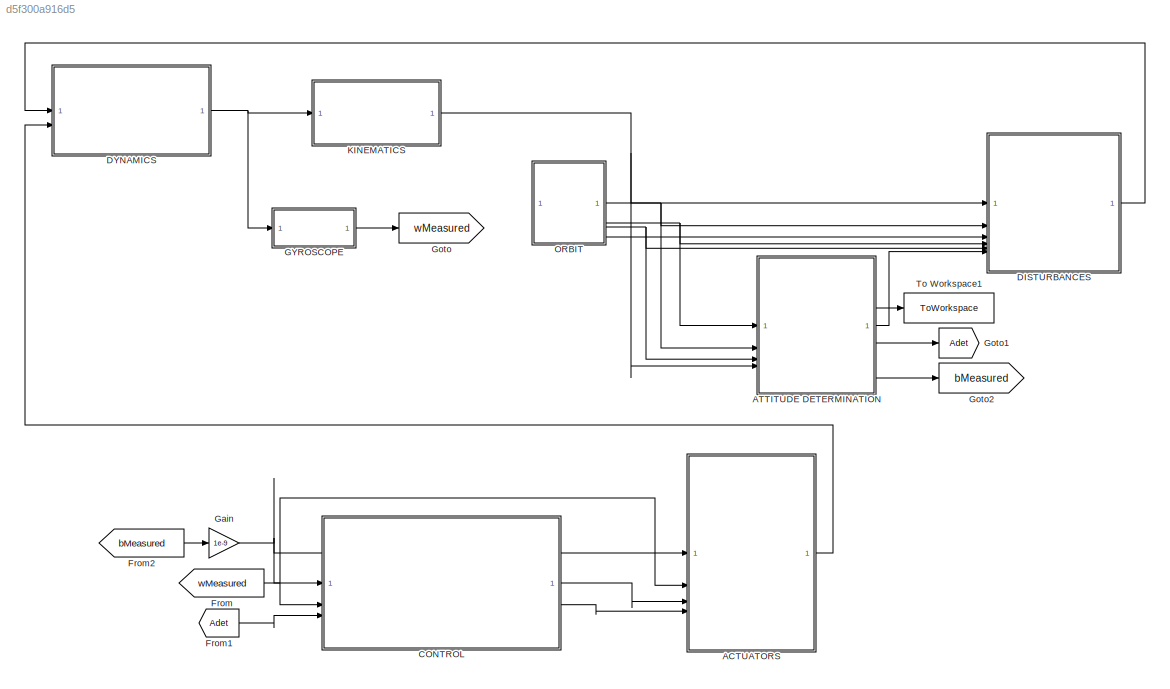
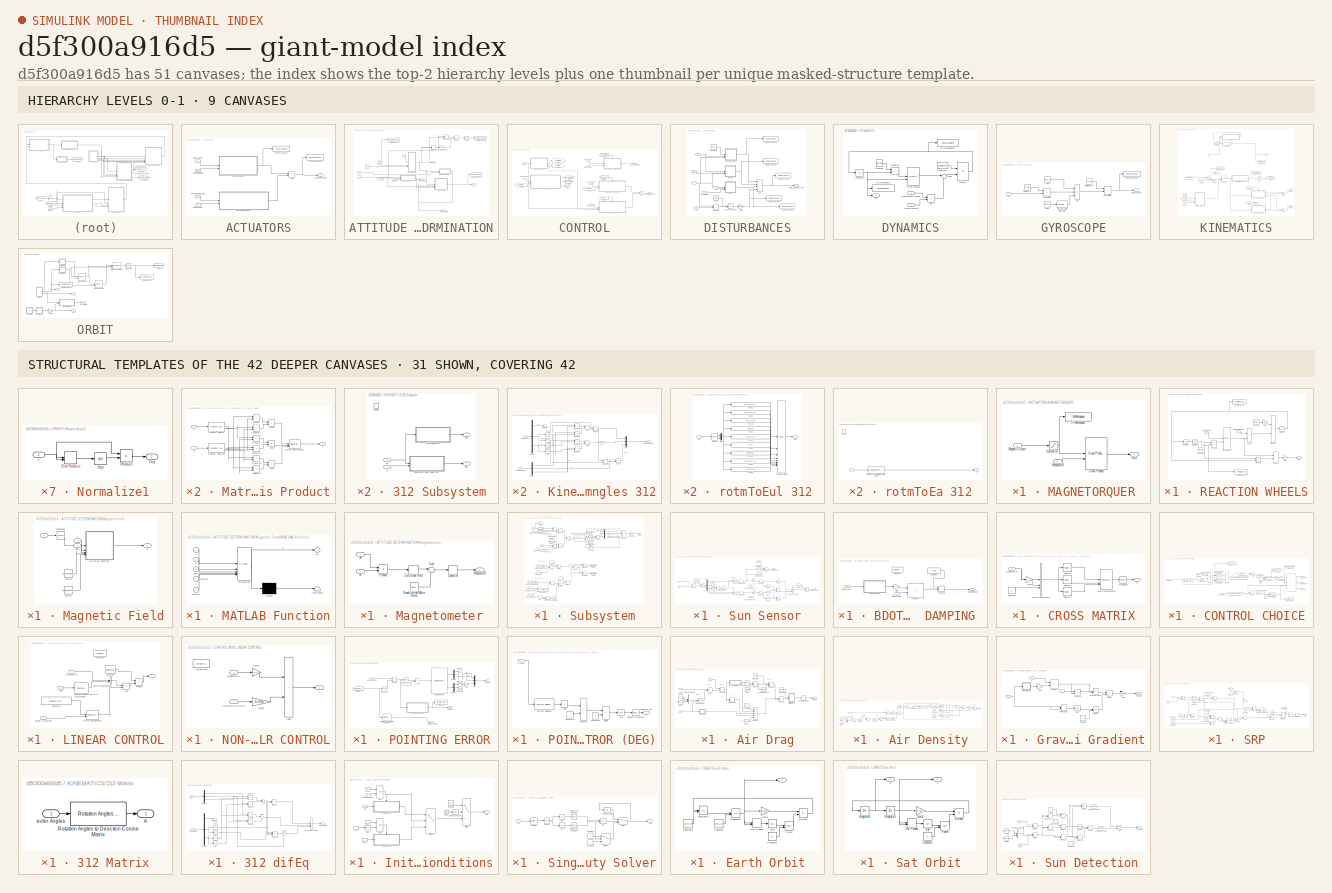
[diagram: thumbnail index - top-2 hierarchy levels (9 canvases) + 31 structural-template representatives of the remaining 42 canvases]
MODEL slx_d5f300a916d5
KIND model
CONFIG AbsTol = auto
CONFIG EnableMultiTasking = off
CONFIG FixedStep = 0.01
CONFIG MaxStep = auto
CONFIG MinStep = auto
CONFIG RelTol = 1e-3
CONFIG SampleTimeConstraint = Unconstrained
CONFIG SolverName = ode4
CONFIG StartTime = 0.0
CONFIG StopTime = 30000
BLOCK [SubSystem] ACTUATORS
BLOCK [Sum] ACTUATORS/Add
  IconShape = rectangular
BLOCK [Outport] ACTUATORS/Control Torque
BLOCK [SubSystem] ACTUATORS/MAGNETORQUER
BLOCK [Reference] ACTUATORS/MAGNETORQUER/Cross Product  REF=matrix_library/Cross Product
  LibrarySourceBlock = simulink/Matrix\nOperations/Cross Product
  SourceBlock = matrix_library/Cross Product
  SourceType = CrossProduct
BLOCK [Inport] ACTUATORS/MAGNETORQUER/Magnetic Dipole
  Port = 2
BLOCK [Inport] ACTUATORS/MAGNETORQUER/Measured B
BLOCK [Outport] ACTUATORS/MAGNETORQUER/Out1
BLOCK [Saturate] ACTUATORS/MAGNETORQUER/Saturation
  LowerLimit = -magnetorquer.m
  UpperLimit = magnetorquer.m
BLOCK [ToWorkspace] ACTUATORS/MAGNETORQUER/To Workspace
  FixptAsFi = on
  MaxDataPoints = inf
  SampleTime = -1
  VariableName = dipole
BLOCK [Inport] ACTUATORS/Magnetic Dipole
  Port = 3
BLOCK [Inport] ACTUATORS/Measured B
BLOCK [Inport] ACTUATORS/Measured w
  Port = 2
BLOCK [SubSystem] ACTUATORS/REACTION WHEELS
BLOCK [Sum] ACTUATORS/REACTION WHEELS/Add
  IconShape = rectangular
BLOCK [Sum] ACTUATORS/REACTION WHEELS/Add1
  IconShape = rectangular
BLOCK [Constant] ACTUATORS/REACTION WHEELS/Constant
  Value = rw.Ainv
BLOCK [Constant] ACTUATORS/REACTION WHEELS/Constant1
  Value = rw.A
BLOCK [Reference] ACTUATORS/REACTION WHEELS/Cross Product  REF=matrix_library/Cross Product
  LibrarySourceBlock = simulink/Matrix\nOperations/Cross Product
  SourceBlock = matrix_library/Cross Product
  SourceType = CrossProduct
BLOCK [Gain] ACTUATORS/REACTION WHEELS/Gain
  Gain = -1
BLOCK [Gain] ACTUATORS/REACTION WHEELS/Gain1
  Gain = -1
BLOCK [Integrator] ACTUATORS/REACTION WHEELS/Integrator
BLOCK [Inport] ACTUATORS/REACTION WHEELS/Measured w
  Port = 2
BLOCK [Outport] ACTUATORS/REACTION WHEELS/Out1
BLOCK [Product] ACTUATORS/REACTION WHEELS/Product
  Multiplication = Matrix(*)
BLOCK [Product] ACTUATORS/REACTION WHEELS/Product1
  Multiplication = Matrix(*)
BLOCK [Product] ACTUATORS/REACTION WHEELS/Product2
  Multiplication = Matrix(*)
BLOCK [Inport] ACTUATORS/REACTION WHEELS/RW Control Torque
BLOCK [Saturate] ACTUATORS/REACTION WHEELS/Saturation
  LowerLimit = -rw.dhMax
  UpperLimit = rw.dhMax
BLOCK [Saturate] ACTUATORS/REACTION WHEELS/Saturation1
  LowerLimit = -rw.hMax
  UpperLimit = rw.hMax
BLOCK [ToWorkspace] ACTUATORS/REACTION WHEELS/To Workspace
  FixptAsFi = on
  MaxDataPoints = inf
  SampleTime = -1
  VariableName = hr
BLOCK [ToWorkspace] ACTUATORS/REACTION WHEELS/To Workspace1
  FixptAsFi = on
  MaxDataPoints = inf
  SampleTime = -1
  VariableName = dhr
BLOCK [Inport] ACTUATORS/RW Control Torque
  Port = 4
BLOCK [ToWorkspace] ACTUATORS/To Workspace
  FixptAsFi = on
  MaxDataPoints = inf
  SampleTime = -1
  VariableName = controlTorque
BLOCK [ToWorkspace] ACTUATORS/To Workspace1
  FixptAsFi = on
  MaxDataPoints = inf
  SampleTime = -1
  VariableName = magneticTorque
BLOCK [SubSystem] ATTITUDE DETERMINATION
BLOCK [Constant] ATTITUDE DETERMINATION/ 
  Value = date
  VectorParams1D = off
BLOCK [Inport] ATTITUDE DETERMINATION/A
  Port = 4
BLOCK [InportShadow] ATTITUDE DETERMINATION/A1
  Port = 4
BLOCK [Trigonometry] ATTITUDE DETERMINATION/Acos
  Operator = acos
BLOCK [Outport] ATTITUDE DETERMINATION/Adet
  Port = 3
BLOCK [Outport] ATTITUDE DETERMINATION/B
BLOCK [Clock] ATTITUDE DETERMINATION/Clock
BLOCK [Product] ATTITUDE DETERMINATION/Divide
  Inputs = */
BLOCK [DotProduct] ATTITUDE DETERMINATION/Dot Product
  OutDataTypeStr = Inherit: Inherit via internal rule
BLOCK [DotProduct] ATTITUDE DETERMINATION/Dot Product1
  OutDataTypeStr = Inherit: Inherit via internal rule
BLOCK [SubSystem] ATTITUDE DETERMINATION/Magnetic Field
BLOCK [Outport] ATTITUDE DETERMINATION/Magnetic Field/B
BLOCK [SubSystem] ATTITUDE DETERMINATION/Magnetic Field/MATLAB Function
  ErrorFcn = Stateflow.Translate.translate
  PermitHierarchicalResolution = ExplicitOnly
  SFBlockType = MATLAB Function
  TreatAsAtomicUnit = on
BLOCK [Demux] ATTITUDE DETERMINATION/Magnetic Field/MATLAB Function/ Demux 
  Outputs = 1
BLOCK [S-Function] ATTITUDE DETERMINATION/Magnetic Field/MATLAB Function/ SFunction 
  EnableBusSupport = on
  FunctionName = sf_sfun
  PortCounts = [5 2]
  SFcnIsStateOwnerBlock = off
  SFunctionDeploymentMode = off
  Tag = Stateflow S-Function 2
BLOCK [Terminator] ATTITUDE DETERMINATION/Magnetic Field/MATLAB Function/ Terminator 
BLOCK [Outport] ATTITUDE DETERMINATION/Magnetic Field/MATLAB Function/B
BLOCK [Inport] ATTITUDE DETERMINATION/Magnetic Field/MATLAB Function/T
  Port = 2
BLOCK [Inport] ATTITUDE DETERMINATION/Magnetic Field/MATLAB Function/date
  Port = 3
BLOCK [Inport] ATTITUDE DETERMINATION/Magnetic Field/MATLAB Function/igrfSg
  Port = 4
BLOCK [Inport] ATTITUDE DETERMINATION/Magnetic Field/MATLAB Function/igrfSh
  Port = 5
BLOCK [Inport] ATTITUDE DETERMINATION/Magnetic Field/MATLAB Function/r
BLOCK [Inport] ATTITUDE DETERMINATION/Magnetic Field/T
  Port = 2
BLOCK [Math] ATTITUDE DETERMINATION/Magnetic Field/Transpose
  Operator = transpose
BLOCK [Inport] ATTITUDE DETERMINATION/Magnetic Field/date
  Port = 3
BLOCK [Constant] ATTITUDE DETERMINATION/Magnetic Field/igrfSg
  Value = magneticConstants.igrfSg
BLOCK [Constant] ATTITUDE DETERMINATION/Magnetic Field/igrfSh
  Value = magneticConstants.igrfSh
BLOCK [Inport] ATTITUDE DETERMINATION/Magnetic Field/r
BLOCK [SubSystem] ATTITUDE DETERMINATION/Magnetometer
BLOCK [Inport] ATTITUDE DETERMINATION/Magnetometer/A
  Port = 2
BLOCK [Inport] ATTITUDE DETERMINATION/Magnetometer/B
BLOCK [Reference] ATTITUDE DETERMINATION/Magnetometer/Band-Limited White Noise  REF=simulink/Sources/Band-Limited
White Noise
  SourceBlock = simulink/Sources/Band-Limited\nWhite Noise
  SourceType = Band-Limited White Noise.
BLOCK [Outport] ATTITUDE DETERMINATION/Magnetometer/Measured B
BLOCK [Product] ATTITUDE DETERMINATION/Magnetometer/Product
  Multiplication = Matrix(*)
BLOCK [Quantizer] ATTITUDE DETERMINATION/Magnetometer/Quantizer
  QuantizationInterval = magSensor.resolution
BLOCK [Sum] ATTITUDE DETERMINATION/Magnetometer/Sum
  Inputs = |++
BLOCK [ZeroOrderHold] ATTITUDE DETERMINATION/Magnetometer/Zero-Order Hold
  SampleTime = 1/magSensor.sampleRate
BLOCK [Outport] ATTITUDE DETERMINATION/Measured B
  Port = 4
BLOCK [Inport] ATTITUDE DETERMINATION/SB
BLOCK [Sqrt] ATTITUDE DETERMINATION/Square Root
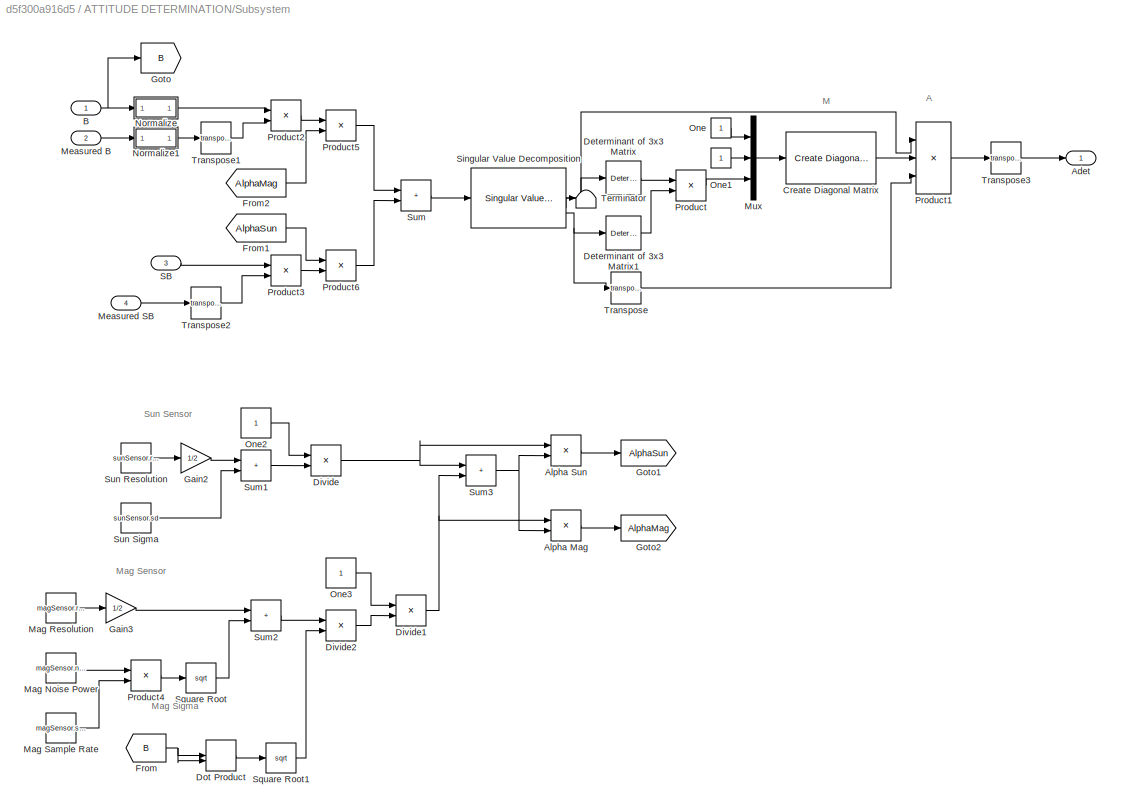
BLOCK [SubSystem] ATTITUDE DETERMINATION/Subsystem
BLOCK [Outport] ATTITUDE DETERMINATION/Subsystem/Adet
BLOCK [Product] ATTITUDE DETERMINATION/Subsystem/Alpha Mag
  Inputs = */
BLOCK [Product] ATTITUDE DETERMINATION/Subsystem/Alpha Sun
  Inputs = */
BLOCK [Inport] ATTITUDE DETERMINATION/Subsystem/B
BLOCK [Reference] ATTITUDE DETERMINATION/Subsystem/Create Diagonal Matrix  REF=matrix_library/Create Diagonal
Matrix
  LibrarySourceBlock = simulink/Matrix\nOperations/Create Diagonal\nMatrix
  SourceBlock = matrix_library/Create Diagonal\nMatrix
  SourceType = Create Diagonal Matrix
BLOCK [Reference] ATTITUDE DETERMINATION/Subsystem/Determinant of 3x3 Matrix  REF=sharedutil/Determinant of
3x3 Matrix
  LibrarySourceBlock = aerolibutil/Determinant of\n3x3 Matrix
  SourceBlock = sharedutil/Determinant of\n3x3 Matrix
  SourceType = Determinant of 3x3 Matrix
BLOCK [Reference] ATTITUDE DETERMINATION/Subsystem/Determinant of 3x3 Matrix1  REF=sharedutil/Determinant of
3x3 Matrix
  LibrarySourceBlock = aerolibutil/Determinant of\n3x3 Matrix
  SourceBlock = sharedutil/Determinant of\n3x3 Matrix
  SourceType = Determinant of 3x3 Matrix
BLOCK [Product] ATTITUDE DETERMINATION/Subsystem/Divide
  Inputs = */
BLOCK [Product] ATTITUDE DETERMINATION/Subsystem/Divide1
  Inputs = */
BLOCK [Product] ATTITUDE DETERMINATION/Subsystem/Divide2
  Inputs = */
BLOCK [DotProduct] ATTITUDE DETERMINATION/Subsystem/Dot Product
  OutDataTypeStr = Inherit: Inherit via internal rule
BLOCK [From] ATTITUDE DETERMINATION/Subsystem/From
  GotoTag = B
BLOCK [From] ATTITUDE DETERMINATION/Subsystem/From1
  GotoTag = AlphaSun
BLOCK [From] ATTITUDE DETERMINATION/Subsystem/From2
  GotoTag = AlphaMag
BLOCK [Gain] ATTITUDE DETERMINATION/Subsystem/Gain2
  Gain = 1/2
BLOCK [Gain] ATTITUDE DETERMINATION/Subsystem/Gain3
  Gain = 1/2
BLOCK [Goto] ATTITUDE DETERMINATION/Subsystem/Goto
  GotoTag = B
BLOCK [Goto] ATTITUDE DETERMINATION/Subsystem/Goto1
  GotoTag = AlphaSun
BLOCK [Goto] ATTITUDE DETERMINATION/Subsystem/Goto2
  GotoTag = AlphaMag
BLOCK [Constant] ATTITUDE DETERMINATION/Subsystem/Mag Noise Power
  Value = magSensor.noisePower
BLOCK [Constant] ATTITUDE DETERMINATION/Subsystem/Mag Resolution
  Value = magSensor.resolution
BLOCK [Constant] ATTITUDE DETERMINATION/Subsystem/Mag Sample Rate
  Value = magSensor.sampleRate
BLOCK [Inport] ATTITUDE DETERMINATION/Subsystem/Measured B
  Port = 2
BLOCK [Inport] ATTITUDE DETERMINATION/Subsystem/Measured SB
  Port = 4
BLOCK [Mux] ATTITUDE DETERMINATION/Subsystem/Mux
  DisplayOption = bar
  Inputs = 3
BLOCK [SubSystem] ATTITUDE DETERMINATION/Subsystem/Normalize
BLOCK [DotProduct] ATTITUDE DETERMINATION/Subsystem/Normalize/Dot Product
  OutDataTypeStr = Inherit: Inherit via internal rule
BLOCK [Outport] ATTITUDE DETERMINATION/Subsystem/Normalize/Out
BLOCK [Product] ATTITUDE DETERMINATION/Subsystem/Normalize/Product
  Inputs = */
BLOCK [Sqrt] ATTITUDE DETERMINATION/Subsystem/Normalize/Sqrt
BLOCK [Inport] ATTITUDE DETERMINATION/Subsystem/Normalize/r
BLOCK [SubSystem] ATTITUDE DETERMINATION/Subsystem/Normalize1
BLOCK [DotProduct] ATTITUDE DETERMINATION/Subsystem/Normalize1/Dot Product
  OutDataTypeStr = Inherit: Inherit via internal rule
BLOCK [Outport] ATTITUDE DETERMINATION/Subsystem/Normalize1/Out
BLOCK [Product] ATTITUDE DETERMINATION/Subsystem/Normalize1/Product
  Inputs = */
BLOCK [Sqrt] ATTITUDE DETERMINATION/Subsystem/Normalize1/Sqrt
BLOCK [Inport] ATTITUDE DETERMINATION/Subsystem/Normalize1/r
BLOCK [Constant] ATTITUDE DETERMINATION/Subsystem/One
  OutDataTypeStr = Inherit: Inherit via back propagation
BLOCK [Constant] ATTITUDE DETERMINATION/Subsystem/One1
  OutDataTypeStr = Inherit: Inherit via back propagation
BLOCK [Constant] ATTITUDE DETERMINATION/Subsystem/One2
  OutDataTypeStr = Inherit: Inherit via back propagation
BLOCK [Constant] ATTITUDE DETERMINATION/Subsystem/One3
  OutDataTypeStr = Inherit: Inherit via back propagation
BLOCK [Product] ATTITUDE DETERMINATION/Subsystem/Product
BLOCK [Product] ATTITUDE DETERMINATION/Subsystem/Product1
  Inputs = 3
  Multiplication = Matrix(*)
BLOCK [Product] ATTITUDE DETERMINATION/Subsystem/Product2
  Multiplication = Matrix(*)
BLOCK [Product] ATTITUDE DETERMINATION/Subsystem/Product3
  Multiplication = Matrix(*)
BLOCK [Product] ATTITUDE DETERMINATION/Subsystem/Product4
BLOCK [Product] ATTITUDE DETERMINATION/Subsystem/Product5
BLOCK [Product] ATTITUDE DETERMINATION/Subsystem/Product6
BLOCK [Inport] ATTITUDE DETERMINATION/Subsystem/SB
  Port = 3
BLOCK [Reference] ATTITUDE DETERMINATION/Subsystem/Singular Value Decomposition  REF=dspfactors/Singular Value
Decomposition
  SourceBlock = dspfactors/Singular Value\nDecomposition
  SourceType = Singular Value Decomposition
BLOCK [Sqrt] ATTITUDE DETERMINATION/Subsystem/Square Root
BLOCK [Sqrt] ATTITUDE DETERMINATION/Subsystem/Square Root1
BLOCK [Sum] ATTITUDE DETERMINATION/Subsystem/Sum
  IconShape = rectangular
BLOCK [Sum] ATTITUDE DETERMINATION/Subsystem/Sum1
  IconShape = rectangular
BLOCK [Sum] ATTITUDE DETERMINATION/Subsystem/Sum2
  IconShape = rectangular
BLOCK [Sum] ATTITUDE DETERMINATION/Subsystem/Sum3
  IconShape = rectangular
BLOCK [Constant] ATTITUDE DETERMINATION/Subsystem/Sun Resolution
  Value = sunSensor.resolution
BLOCK [Constant] ATTITUDE DETERMINATION/Subsystem/Sun Sigma
  Value = sunSensor.sd
BLOCK [Terminator] ATTITUDE DETERMINATION/Subsystem/Terminator
BLOCK [Math] ATTITUDE DETERMINATION/Subsystem/Transpose
  Operator = transpose
BLOCK [Math] ATTITUDE DETERMINATION/Subsystem/Transpose1
  Operator = transpose
BLOCK [Math] ATTITUDE DETERMINATION/Subsystem/Transpose2
  Operator = transpose
BLOCK [Math] ATTITUDE DETERMINATION/Subsystem/Transpose3
  Operator = transpose
BLOCK [Outport] ATTITUDE DETERMINATION/Sun Detected
  Port = 2
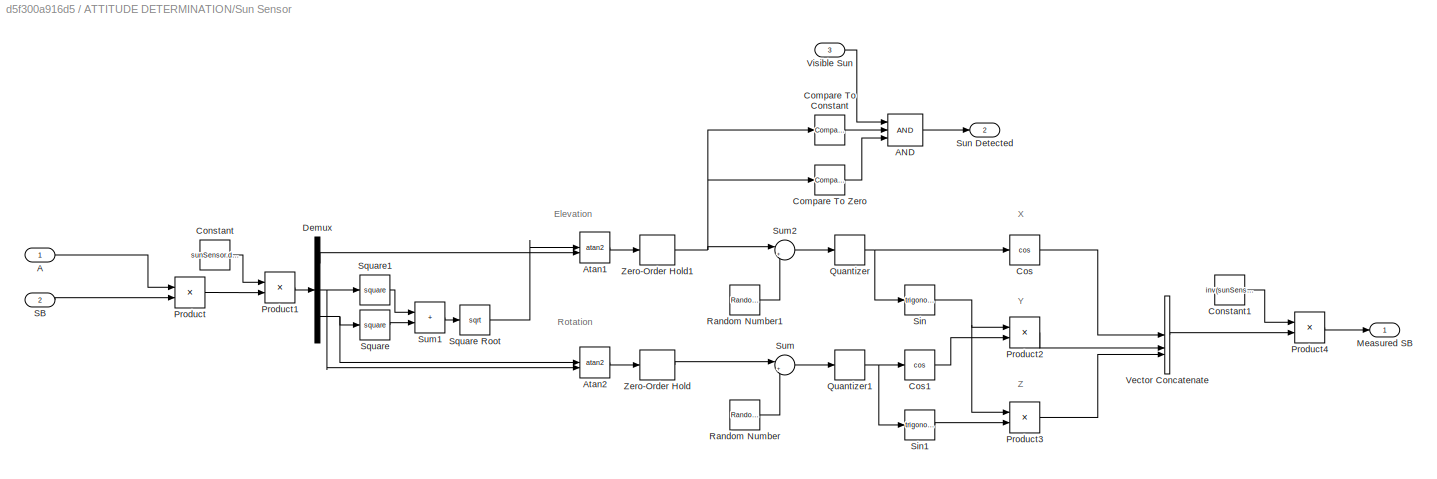
BLOCK [SubSystem] ATTITUDE DETERMINATION/Sun Sensor
BLOCK [Inport] ATTITUDE DETERMINATION/Sun Sensor/A
BLOCK [Logic] ATTITUDE DETERMINATION/Sun Sensor/AND
  AllPortsSameDT = off
  IconShape = distinctive
  Inputs = 3
  OutDataTypeStr = boolean
BLOCK [Trigonometry] ATTITUDE DETERMINATION/Sun Sensor/Atan1
  Operator = atan2
BLOCK [Trigonometry] ATTITUDE DETERMINATION/Sun Sensor/Atan2
  Operator = atan2
BLOCK [Reference] ATTITUDE DETERMINATION/Sun Sensor/Compare To Constant  REF=simulink/Logic and Bit
Operations/Compare
To Constant
  SourceBlock = simulink/Logic and Bit\nOperations/Compare\nTo Constant
  SourceType = Compare To Constant
BLOCK [Reference] ATTITUDE DETERMINATION/Sun Sensor/Compare To Zero  REF=simulink/Logic and Bit
Operations/Compare
To Zero
  SourceBlock = simulink/Logic and Bit\nOperations/Compare\nTo Zero
  SourceType = Compare To Zero
BLOCK [Constant] ATTITUDE DETERMINATION/Sun Sensor/Constant
  Value = sunSensor.dir
BLOCK [Constant] ATTITUDE DETERMINATION/Sun Sensor/Constant1
  Value = inv(sunSensor.dir)
BLOCK [Trigonometry] ATTITUDE DETERMINATION/Sun Sensor/Cos
  Operator = cos
BLOCK [Trigonometry] ATTITUDE DETERMINATION/Sun Sensor/Cos1
  Operator = cos
BLOCK [Demux] ATTITUDE DETERMINATION/Sun Sensor/Demux
  Outputs = 3
BLOCK [Outport] ATTITUDE DETERMINATION/Sun Sensor/Measured SB
BLOCK [Product] ATTITUDE DETERMINATION/Sun Sensor/Product
  Multiplication = Matrix(*)
BLOCK [Product] ATTITUDE DETERMINATION/Sun Sensor/Product1
  Multiplication = Matrix(*)
BLOCK [Product] ATTITUDE DETERMINATION/Sun Sensor/Product2
BLOCK [Product] ATTITUDE DETERMINATION/Sun Sensor/Product3
BLOCK [Product] ATTITUDE DETERMINATION/Sun Sensor/Product4
  Multiplication = Matrix(*)
BLOCK [Quantizer] ATTITUDE DETERMINATION/Sun Sensor/Quantizer
  QuantizationInterval = sunSensor.resolution
BLOCK [Quantizer] ATTITUDE DETERMINATION/Sun Sensor/Quantizer1
  QuantizationInterval = sunSensor.resolution
BLOCK [RandomNumber] ATTITUDE DETERMINATION/Sun Sensor/Random Number
  SampleTime = 1/sunSensor.sampleRate
  Seed = 76538356
  Variance = sunSensor.sd^2
BLOCK [RandomNumber] ATTITUDE DETERMINATION/Sun Sensor/Random Number1
  SampleTime = 1/sunSensor.sampleRate
  Seed = 45746823
  Variance = sunSensor.sd^2
BLOCK [Inport] ATTITUDE DETERMINATION/Sun Sensor/SB
  Port = 2
BLOCK [Trigonometry] ATTITUDE DETERMINATION/Sun Sensor/Sin
BLOCK [Trigonometry] ATTITUDE DETERMINATION/Sun Sensor/Sin1
BLOCK [Math] ATTITUDE DETERMINATION/Sun Sensor/Square
  Operator = square
BLOCK [Sqrt] ATTITUDE DETERMINATION/Sun Sensor/Square Root
BLOCK [Math] ATTITUDE DETERMINATION/Sun Sensor/Square1
  Operator = square
BLOCK [Sum] ATTITUDE DETERMINATION/Sun Sensor/Sum
  Inputs = |++
BLOCK [Sum] ATTITUDE DETERMINATION/Sun Sensor/Sum1
  IconShape = rectangular
BLOCK [Sum] ATTITUDE DETERMINATION/Sun Sensor/Sum2
  Inputs = |++
BLOCK [Outport] ATTITUDE DETERMINATION/Sun Sensor/Sun Detected
  Port = 2
BLOCK [Concatenate] ATTITUDE DETERMINATION/Sun Sensor/Vector Concatenate
  ConcatenateDimension = 2
  NumInputs = 3
BLOCK [Inport] ATTITUDE DETERMINATION/Sun Sensor/Visible Sun
  Port = 3
BLOCK [ZeroOrderHold] ATTITUDE DETERMINATION/Sun Sensor/Zero-Order Hold
  SampleTime = 1/sunSensor.sampleRate
BLOCK [ZeroOrderHold] ATTITUDE DETERMINATION/Sun Sensor/Zero-Order Hold1
  SampleTime = 1/sunSensor.sampleRate
BLOCK [ToWorkspace] ATTITUDE DETERMINATION/To Workspace
  FixptAsFi = on
  MaxDataPoints = inf
  SampleTime = -1
  VariableName = t
BLOCK [ToWorkspace] ATTITUDE DETERMINATION/To Workspace1
  FixptAsFi = on
  MaxDataPoints = inf
  SampleTime = -1
  VariableName = angle
BLOCK [ToWorkspace] ATTITUDE DETERMINATION/To Workspace2
  FixptAsFi = on
  MaxDataPoints = inf
  SampleTime = -1
  VariableName = Adet
BLOCK [Inport] ATTITUDE DETERMINATION/Visible Sun
  Port = 3
BLOCK [Inport] ATTITUDE DETERMINATION/r
  Port = 2
BLOCK [SubSystem] CONTROL
BLOCK [Sum] CONTROL/Add
  IconShape = rectangular
BLOCK [Inport] CONTROL/Adet
  Port = 3
BLOCK [SubSystem] CONTROL/BDOT SPIN RATE DAMPING 
BLOCK [ActionPort] CONTROL/BDOT SPIN RATE DAMPING /Action Port
  ActionPortLabel = else
BLOCK [SubSystem] CONTROL/BDOT SPIN RATE DAMPING /CROSS MATRIX
BLOCK [Constant] CONTROL/BDOT SPIN RATE DAMPING /CROSS MATRIX/Constant
  Value = 0
BLOCK [Gain] CONTROL/BDOT SPIN RATE DAMPING /CROSS MATRIX/Gain
  Gain = -1
BLOCK [Concatenate] CONTROL/BDOT SPIN RATE DAMPING /CROSS MATRIX/Matrix Concatenate
  ConcatenateDimension = 2
  Mode = Multidimensional array
  NumInputs = 3
BLOCK [Inport] CONTROL/BDOT SPIN RATE DAMPING /CROSS MATRIX/Measured w
BLOCK [Selector] CONTROL/BDOT SPIN RATE DAMPING /CROSS MATRIX/Selector
  IndexOptions = Index vector (dialog)
  Indices = [7 6 2]
  InputPortWidth = 7
  OutputSizes = 1
BLOCK [Selector] CONTROL/BDOT SPIN RATE DAMPING /CROSS MATRIX/Selector1
  IndexOptions = Index vector (dialog)
  Indices = [3 7 4]
  InputPortWidth = 7
  OutputSizes = 1
BLOCK [Selector] CONTROL/BDOT SPIN RATE DAMPING /CROSS MATRIX/Selector2
  IndexOptions = Index vector (dialog)
  Indices = [5 1 7]
  InputPortWidth = 7
  OutputSizes = 1
BLOCK [Math] CONTROL/BDOT SPIN RATE DAMPING /CROSS MATRIX/Transpose
  Operator = transpose
BLOCK [Concatenate] CONTROL/BDOT SPIN RATE DAMPING /CROSS MATRIX/Vector Concatenate
  NumInputs = 3
BLOCK [Outport] CONTROL/BDOT SPIN RATE DAMPING /CROSS MATRIX/w^
BLOCK [Constant] CONTROL/BDOT SPIN RATE DAMPING /Constant
  Value = -5e7
BLOCK [Gain] CONTROL/BDOT SPIN RATE DAMPING /Gain
  Gain = -1
BLOCK [Outport] CONTROL/BDOT SPIN RATE DAMPING /Magnetic Dipole
  InitialOutput = [0;0;0]
  OutputWhenDisabled = reset
BLOCK [Inport] CONTROL/BDOT SPIN RATE DAMPING /Measured B
  Port = 2
BLOCK [Inport] CONTROL/BDOT SPIN RATE DAMPING /Measured w
BLOCK [Product] CONTROL/BDOT SPIN RATE DAMPING /Product
  Multiplication = Matrix(*)
BLOCK [Product] CONTROL/BDOT SPIN RATE DAMPING /Product1
BLOCK [SubSystem] CONTROL/CONTROL CHOICE
BLOCK [Logic] CONTROL/CONTROL CHOICE/AND
  AllPortsSameDT = off
  IconShape = distinctive
  Inputs = 1
  OutDataTypeStr = boolean
BLOCK [Logic] CONTROL/CONTROL CHOICE/AND1
  AllPortsSameDT = off
  IconShape = distinctive
  OutDataTypeStr = boolean
BLOCK [Logic] CONTROL/CONTROL CHOICE/AND2
  AllPortsSameDT = off
  IconShape = distinctive
  OutDataTypeStr = boolean
BLOCK [Abs] CONTROL/CONTROL CHOICE/Abs2
  SaturateOnIntegerOverflow = off
BLOCK [Reference] CONTROL/CONTROL CHOICE/Compare To Constant  REF=simulink/Logic and Bit
Operations/Compare
To Constant
  SourceBlock = simulink/Logic and Bit\nOperations/Compare\nTo Constant
  SourceType = Compare To Constant
BLOCK [Reference] CONTROL/CONTROL CHOICE/Compare To Constant1  REF=simulink/Logic and Bit
Operations/Compare
To Constant
  SourceBlock = simulink/Logic and Bit\nOperations/Compare\nTo Constant
  SourceType = Compare To Constant
BLOCK [Reference] CONTROL/CONTROL CHOICE/Compare To Zero  REF=simulink/Logic and Bit
Operations/Compare
To Zero
  SourceBlock = simulink/Logic and Bit\nOperations/Compare\nTo Zero
  SourceType = Compare To Zero
BLOCK [Reference] CONTROL/CONTROL CHOICE/Compare To Zero4  REF=simulink/Logic and Bit
Operations/Compare
To Zero
  SourceBlock = simulink/Logic and Bit\nOperations/Compare\nTo Zero
  SourceType = Compare To Zero
BLOCK [Reference] CONTROL/CONTROL CHOICE/Compare To Zero5  REF=simulink/Logic and Bit
Operations/Compare
To Zero
  SourceBlock = simulink/Logic and Bit\nOperations/Compare\nTo Zero
  SourceType = Compare To Zero
BLOCK [DataTypeConversion] CONTROL/CONTROL CHOICE/Data Type Conversion1
  OutDataTypeStr = int8
  RndMeth = Floor
  SaturateOnIntegerOverflow = off
BLOCK [DataTypeConversion] CONTROL/CONTROL CHOICE/Data Type Conversion2
  OutDataTypeStr = int8
  RndMeth = Floor
  SaturateOnIntegerOverflow = off
BLOCK [DataTypeConversion] CONTROL/CONTROL CHOICE/Data Type Conversion3
  OutDataTypeStr = int8
  RndMeth = Floor
  SaturateOnIntegerOverflow = off
BLOCK [Outport] CONTROL/CONTROL CHOICE/De-Tumbling
BLOCK [Derivative] CONTROL/CONTROL CHOICE/Derivative2
BLOCK [If] CONTROL/CONTROL CHOICE/If
  ElseIfExpressions = u1 > 0 & u2 == 0
  IfExpression = u1 > 0 & u2 > 0
  NumInputs = 2
BLOCK [Outport] CONTROL/CONTROL CHOICE/Linear Control
  Port = 3
BLOCK [Inport] CONTROL/CONTROL CHOICE/Measured w
BLOCK [Reference] CONTROL/CONTROL CHOICE/MinMax Running Resettable1  REF=simulink/Math
Operations/MinMax
Running
Resettable
  SourceBlock = simulink/Math\nOperations/MinMax\nRunning\nResettable
  SourceType = MinMax Running Resettable
BLOCK [Reference] CONTROL/CONTROL CHOICE/MinMax Running Resettable2  REF=simulink/Math
Operations/MinMax
Running
Resettable
  SourceBlock = simulink/Math\nOperations/MinMax\nRunning\nResettable
  SourceType = MinMax Running Resettable
BLOCK [Reference] CONTROL/CONTROL CHOICE/MinMax Running Resettable3  REF=simulink/Math
Operations/MinMax
Running
Resettable
  SourceBlock = simulink/Math\nOperations/MinMax\nRunning\nResettable
  SourceType = MinMax Running Resettable
BLOCK [Reference] CONTROL/CONTROL CHOICE/MinMax Running Resettable4  REF=simulink/Math
Operations/MinMax
Running
Resettable
  SourceBlock = simulink/Math\nOperations/MinMax\nRunning\nResettable
  SourceType = MinMax Running Resettable
BLOCK [Outport] CONTROL/CONTROL CHOICE/Non-Linear Control
  Port = 2
BLOCK [Inport] CONTROL/CONTROL CHOICE/Pointing Error Deg 
  Port = 2
BLOCK [Signum] CONTROL/CONTROL CHOICE/Sign2
BLOCK [Sum] CONTROL/CONTROL CHOICE/Subtract
  IconShape = rectangular
  Inputs = +-
BLOCK [ToWorkspace] CONTROL/CONTROL CHOICE/To Workspace
  FixptAsFi = on
  MaxDataPoints = inf
  SampleTime = -1
  VariableName = state
BLOCK [ToWorkspace] CONTROL/CONTROL CHOICE/To Workspace1
  FixptAsFi = on
  MaxDataPoints = inf
  SampleTime = -1
  VariableName = stateIntermediate
BLOCK [ToWorkspace] CONTROL/CONTROL CHOICE/To Workspace2
  FixptAsFi = on
  MaxDataPoints = inf
  SampleTime = -1
  VariableName = derivative
BLOCK [ToWorkspace] CONTROL/CONTROL CHOICE/To Workspace3
  FixptAsFi = on
  MaxDataPoints = inf
  SampleTime = -1
  VariableName = state2
BLOCK [UnitDelay] CONTROL/CONTROL CHOICE/Unit Delay2
  HasFrameUpgradeWarning = on
  InitialCondition = -1
  SampleTime = -1
BLOCK [Logic] CONTROL/CONTROL CHOICE/XOR2
  AllPortsSameDT = off
  Operator = XOR
  OutDataTypeStr = boolean
BLOCK [Constant] CONTROL/CONTROL CHOICE/Zero
  OutDataTypeStr = Inherit: Inherit via back propagation
  Value = 0
BLOCK [Constant] CONTROL/CONTROL CHOICE/Zero1
  OutDataTypeStr = Inherit: Inherit via back propagation
  Value = 0
BLOCK [From] CONTROL/From
  GotoTag = deTumbling
BLOCK [From] CONTROL/From1
  GotoTag = nonLinear
BLOCK [From] CONTROL/From2
  GotoTag = pointingErrorDCM
BLOCK [From] CONTROL/From3
  GotoTag = pointingErrorDeg
BLOCK [From] CONTROL/From4
  GotoTag = linear
BLOCK [Goto] CONTROL/Goto
  GotoTag = deTumbling
BLOCK [Goto] CONTROL/Goto1
  GotoTag = pointingErrorDCM
BLOCK [Goto] CONTROL/Goto2
  GotoTag = pointingErrorDeg
BLOCK [Goto] CONTROL/Goto3
  GotoTag = nonLinear
BLOCK [Goto] CONTROL/Goto4
  GotoTag = linear
BLOCK [SubSystem] CONTROL/LINEAR CONTROL
BLOCK [Inport] CONTROL/LINEAR CONTROL/A det
  Port = 2
BLOCK [ActionPort] CONTROL/LINEAR CONTROL/Action Port
  ActionPortLabel = if(u1 > 0 & u2 > 0)
BLOCK [Sum] CONTROL/LINEAR CONTROL/Add
  IconShape = rectangular
  Inputs = -+
BLOCK [Constant] CONTROL/LINEAR CONTROL/Constant
  Value = control.K
BLOCK [Constant] CONTROL/LINEAR CONTROL/Constant1
  Value = [control.wTarget]
BLOCK [Reference] CONTROL/LINEAR CONTROL/Direction Cosine Matrix to Quaternions  REF=sharedtransform/Direction Cosine Matrix 
to Quaternions
  LibrarySourceBlock = aerolibtransform2/Direction Cosine Matrix \nto Quaternions
  SourceBlock = sharedtransform/Direction Cosine Matrix \nto Quaternions
  SourceType = DCM2Quaternion
BLOCK [Concatenate] CONTROL/LINEAR CONTROL/Matrix Concatenate
  Mode = Multidimensional array
BLOCK [Product] CONTROL/LINEAR CONTROL/Product
  Multiplication = Matrix(*)
BLOCK [Inport] CONTROL/LINEAR CONTROL/Target Quaternion
  Port = 3
BLOCK [Concatenate] CONTROL/LINEAR CONTROL/Vector Concatenate
BLOCK [Inport] CONTROL/LINEAR CONTROL/measured W
BLOCK [Outport] CONTROL/LINEAR CONTROL/u
  InitialOutput = [0;0;0]
  OutputWhenDisabled = reset
BLOCK [Outport] CONTROL/Magnetic Dipole
BLOCK [Inport] CONTROL/Measured B
BLOCK [Inport] CONTROL/Measured w
  Port = 2
BLOCK [InportShadow] CONTROL/Measured w1
  Port = 2
BLOCK [InportShadow] CONTROL/Measured w2
  Port = 2
BLOCK [InportShadow] CONTROL/Measured w3
  Port = 2
BLOCK [SubSystem] CONTROL/NON-LINEAR CONTROL
BLOCK [ActionPort] CONTROL/NON-LINEAR CONTROL/Action Port
  ActionPortLabel = elseif(u1 > 0 & u2 == 0)
BLOCK [Sum] CONTROL/NON-LINEAR CONTROL/Add1
  IconShape = rectangular
BLOCK [Gain] CONTROL/NON-LINEAR CONTROL/Gain1
  Gain = -0.4
BLOCK [Gain] CONTROL/NON-LINEAR CONTROL/Gain3
  Gain = -0.006
BLOCK [Inport] CONTROL/NON-LINEAR CONTROL/Pointing Error DCM
  Port = 2
BLOCK [Inport] CONTROL/NON-LINEAR CONTROL/measured W
BLOCK [Outport] CONTROL/NON-LINEAR CONTROL/u
  InitialOutput = [0;0;0]
  OutputWhenDisabled = reset
BLOCK [SubSystem] CONTROL/POINTING ERROR
BLOCK [Sum] CONTROL/POINTING ERROR/Add
  IconShape = rectangular
  Inputs = +-
BLOCK [Outport] CONTROL/POINTING ERROR/DCM Error
BLOCK [Inport] CONTROL/POINTING ERROR/DCM measured
BLOCK [Outport] CONTROL/POINTING ERROR/Deg Error
  Port = 2
BLOCK [Demux] CONTROL/POINTING ERROR/Demux
  Outputs = 3
BLOCK [Demux] CONTROL/POINTING ERROR/Demux1
  Outputs = 3
BLOCK [Reference] CONTROL/POINTING ERROR/Direction Cosine Matrix to Quaternions  REF=sharedtransform/Direction Cosine Matrix 
to Quaternions
  LibrarySourceBlock = aerolibtransform2/Direction Cosine Matrix \nto Quaternions
  SourceBlock = sharedtransform/Direction Cosine Matrix \nto Quaternions
  SourceType = DCM2Quaternion
BLOCK [From] CONTROL/POINTING ERROR/From
  GotoTag = DCMTarget
  TagVisibility = global
BLOCK [Gain] CONTROL/POINTING ERROR/Gain
  Gain = -1
BLOCK [Gain] CONTROL/POINTING ERROR/Gain1
  Gain = -1
BLOCK [Reference] CONTROL/POINTING ERROR/Multiport Selector  REF=dspindex/Multiport
Selector
  LibrarySourceBlock = dsphdlsupportsigmgmt/Multiport\nSelector
  SourceBlock = dspindex/Multiport\nSelector
  SourceType = Multiport Selector
BLOCK [Mux] CONTROL/POINTING ERROR/Mux
  DisplayOption = bar
  Inputs = 3
BLOCK [SubSystem] CONTROL/POINTING ERROR/POINTING ERROR (DEG)
BLOCK [Inport] CONTROL/POINTING ERROR/POINTING ERROR (DEG)/A * Ad^T
BLOCK [Trigonometry] CONTROL/POINTING ERROR/POINTING ERROR (DEG)/Acos
  Operator = acos
BLOCK [Sum] CONTROL/POINTING ERROR/POINTING ERROR (DEG)/Add1
  IconShape = rectangular
  Inputs = +
BLOCK [Constant] CONTROL/POINTING ERROR/POINTING ERROR (DEG)/Constant1
BLOCK [Constant] CONTROL/POINTING ERROR/POINTING ERROR (DEG)/Constant2
  Value = 2
BLOCK [Outport] CONTROL/POINTING ERROR/POINTING ERROR (DEG)/Degrees out
BLOCK [Product] CONTROL/POINTING ERROR/POINTING ERROR (DEG)/Divide
  Inputs = */
BLOCK [Reference] CONTROL/POINTING ERROR/POINTING ERROR (DEG)/Extract Diagonal  REF=matrix_library/Extract Diagonal
  LibrarySourceBlock = simulink/Matrix\nOperations/Extract Diagonal
  SourceBlock = matrix_library/Extract Diagonal
  SourceType = Extract Diagonal
BLOCK [Reference] CONTROL/POINTING ERROR/POINTING ERROR (DEG)/Radians to Degrees  REF=simulink_extras/Transformations/Radians
to Degrees
  SourceBlock = simulink_extras/Transformations/Radians\nto Degrees
  SourceType = RadiansToDegrees
BLOCK [Sum] CONTROL/POINTING ERROR/POINTING ERROR (DEG)/Subtract
  IconShape = rectangular
  Inputs = +-
BLOCK [Product] CONTROL/POINTING ERROR/Product
  Multiplication = Matrix(*)
BLOCK [Outport] CONTROL/POINTING ERROR/Target Quaternion
  Port = 3
BLOCK [Terminator] CONTROL/POINTING ERROR/Terminator
BLOCK [Terminator] CONTROL/POINTING ERROR/Terminator1
BLOCK [Terminator] CONTROL/POINTING ERROR/Terminator2
BLOCK [ToWorkspace] CONTROL/POINTING ERROR/To Workspace
  FixptAsFi = on
  MaxDataPoints = inf
  SampleTime = -1
  VariableName = degPointingError
BLOCK [Math] CONTROL/POINTING ERROR/Transpose
  Operator = transpose
BLOCK [Math] CONTROL/POINTING ERROR/Transpose1
  Operator = transpose
BLOCK [Outport] CONTROL/RW Control Torque
  Port = 2
BLOCK [SubSystem] DISTURBANCES
BLOCK [Inport] DISTURBANCES/A
BLOCK [SubSystem] DISTURBANCES/Air Drag
BLOCK [Inport] DISTURBANCES/Air Drag/A
  Port = 3
BLOCK [SubSystem] DISTURBANCES/Air Drag/Air Density
BLOCK [Reference] DISTURBANCES/Air Drag/Air Density/Compare To Zero  REF=simulink/Logic and Bit
Operations/Compare
To Zero
  SourceBlock = simulink/Logic and Bit\nOperations/Compare\nTo Zero
  SourceType = Compare To Zero
BLOCK [Reference] DISTURBANCES/Air Drag/Air Density/Compare To Zero1  REF=simulink/Logic and Bit
Operations/Compare
To Zero
  SourceBlock = simulink/Logic and Bit\nOperations/Compare\nTo Zero
  SourceType = Compare To Zero
BLOCK [Product] DISTURBANCES/Air Drag/Air Density/Divide
  Inputs = */
BLOCK [Product] DISTURBANCES/Air Drag/Air Density/Divide1
  Inputs = */
BLOCK [Product] DISTURBANCES/Air Drag/Air Density/Divide2
  Inputs = */
BLOCK [DotProduct] DISTURBANCES/Air Drag/Air Density/Dot Product
  OutDataTypeStr = Inherit: Inherit via internal rule
BLOCK [DotProduct] DISTURBANCES/Air Drag/Air Density/Dot Product1
  OutDataTypeStr = Inherit: Inherit via internal rule
BLOCK [DotProduct] DISTURBANCES/Air Drag/Air Density/Dot Product2
  OutDataTypeStr = Inherit: Inherit via internal rule
BLOCK [Math] DISTURBANCES/Air Drag/Air Density/Exp
BLOCK [MinMax] DISTURBANCES/Air Drag/Air Density/Max
  Function = max
BLOCK [MinMax] DISTURBANCES/Air Drag/Air Density/Max1
  Function = max
BLOCK [MinMax] DISTURBANCES/Air Drag/Air Density/Max2
  Function = max
BLOCK [MinMax] DISTURBANCES/Air Drag/Air Density/Max3
  Function = max
BLOCK [Constant] DISTURBANCES/Air Drag/Air Density/One
  OutDataTypeStr = Inherit: Inherit via back propagation
BLOCK [Product] DISTURBANCES/Air Drag/Air Density/Product
BLOCK [Product] DISTURBANCES/Air Drag/Air Density/Product1
BLOCK [Product] DISTURBANCES/Air Drag/Air Density/Product2
BLOCK [Product] DISTURBANCES/Air Drag/Air Density/Product3
BLOCK [Product] DISTURBANCES/Air Drag/Air Density/Product4
BLOCK [Product] DISTURBANCES/Air Drag/Air Density/Product5
BLOCK [Sqrt] DISTURBANCES/Air Drag/Air Density/Square Root
BLOCK [Sqrt] DISTURBANCES/Air Drag/Air Density/Square Root1
BLOCK [Sqrt] DISTURBANCES/Air Drag/Air Density/Square Root2
BLOCK [Sum] DISTURBANCES/Air Drag/Air Density/Sum
  IconShape = rectangular
  Inputs = +-
BLOCK [Sum] DISTURBANCES/Air Drag/Air Density/Sum1
  IconShape = rectangular
  Inputs = +-
BLOCK [Sum] DISTURBANCES/Air Drag/Air Density/Sum2
  IconShape = rectangular
  Inputs = +-
BLOCK [Sum] DISTURBANCES/Air Drag/Air Density/Sum3
  IconShape = rectangular
  Inputs = +-
BLOCK [Concatenate] DISTURBANCES/Air Drag/Air Density/Vector Concatenate
  NumInputs = 3
BLOCK [Constant] DISTURBANCES/Air Drag/Air Density/aEarth
  Value = astroConstants.aEarth
BLOCK [Constant] DISTURBANCES/Air Drag/Air Density/bEarth
  Value = astroConstants.bEarth
BLOCK [Constant] DISTURBANCES/Air Drag/Air Density/baseAltitude
  Value = airDensity.baseAltitude
BLOCK [Constant] DISTURBANCES/Air Drag/Air Density/nominalDensity
  Value = airDensity.nominalDensity
BLOCK [Inport] DISTURBANCES/Air Drag/Air Density/r
BLOCK [Outport] DISTURBANCES/Air Drag/Air Density/rho
BLOCK [Constant] DISTURBANCES/Air Drag/Air Density/scaleHeight
  Value = airDensity.scaleHeight
BLOCK [Constant] DISTURBANCES/Air Drag/Cd
  Value = physicsConstants.Cd
BLOCK [Reference] DISTURBANCES/Air Drag/Compare To Zero  REF=simulink/Logic and Bit
Operations/Compare
To Zero
  SourceBlock = simulink/Logic and Bit\nOperations/Compare\nTo Zero
  SourceType = Compare To Zero
BLOCK [Constant] DISTURBANCES/Air Drag/Constant
  Value = sat.A
BLOCK [Constant] DISTURBANCES/Air Drag/Constant1
  Value = -1/2
BLOCK [Constant] DISTURBANCES/Air Drag/Constant8
  Value = sat.rF
  VectorParams1D = off
BLOCK [Reference] DISTURBANCES/Air Drag/Cross Product  REF=vrlib/Utilities/Cross Product
  SourceBlock = vrlib/Utilities/Cross Product
  SourceType = Cross Product
BLOCK [DotProduct] DISTURBANCES/Air Drag/Dot Product3
  OutDataTypeStr = Inherit: Inherit via internal rule
BLOCK [SubSystem] DISTURBANCES/Air Drag/Matrix Cross Product
BLOCK [Sum] DISTURBANCES/Air Drag/Matrix Cross Product/Add3
  IconShape = rectangular
  Inputs = +-
BLOCK [Sum] DISTURBANCES/Air Drag/Matrix Cross Product/Add4
  IconShape = rectangular
  Inputs = +-
BLOCK [Sum] DISTURBANCES/Air Drag/Matrix Cross Product/Add5
  IconShape = rectangular
  Inputs = +-
BLOCK [Concatenate] DISTURBANCES/Air Drag/Matrix Cross Product/Matrix Concatenate2
  Mode = Multidimensional array
  NumInputs = 3
BLOCK [Reference] DISTURBANCES/Air Drag/Matrix Cross Product/Multiport Selector  REF=dspindex/Multiport
Selector
  SourceBlock = dspindex/Multiport\nSelector
  SourceType = Multiport Selector
BLOCK [Reference] DISTURBANCES/Air Drag/Matrix Cross Product/Multiport Selector1  REF=dspindex/Multiport
Selector
  SourceBlock = dspindex/Multiport\nSelector
  SourceType = Multiport Selector
BLOCK [Product] DISTURBANCES/Air Drag/Matrix Cross Product/Product
BLOCK [Product] DISTURBANCES/Air Drag/Matrix Cross Product/Product1
BLOCK [Product] DISTURBANCES/Air Drag/Matrix Cross Product/Product11
BLOCK [Product] DISTURBANCES/Air Drag/Matrix Cross Product/Product12
BLOCK [Product] DISTURBANCES/Air Drag/Matrix Cross Product/Product13
BLOCK [Product] DISTURBANCES/Air Drag/Matrix Cross Product/Product2
BLOCK [Inport] DISTURBANCES/Air Drag/Matrix Cross Product/a
BLOCK [Inport] DISTURBANCES/Air Drag/Matrix Cross Product/b
  Port = 2
BLOCK [Outport] DISTURBANCES/Air Drag/Matrix Cross Product/c
BLOCK [Constant] DISTURBANCES/Air Drag/NB
  Value = sat.NB
BLOCK [SubSystem] DISTURBANCES/Air Drag/Normalize
BLOCK [Product] DISTURBANCES/Air Drag/Normalize/Divide3
  Inputs = */
BLOCK [DotProduct] DISTURBANCES/Air Drag/Normalize/Dot Product3
  OutDataTypeStr = Inherit: Inherit via internal rule
BLOCK [Sqrt] DISTURBANCES/Air Drag/Normalize/Square Root3
BLOCK [Inport] DISTURBANCES/Air Drag/Normalize/V
BLOCK [Outport] DISTURBANCES/Air Drag/Normalize/Vnorm
BLOCK [Product] DISTURBANCES/Air Drag/Product
  Inputs = 5
BLOCK [Product] DISTURBANCES/Air Drag/Product1
  Multiplication = Matrix(*)
BLOCK [Product] DISTURBANCES/Air Drag/Product6
  Multiplication = Matrix(*)
BLOCK [Product] DISTURBANCES/Air Drag/Product7
  Multiplication = Matrix(*)
BLOCK [Product] DISTURBANCES/Air Drag/Product8
  Inputs = 3
BLOCK [Sum] DISTURBANCES/Air Drag/Sum of Elements
  CollapseDim = 2
  CollapseMode = Specified dimension
  IconShape = rectangular
  Inputs = +
BLOCK [Sum] DISTURBANCES/Air Drag/Sum4
  IconShape = rectangular
  Inputs = +-
BLOCK [Outport] DISTURBANCES/Air Drag/Torque
BLOCK [Math] DISTURBANCES/Air Drag/Transpose
  Operator = transpose
BLOCK [Concatenate] DISTURBANCES/Air Drag/Vector Concatenate1
  NumInputs = 3
BLOCK [Constant] DISTURBANCES/Air Drag/Zero
  OutDataTypeStr = Inherit: Inherit via back propagation
  Value = 0
BLOCK [Inport] DISTURBANCES/Air Drag/r
BLOCK [Inport] DISTURBANCES/Air Drag/v
  Port = 2
BLOCK [Constant] DISTURBANCES/Air Drag/wEarth
  Value = astroConstants.wEarth
BLOCK [Inport] DISTURBANCES/B
  Port = 6
BLOCK [Constant] DISTURBANCES/Constant
  Value = sat.I
BLOCK [Reference] DISTURBANCES/Cross Product1  REF=vrlib/Utilities/Cross Product
  SourceBlock = vrlib/Utilities/Cross Product
  SourceType = Cross Product
BLOCK [Outport] DISTURBANCES/Disturbance Torque
BLOCK [Gain] DISTURBANCES/Gain
  Gain = 1e-9
BLOCK [SubSystem] DISTURBANCES/Gravity Gradient
BLOCK [Inport] DISTURBANCES/Gravity Gradient/A
  Port = 3
BLOCK [Constant] DISTURBANCES/Gravity Gradient/Constant
  Value = 3
BLOCK [Reference] DISTURBANCES/Gravity Gradient/Cross Product  REF=vrlib/Utilities/Cross Product
  SourceBlock = vrlib/Utilities/Cross Product
  SourceType = Cross Product
BLOCK [Product] DISTURBANCES/Gravity Gradient/Divide1
  Inputs = */
BLOCK [DotProduct] DISTURBANCES/Gravity Gradient/Dot Product
  OutDataTypeStr = Inherit: Inherit via internal rule
BLOCK [Gain] DISTURBANCES/Gravity Gradient/Gain
  Gain = -3*astroConstants.muEarth
BLOCK [Gain] DISTURBANCES/Gravity Gradient/Gain1
  Gain = -1
BLOCK [Inport] DISTURBANCES/Gravity Gradient/I
BLOCK [SubSystem] DISTURBANCES/Gravity Gradient/Normalize2
BLOCK [DotProduct] DISTURBANCES/Gravity Gradient/Normalize2/Dot Product
  OutDataTypeStr = Inherit: Inherit via internal rule
BLOCK [Outport] DISTURBANCES/Gravity Gradient/Normalize2/Out
BLOCK [Product] DISTURBANCES/Gravity Gradient/Normalize2/Product
  Inputs = */
BLOCK [Sqrt] DISTURBANCES/Gravity Gradient/Normalize2/Sqrt
BLOCK [Inport] DISTURBANCES/Gravity Gradient/Normalize2/r
BLOCK [Math] DISTURBANCES/Gravity Gradient/Power
  Operator = pow
BLOCK [Product] DISTURBANCES/Gravity Gradient/Product
  Multiplication = Matrix(*)
BLOCK [Product] DISTURBANCES/Gravity Gradient/Product1
BLOCK [Sqrt] DISTURBANCES/Gravity Gradient/Sqrt
BLOCK [Outport] DISTURBANCES/Gravity Gradient/Torque
BLOCK [Inport] DISTURBANCES/Gravity Gradient/r
  Port = 2
BLOCK [Product] DISTURBANCES/Product
  Multiplication = Matrix(*)
BLOCK [Inport] DISTURBANCES/SB
  Port = 4
BLOCK [SubSystem] DISTURBANCES/SRP
BLOCK [Inport] DISTURBANCES/SRP/A
BLOCK [Sum] DISTURBANCES/SRP/Add
  IconShape = rectangular
  Inputs = +-
BLOCK [Sum] DISTURBANCES/SRP/Add1
  IconShape = rectangular
BLOCK [Sum] DISTURBANCES/SRP/Add2
  IconShape = rectangular
BLOCK [Reference] DISTURBANCES/SRP/Compare To Zero  REF=simulink/Logic and Bit
Operations/Compare
To Zero
  SourceBlock = simulink/Logic and Bit\nOperations/Compare\nTo Zero
  SourceType = Compare To Zero
BLOCK [Constant] DISTURBANCES/SRP/Constant
  Value = sat.NB
BLOCK [Constant] DISTURBANCES/SRP/Constant1
  Value = 2
BLOCK [Constant] DISTURBANCES/SRP/Constant2
  Value = 2/3
BLOCK [Constant] DISTURBANCES/SRP/Constant3
  Value = sat.ps
  VectorParams1D = off
BLOCK [Constant] DISTURBANCES/SRP/Constant4
  Value = sat.pd
  VectorParams1D = off
BLOCK [Constant] DISTURBANCES/SRP/Constant5
  Value = sat.A
  VectorParams1D = off
BLOCK [Constant] DISTURBANCES/SRP/Constant8
  Value = sat.rF
  VectorParams1D = off
BLOCK [Product] DISTURBANCES/SRP/Divide1
  Inputs = */
BLOCK [Gain] DISTURBANCES/SRP/Gain2
  Gain = -1
  NameLocation = left
BLOCK [Concatenate] DISTURBANCES/SRP/Matrix Concatenate
  Mode = Multidimensional array
  NumInputs = 3
BLOCK [Concatenate] DISTURBANCES/SRP/Matrix Concatenate1
  Mode = Multidimensional array
  NumInputs = 3
BLOCK [SubSystem] DISTURBANCES/SRP/Matrix Cross Product
BLOCK [Sum] DISTURBANCES/SRP/Matrix Cross Product/Add3
  IconShape = rectangular
  Inputs = +-
BLOCK [Sum] DISTURBANCES/SRP/Matrix Cross Product/Add4
  IconShape = rectangular
  Inputs = +-
BLOCK [Sum] DISTURBANCES/SRP/Matrix Cross Product/Add5
  IconShape = rectangular
  Inputs = +-
BLOCK [Concatenate] DISTURBANCES/SRP/Matrix Cross Product/Matrix Concatenate2
  Mode = Multidimensional array
  NumInputs = 3
BLOCK [Reference] DISTURBANCES/SRP/Matrix Cross Product/Multiport Selector  REF=dspindex/Multiport
Selector
  SourceBlock = dspindex/Multiport\nSelector
  SourceType = Multiport Selector
BLOCK [Reference] DISTURBANCES/SRP/Matrix Cross Product/Multiport Selector1  REF=dspindex/Multiport
Selector
  SourceBlock = dspindex/Multiport\nSelector
  SourceType = Multiport Selector
BLOCK [Product] DISTURBANCES/SRP/Matrix Cross Product/Product
BLOCK [Product] DISTURBANCES/SRP/Matrix Cross Product/Product1
BLOCK [Product] DISTURBANCES/SRP/Matrix Cross Product/Product11
BLOCK [Product] DISTURBANCES/SRP/Matrix Cross Product/Product12
BLOCK [Product] DISTURBANCES/SRP/Matrix Cross Product/Product13
BLOCK [Product] DISTURBANCES/SRP/Matrix Cross Product/Product2
BLOCK [Inport] DISTURBANCES/SRP/Matrix Cross Product/a
BLOCK [Inport] DISTURBANCES/SRP/Matrix Cross Product/b
  Port = 2
BLOCK [Outport] DISTURBANCES/SRP/Matrix Cross Product/c
BLOCK [Constant] DISTURBANCES/SRP/One
  OutDataTypeStr = Inherit: Inherit via back propagation
BLOCK [Product] DISTURBANCES/SRP/Product1
BLOCK [Product] DISTURBANCES/SRP/Product10
BLOCK [Product] DISTURBANCES/SRP/Product11
  Multiplication = Matrix(*)
BLOCK [Product] DISTURBANCES/SRP/Product3
  Multiplication = Matrix(*)
BLOCK [Product] DISTURBANCES/SRP/Product4
BLOCK [Product] DISTURBANCES/SRP/Product5
  Multiplication = Matrix(*)
BLOCK [Product] DISTURBANCES/SRP/Product6
  Inputs = 3
BLOCK [Product] DISTURBANCES/SRP/Product7
BLOCK [Product] DISTURBANCES/SRP/Product8
BLOCK [Product] DISTURBANCES/SRP/Product9
  Inputs = 3
BLOCK [Inport] DISTURBANCES/SRP/SB
  Port = 2
BLOCK [Constant] DISTURBANCES/SRP/SRP
  Value = astroConstants.solRadP
BLOCK [Sum] DISTURBANCES/SRP/Sum of Elements
  CollapseDim = 2
  CollapseMode = Specified dimension
  IconShape = rectangular
  Inputs = +
BLOCK [Inport] DISTURBANCES/SRP/Sun Visible
  Port = 3
BLOCK [Outport] DISTURBANCES/SRP/Torque
BLOCK [Math] DISTURBANCES/SRP/Transpose
  Operator = transpose
BLOCK [Constant] DISTURBANCES/SRP/c
  Value = physicsConstants.c
BLOCK [Sum] DISTURBANCES/Sum
  IconShape = rectangular
  Inputs = ++++
BLOCK [Inport] DISTURBANCES/Sun Visible
  Port = 5
BLOCK [ToWorkspace] DISTURBANCES/To Workspace
  FixptAsFi = on
  MaxDataPoints = inf
  SampleTime = -1
  VariableName = disturbanceTorque
BLOCK [ToWorkspace] DISTURBANCES/To Workspace1
  FixptAsFi = on
  MaxDataPoints = inf
  SampleTime = -1
  VariableName = GG
BLOCK [ToWorkspace] DISTURBANCES/To Workspace2
  FixptAsFi = on
  MaxDataPoints = inf
  SampleTime = -1
  VariableName = AD
BLOCK [ToWorkspace] DISTURBANCES/To Workspace3
  FixptAsFi = on
  MaxDataPoints = inf
  SampleTime = -1
  VariableName = SRP
BLOCK [ToWorkspace] DISTURBANCES/To Workspace4
  FixptAsFi = on
  MaxDataPoints = inf
  SampleTime = -1
  VariableName = MT
BLOCK [Constant] DISTURBANCES/m
  Value = sat.m
BLOCK [Inport] DISTURBANCES/r
  Port = 2
BLOCK [Inport] DISTURBANCES/v
  Port = 3
BLOCK [SubSystem] DYNAMICS
BLOCK [Sum] DYNAMICS/Add
  IconShape = rectangular
BLOCK [Constant] DYNAMICS/Constant
  Value = diag(sat.I)
BLOCK [Constant] DYNAMICS/Constant1
  Value = inv(diag(sat.I))
BLOCK [Inport] DYNAMICS/Control Torque
  Port = 2
BLOCK [Reference] DYNAMICS/Cross Product  REF=matrix_library/Cross Product
  LibrarySourceBlock = simulink/Matrix\nOperations/Cross Product
  SourceBlock = matrix_library/Cross Product
  SourceType = CrossProduct
BLOCK [Inport] DYNAMICS/Disturbance Torque
BLOCK [Integrator] DYNAMICS/Integrator
  InitialCondition = w0
BLOCK [Product] DYNAMICS/Product
  Multiplication = Matrix(*)
BLOCK [Product] DYNAMICS/Product2
  Multiplication = Matrix(*)
BLOCK [Sum] DYNAMICS/Sum
  Inputs = |++
BLOCK [ToWorkspace] DYNAMICS/To Workspace
  FixptAsFi = on
  MaxDataPoints = inf
  SampleTime = -1
  VariableName = w
BLOCK [ToWorkspace] DYNAMICS/To Workspace1
  FixptAsFi = on
  MaxDataPoints = inf
  SampleTime = -1
  VariableName = dw
BLOCK [Outport] DYNAMICS/w
BLOCK [From] From
  GotoTag = wMeasured
BLOCK [From] From1
  GotoTag = Adet
BLOCK [From] From2
  GotoTag = bMeasured
BLOCK [SubSystem] GYROSCOPE
BLOCK [RandomNumber] GYROSCOPE/ARW
  SampleTime = gyroscope.Ts
  Seed = 12984537
  Variance = gyroscope.stdDeviation^2
  VectorParams1D = off
BLOCK [Sum] GYROSCOPE/Add
  IconShape = rectangular
  Inputs = +++
BLOCK [DiscreteIntegrator] GYROSCOPE/Discrete-Time Integrator
  ICPrevOutput = DiscIntNeverNeededParam
  ICPrevScaledInput = DiscIntNeverNeededParam
  InitialConditionSetting = Auto
  IntegratorMethod = Integration: Trapezoidal
  SampleTime = gyroscope.Ts
BLOCK [Product] GYROSCOPE/MatrixMultiply
  Multiplication = Matrix(*)
BLOCK [Product] GYROSCOPE/MatrixMultiply1
  Multiplication = Matrix(*)
BLOCK [Outport] GYROSCOPE/Measured w
BLOCK [RandomNumber] GYROSCOPE/RRW
  SampleTime = gyroscope.Ts
  Seed = 34654365
  Variance = gyroscope.biasStability^2
  VectorParams1D = off
BLOCK [Constant] GYROSCOPE/Rotation B-S
  Value = eye(3)
BLOCK [Constant] GYROSCOPE/Rotation S-B
  Value = eye(3)
BLOCK [ToWorkspace] GYROSCOPE/To Workspace5
  FixptAsFi = on
  MaxDataPoints = inf
  SampleTime = -1
  VariableName = wdet
BLOCK [Inport] GYROSCOPE/w
BLOCK [Gain] Gain
  Gain = 1e-9
BLOCK [Goto] Goto
  GotoTag = wMeasured
BLOCK [Goto] Goto1
  GotoTag = Adet
BLOCK [Goto] Goto2
  GotoTag = bMeasured
BLOCK [SubSystem] KINEMATICS
BLOCK [SubSystem] KINEMATICS/312 Matrix
BLOCK [Outport] KINEMATICS/312 Matrix/A
BLOCK [Reference] KINEMATICS/312 Matrix/Rotation Angles to Direction Cosine Matrix  REF=sharedtransform/Rotation Angles to
Direction Cosine Matrix
  AttributesFormatString = Rotation Order: %<rotationOrder>
  SourceBlock = sharedtransform/Rotation Angles to\nDirection Cosine Matrix
  SourceType = Ang2DCM
BLOCK [Inport] KINEMATICS/312 Matrix/euler Angles
BLOCK [SubSystem] KINEMATICS/312 Subsystem
  Commented = on
  TreatAsAtomicUnit = on
BLOCK [Outport] KINEMATICS/312 Subsystem/Aea
  InitialOutput = zeros(3)
  OutputWhenDisabled = reset
  Port = 2
BLOCK [EnablePort] KINEMATICS/312 Subsystem/Enable
  StatesWhenEnabling = reset
BLOCK [SubSystem] KINEMATICS/312 Subsystem/Kinematics Euler Angles 312
BLOCK [Sum] KINEMATICS/312 Subsystem/Kinematics Euler Angles 312/Add
  IconShape = rectangular
  Inputs = +-
BLOCK [Sum] KINEMATICS/312 Subsystem/Kinematics Euler Angles 312/Add1
  IconShape = rectangular
BLOCK [Sum] KINEMATICS/312 Subsystem/Kinematics Euler Angles 312/Add2
  IconShape = rectangular
  Inputs = +-
BLOCK [Inport] KINEMATICS/312 Subsystem/Kinematics Euler Angles 312/Angular Velocity
  Port = 2
BLOCK [Trigonometry] KINEMATICS/312 Subsystem/Kinematics Euler Angles 312/Cos1
  Operator = cos
BLOCK [Trigonometry] KINEMATICS/312 Subsystem/Kinematics Euler Angles 312/Cos2
  Operator = cos
BLOCK [Demux] KINEMATICS/312 Subsystem/Kinematics Euler Angles 312/Demux
  Outputs = 3
BLOCK [Demux] KINEMATICS/312 Subsystem/Kinematics Euler Angles 312/Demux1
  Outputs = 3
BLOCK [Product] KINEMATICS/312 Subsystem/Kinematics Euler Angles 312/Divide1
  Inputs = */
BLOCK [Inport] KINEMATICS/312 Subsystem/Kinematics Euler Angles 312/Euler Angles
BLOCK [Outport] KINEMATICS/312 Subsystem/Kinematics Euler Angles 312/Euler Angles Dot
BLOCK [Mux] KINEMATICS/312 Subsystem/Kinematics Euler Angles 312/Mux
  DisplayOption = bar
  Inputs = 3
BLOCK [Product] KINEMATICS/312 Subsystem/Kinematics Euler Angles 312/Product7
BLOCK [Trigonometry] KINEMATICS/312 Subsystem/Kinematics Euler Angles 312/Sin1
  NameLocation = right
BLOCK [Trigonometry] KINEMATICS/312 Subsystem/Kinematics Euler Angles 312/Sin2
BLOCK [Terminator] KINEMATICS/312 Subsystem/Kinematics Euler Angles 312/Terminator
BLOCK [Product] KINEMATICS/312 Subsystem/Kinematics Euler Angles 312/Wu*cos(psi)
BLOCK [Product] KINEMATICS/312 Subsystem/Kinematics Euler Angles 312/Wu*sin(psi)
BLOCK [Product] KINEMATICS/312 Subsystem/Kinematics Euler Angles 312/Ww*cos(psi)
BLOCK [Product] KINEMATICS/312 Subsystem/Kinematics Euler Angles 312/Ww*sin(psi)
BLOCK [Outport] KINEMATICS/312 Subsystem/dEA
  InitialOutput = [0,0,0]
  OutputWhenDisabled = reset
BLOCK [Inport] KINEMATICS/312 Subsystem/ea
  Port = 2
BLOCK [SubSystem] KINEMATICS/312 Subsystem/rotmToEul 312
BLOCK [Reference] KINEMATICS/312 Subsystem/rotmToEul 312/Create 3x3 Matrix  REF=sharedutil/Create 3x3 Matrix
  SourceBlock = sharedutil/Create 3x3 Matrix
  SourceType = Create 3x3 Matrix
BLOCK [Fcn] KINEMATICS/312 Subsystem/rotmToEul 312/Fcn11
  Expr = u(6)*u(4) - u(2)*u(3)*u(1)
BLOCK [Fcn] KINEMATICS/312 Subsystem/rotmToEul 312/Fcn12
  Expr = u(6)*u(1) + u(2)*u(3)*u(4)
BLOCK [Fcn] KINEMATICS/312 Subsystem/rotmToEul 312/Fcn13
  Expr = -u(3)*u(5)
BLOCK [Fcn] KINEMATICS/312 Subsystem/rotmToEul 312/Fcn21
  Expr = -u(5)*u(1)
BLOCK [Fcn] KINEMATICS/312 Subsystem/rotmToEul 312/Fcn22
  Expr = u(5)*u(4)
BLOCK [Fcn] KINEMATICS/312 Subsystem/rotmToEul 312/Fcn23
  Expr = u(2)
BLOCK [Fcn] KINEMATICS/312 Subsystem/rotmToEul 312/Fcn31
  Expr = u(3)*u(4) + u(2)*u(6)*u(1)
BLOCK [Fcn] KINEMATICS/312 Subsystem/rotmToEul 312/Fcn32
  Expr = u(3)*u(1) - u(2)*u(6)*u(4)
BLOCK [Fcn] KINEMATICS/312 Subsystem/rotmToEul 312/Fcn33
  Expr = u(5)*u(6)
BLOCK [Inport] KINEMATICS/312 Subsystem/rotmToEul 312/In1
BLOCK [Mux] KINEMATICS/312 Subsystem/rotmToEul 312/Mux
  DisplayOption = bar
  Inputs = 2
BLOCK [Outport] KINEMATICS/312 Subsystem/rotmToEul 312/Out1
BLOCK [Trigonometry] KINEMATICS/312 Subsystem/rotmToEul 312/sincos
  Operator = sincos
BLOCK [Inport] KINEMATICS/312 Subsystem/w
BLOCK [SubSystem] KINEMATICS/312 difEq
BLOCK [Trigonometry] KINEMATICS/312 difEq/Cos
  Operator = cos
BLOCK [Trigonometry] KINEMATICS/312 difEq/Cos1
  Operator = cos
BLOCK [Demux] KINEMATICS/312 difEq/Demux
  Outputs = 3
BLOCK [Demux] KINEMATICS/312 difEq/Demux1
  Outputs = 3
BLOCK [Product] KINEMATICS/312 difEq/Divide1
  Inputs = */
BLOCK [Product] KINEMATICS/312 difEq/Product3
BLOCK [Product] KINEMATICS/312 difEq/Product4
BLOCK [Product] KINEMATICS/312 difEq/Product5
BLOCK [Product] KINEMATICS/312 difEq/Product6
BLOCK [Product] KINEMATICS/312 difEq/Product7
  Inputs = **/
BLOCK [Trigonometry] KINEMATICS/312 difEq/Sin
BLOCK [Trigonometry] KINEMATICS/312 difEq/Sin1
BLOCK [Sum] KINEMATICS/312 difEq/Sum
  Inputs = |+-
BLOCK [Sum] KINEMATICS/312 difEq/Sum1
  Inputs = |++
BLOCK [Sum] KINEMATICS/312 difEq/Sum3
  Inputs = |-+
BLOCK [Terminator] KINEMATICS/312 difEq/Terminator
BLOCK [Concatenate] KINEMATICS/312 difEq/Vector Concatenate
  NumInputs = 3
BLOCK [Inport] KINEMATICS/312 difEq/euler Angles
  Port = 2
BLOCK [Outport] KINEMATICS/312 difEq/euler Velocities
BLOCK [Inport] KINEMATICS/312 difEq/w
BLOCK [SubSystem] KINEMATICS/313 Subsystem
  Commented = on
  TreatAsAtomicUnit = on
BLOCK [Outport] KINEMATICS/313 Subsystem/Aea
  InitialOutput = zeros(3)
  OutputWhenDisabled = reset
  Port = 2
BLOCK [EnablePort] KINEMATICS/313 Subsystem/Enable
  StatesWhenEnabling = reset
BLOCK [SubSystem] KINEMATICS/313 Subsystem/Kinematics Euler Angles 313
BLOCK [Sum] KINEMATICS/313 Subsystem/Kinematics Euler Angles 313/Add
  IconShape = rectangular
BLOCK [Sum] KINEMATICS/313 Subsystem/Kinematics Euler Angles 313/Add1
  IconShape = rectangular
  Inputs = +-
BLOCK [Sum] KINEMATICS/313 Subsystem/Kinematics Euler Angles 313/Add2
  IconShape = rectangular
  Inputs = +-
BLOCK [Inport] KINEMATICS/313 Subsystem/Kinematics Euler Angles 313/Angular Velocity
BLOCK [Trigonometry] KINEMATICS/313 Subsystem/Kinematics Euler Angles 313/Cos1
  Operator = cos
BLOCK [Trigonometry] KINEMATICS/313 Subsystem/Kinematics Euler Angles 313/Cos2
  Operator = cos
BLOCK [Demux] KINEMATICS/313 Subsystem/Kinematics Euler Angles 313/Demux
  Outputs = 3
BLOCK [Demux] KINEMATICS/313 Subsystem/Kinematics Euler Angles 313/Demux1
  Outputs = 3
BLOCK [Product] KINEMATICS/313 Subsystem/Kinematics Euler Angles 313/Divide1
  Inputs = */
BLOCK [Inport] KINEMATICS/313 Subsystem/Kinematics Euler Angles 313/Euler Angles
  Port = 2
BLOCK [Outport] KINEMATICS/313 Subsystem/Kinematics Euler Angles 313/Euler Angles Dot
BLOCK [Mux] KINEMATICS/313 Subsystem/Kinematics Euler Angles 313/Mux
  DisplayOption = bar
  Inputs = 3
BLOCK [Product] KINEMATICS/313 Subsystem/Kinematics Euler Angles 313/Product7
BLOCK [Trigonometry] KINEMATICS/313 Subsystem/Kinematics Euler Angles 313/Sin1
  NameLocation = right
BLOCK [Trigonometry] KINEMATICS/313 Subsystem/Kinematics Euler Angles 313/Sin2
BLOCK [Terminator] KINEMATICS/313 Subsystem/Kinematics Euler Angles 313/Terminator
BLOCK [Product] KINEMATICS/313 Subsystem/Kinematics Euler Angles 313/Wu*cos(psi)
BLOCK [Product] KINEMATICS/313 Subsystem/Kinematics Euler Angles 313/Wu*sin(psi)
BLOCK [Product] KINEMATICS/313 Subsystem/Kinematics Euler Angles 313/Wv*cos(psi)
BLOCK [Product] KINEMATICS/313 Subsystem/Kinematics Euler Angles 313/Wv*sin(psi)
BLOCK [Outport] KINEMATICS/313 Subsystem/dEA
  InitialOutput = [0,0,0]
  OutputWhenDisabled = reset
BLOCK [Inport] KINEMATICS/313 Subsystem/ea
  Port = 2
BLOCK [SubSystem] KINEMATICS/313 Subsystem/rotmToEul 313
BLOCK [Reference] KINEMATICS/313 Subsystem/rotmToEul 313/Create 3x3 Matrix  REF=sharedutil/Create 3x3 Matrix
  SourceBlock = sharedutil/Create 3x3 Matrix
  SourceType = Create 3x3 Matrix
BLOCK [Fcn] KINEMATICS/313 Subsystem/rotmToEul 313/Fcn11
  Expr = -u(1)*u(5)*u(3) + u(4)*u(6)
BLOCK [Fcn] KINEMATICS/313 Subsystem/rotmToEul 313/Fcn12
  Expr = u(4)*u(5)*u(3) + u(1)*u(6)
BLOCK [Fcn] KINEMATICS/313 Subsystem/rotmToEul 313/Fcn13
  Expr = u(2)*u(3)
BLOCK [Fcn] KINEMATICS/313 Subsystem/rotmToEul 313/Fcn21
  Expr = -u(1)*u(6)*u(5) - u(4)*u(3)
BLOCK [Fcn] KINEMATICS/313 Subsystem/rotmToEul 313/Fcn22
  Expr = u(4)*u(6)*u(5) - u(1)*u(3)
BLOCK [Fcn] KINEMATICS/313 Subsystem/rotmToEul 313/Fcn23
  Expr = u(2)*u(6)
BLOCK [Fcn] KINEMATICS/313 Subsystem/rotmToEul 313/Fcn31
  Expr = u(1)*u(2)
BLOCK [Fcn] KINEMATICS/313 Subsystem/rotmToEul 313/Fcn32
  Expr = -u(4)*u(2)
BLOCK [Fcn] KINEMATICS/313 Subsystem/rotmToEul 313/Fcn33
  Expr = u(5)
BLOCK [Inport] KINEMATICS/313 Subsystem/rotmToEul 313/In1
BLOCK [Mux] KINEMATICS/313 Subsystem/rotmToEul 313/Mux
  DisplayOption = bar
  Inputs = 2
BLOCK [Outport] KINEMATICS/313 Subsystem/rotmToEul 313/Out1
BLOCK [Trigonometry] KINEMATICS/313 Subsystem/rotmToEul 313/sincos
  Operator = sincos
BLOCK [Inport] KINEMATICS/313 Subsystem/w
BLOCK [Outport] KINEMATICS/A
BLOCK [Sum] KINEMATICS/Add
  Commented = on
  IconShape = rectangular
BLOCK [Sum] KINEMATICS/Add1
  Commented = on
  IconShape = rectangular
BLOCK [From] KINEMATICS/From
  Commented = on
  GotoTag = singularityFlag
BLOCK [From] KINEMATICS/From1
  Commented = on
  GotoTag = singularityFlag
BLOCK [From] KINEMATICS/From10
  Commented = on
  GotoTag = Aea
BLOCK [From] KINEMATICS/From11
  Commented = on
  GotoTag = reset
BLOCK [From] KINEMATICS/From12
  Commented = on
  GotoTag = singularityFlag
BLOCK [From] KINEMATICS/From2
  Commented = on
  GotoTag = singularityFlag
BLOCK [From] KINEMATICS/From4
  Commented = on
  GotoTag = dEA
BLOCK [Goto] KINEMATICS/Goto
  Commented = on
  GotoTag = Aea
BLOCK [Goto] KINEMATICS/Goto1
  Commented = on
  GotoTag = reset
BLOCK [Goto] KINEMATICS/Goto2
  Commented = on
  GotoTag = singularityFlag
BLOCK [Goto] KINEMATICS/Goto4
  Commented = on
  GotoTag = dEA
BLOCK [InitialCondition] KINEMATICS/IC
  Commented = on
BLOCK [SubSystem] KINEMATICS/Initial Conditions
  Commented = on
BLOCK [Logic] KINEMATICS/Initial Conditions/AND
  AllPortsSameDT = off
  OutDataTypeStr = boolean
BLOCK [Logic] KINEMATICS/Initial Conditions/AND1
  AllPortsSameDT = off
  OutDataTypeStr = boolean
BLOCK [Inport] KINEMATICS/Initial Conditions/Aea
  Port = 3
BLOCK [Clock] KINEMATICS/Initial Conditions/Clock
BLOCK [Reference] KINEMATICS/Initial Conditions/Compare To Zero  REF=simulink/Logic and Bit
Operations/Compare
To Zero
  SourceBlock = simulink/Logic and Bit\nOperations/Compare\nTo Zero
  SourceType = Compare To Zero
BLOCK [Constant] KINEMATICS/Initial Conditions/Constant
  Value = ea0
BLOCK [InportShadow] KINEMATICS/Initial Conditions/In3
BLOCK [InportShadow] KINEMATICS/Initial Conditions/In4
  Port = 2
BLOCK [InportShadow] KINEMATICS/Initial Conditions/Inport1
  Port = 3
BLOCK [Logic] KINEMATICS/Initial Conditions/NOT
  AllPortsSameDT = off
  Operator = NOT
  OutDataTypeStr = boolean
BLOCK [Switch] KINEMATICS/Initial Conditions/Switch
  Criteria = u2 > Threshold
  InputSameDT = off
  SaturateOnIntegerOverflow = off
BLOCK [Switch] KINEMATICS/Initial Conditions/Switch1
  Criteria = u2 > Threshold
  InputSameDT = off
  SaturateOnIntegerOverflow = off
BLOCK [Outport] KINEMATICS/Initial Conditions/ea0
BLOCK [Inport] KINEMATICS/Initial Conditions/reset
BLOCK [SubSystem] KINEMATICS/Initial Conditions/rotmToEa 312
BLOCK [Inport] KINEMATICS/Initial Conditions/rotmToEa 312/A
BLOCK [Reference] KINEMATICS/Initial Conditions/rotmToEa 312/Direction Cosine Matrix to Rotation Angles  REF=sharedtransform/Direction Cosine Matrix
to Rotation Angles
  AttributesFormatString = Rotation Order: %<rotationOrder>
  LibrarySourceBlock = aerolibtransform2/Direction Cosine Matrix\nto Rotation Angles
  SourceBlock = sharedtransform/Direction Cosine Matrix\nto Rotation Angles
  SourceType = DCM2Ang
BLOCK [EnablePort] KINEMATICS/Initial Conditions/rotmToEa 312/Enable
BLOCK [Outport] KINEMATICS/Initial Conditions/rotmToEa 312/ea
  InitialOutput = zeros(1,3)
BLOCK [SubSystem] KINEMATICS/Initial Conditions/rotmToEa 313
BLOCK [Inport] KINEMATICS/Initial Conditions/rotmToEa 313/A
BLOCK [Reference] KINEMATICS/Initial Conditions/rotmToEa 313/Direction Cosine Matrix to Rotation Angles  REF=sharedtransform/Direction Cosine Matrix
to Rotation Angles
  AttributesFormatString = Rotation Order: %<rotationOrder>
  LibrarySourceBlock = aerolibtransform2/Direction Cosine Matrix\nto Rotation Angles
  SourceBlock = sharedtransform/Direction Cosine Matrix\nto Rotation Angles
  SourceType = DCM2Ang
BLOCK [EnablePort] KINEMATICS/Initial Conditions/rotmToEa 313/Enable
BLOCK [Outport] KINEMATICS/Initial Conditions/rotmToEa 313/ea
  InitialOutput = zeros(1,3)
BLOCK [Inport] KINEMATICS/Initial Conditions/singularityFlag
  Port = 2
BLOCK [Integrator] KINEMATICS/Integrator
  Commented = on
  ExternalReset = rising
  InitialConditionSource = external
BLOCK [Integrator] KINEMATICS/Integrator3
  InitialCondition = euler0
BLOCK [Logic] KINEMATICS/NOT1
  AllPortsSameDT = off
  Commented = on
  Operator = NOT
  OutDataTypeStr = boolean
BLOCK [SubSystem] KINEMATICS/Singularity Solver
  Commented = on
BLOCK [Logic] KINEMATICS/Singularity Solver/AND
  AllPortsSameDT = off
  IconShape = distinctive
  OutDataTypeStr = boolean
BLOCK [Abs] KINEMATICS/Singularity Solver/Abs
  SaturateOnIntegerOverflow = off
BLOCK [Abs] KINEMATICS/Singularity Solver/Abs1
  SaturateOnIntegerOverflow = off
BLOCK [Reference] KINEMATICS/Singularity Solver/Compare To Constant  REF=simulink/Logic and Bit
Operations/Compare
To Constant
  SourceBlock = simulink/Logic and Bit\nOperations/Compare\nTo Constant
  SourceType = Compare To Constant
BLOCK [Reference] KINEMATICS/Singularity Solver/Compare To Constant1  REF=simulink/Logic and Bit
Operations/Compare
To Constant
  SourceBlock = simulink/Logic and Bit\nOperations/Compare\nTo Constant
  SourceType = Compare To Constant
BLOCK [Constant] KINEMATICS/Singularity Solver/Constant
BLOCK [Constant] KINEMATICS/Singularity Solver/Constant1
  Value = 0
BLOCK [Outport] KINEMATICS/Singularity Solver/Out1
BLOCK [UnitDelay] KINEMATICS/Singularity Solver/Previous sample
  HasFrameUpgradeWarning = on
  InitialCondition = 1
  SampleTime = -1
BLOCK [Selector] KINEMATICS/Singularity Solver/Selector
  IndexOptions = Index vector (dialog)
  Indices = 2
  InputPortWidth = 3
  OutputSizes = 1
BLOCK [Trigonometry] KINEMATICS/Singularity Solver/SinCos
  Operator = sincos
BLOCK [Switch] KINEMATICS/Singularity Solver/Switch
  Criteria = u2 > Threshold
  InputSameDT = off
  SaturateOnIntegerOverflow = off
BLOCK [Switch] KINEMATICS/Singularity Solver/Switch1
  Criteria = u2 > Threshold
  InputSameDT = off
  SaturateOnIntegerOverflow = off
BLOCK [Inport] KINEMATICS/Singularity Solver/ea
BLOCK [ToWorkspace] KINEMATICS/To Workspace
  FixptAsFi = on
  MaxDataPoints = inf
  SampleTime = -1
  VariableName = A
BLOCK [ToWorkspace] KINEMATICS/To Workspace1
  Commented = on
  FixptAsFi = on
  MaxDataPoints = inf
  SampleTime = -1
  VariableName = flag
BLOCK [ToWorkspace] KINEMATICS/To Workspace2
  Commented = on
  FixptAsFi = on
  MaxDataPoints = inf
  SampleTime = -1
  VariableName = reset
BLOCK [UnitDelay] KINEMATICS/Unit Delay
  Commented = on
  HasFrameUpgradeWarning = on
  InitialCondition = 1
  SampleTime = -1
BLOCK [Logic] KINEMATICS/XOR
  AllPortsSameDT = off
  Commented = on
  IconShape = distinctive
  Operator = XOR
  OutDataTypeStr = boolean
BLOCK [Inport] KINEMATICS/w
BLOCK [SubSystem] ORBIT
BLOCK [Reference] ORBIT/Cross Product  REF=matrix_library/Cross Product
  LibrarySourceBlock = simulink/Matrix\nOperations/Cross Product
  SourceBlock = matrix_library/Cross Product
  SourceType = CrossProduct
BLOCK [Reference] ORBIT/Cross Product1  REF=matrix_library/Cross Product
  LibrarySourceBlock = simulink/Matrix\nOperations/Cross Product
  SourceBlock = matrix_library/Cross Product
  SourceType = CrossProduct
BLOCK [SubSystem] ORBIT/Earth Orbit
BLOCK [Constant] ORBIT/Earth Orbit/Constant
  Value = earth.r0
  VectorParams1D = off
BLOCK [Constant] ORBIT/Earth Orbit/Constant1
  Value = 3
BLOCK [Constant] ORBIT/Earth Orbit/Constant2
  Value = earth.v0
  VectorParams1D = off
BLOCK [Product] ORBIT/Earth Orbit/Divide1
  Inputs = */
BLOCK [DotProduct] ORBIT/Earth Orbit/Dot Product
  OutDataTypeStr = Inherit: Inherit via internal rule
BLOCK [Gain] ORBIT/Earth Orbit/Gain2
  Gain = -astroConstants.muSun
BLOCK [Integrator] ORBIT/Earth Orbit/Integrator4
  InitialCondition = earth.v0
  InitialConditionSource = external
BLOCK [Integrator] ORBIT/Earth Orbit/Integrator5
  InitialCondition = earth.r0
  InitialConditionSource = external
BLOCK [Math] ORBIT/Earth Orbit/Power
  Operator = pow
BLOCK [Sqrt] ORBIT/Earth Orbit/Sqrt
BLOCK [Outport] ORBIT/Earth Orbit/r
BLOCK [Gain] ORBIT/Gain2
  Gain = -1
BLOCK [Goto] ORBIT/Goto
  GotoTag = DCMTarget
  TagVisibility = global
BLOCK [Concatenate] ORBIT/Matrix Concatenate
  ConcatenateDimension = 2
  Mode = Multidimensional array
  NumInputs = 3
BLOCK [SubSystem] ORBIT/Normalize1
BLOCK [DotProduct] ORBIT/Normalize1/Dot Product
  OutDataTypeStr = Inherit: Inherit via internal rule
BLOCK [Outport] ORBIT/Normalize1/Out
BLOCK [Product] ORBIT/Normalize1/Product
  Inputs = */
BLOCK [Sqrt] ORBIT/Normalize1/Sqrt
BLOCK [Inport] ORBIT/Normalize1/r
BLOCK [SubSystem] ORBIT/Normalize2
BLOCK [DotProduct] ORBIT/Normalize2/Dot Product
  OutDataTypeStr = Inherit: Inherit via internal rule
BLOCK [Outport] ORBIT/Normalize2/Out
BLOCK [Product] ORBIT/Normalize2/Product
  Inputs = */
BLOCK [Sqrt] ORBIT/Normalize2/Sqrt
BLOCK [Inport] ORBIT/Normalize2/r
BLOCK [SubSystem] ORBIT/Normalize3
BLOCK [DotProduct] ORBIT/Normalize3/Dot Product
  OutDataTypeStr = Inherit: Inherit via internal rule
BLOCK [Outport] ORBIT/Normalize3/Out
BLOCK [Product] ORBIT/Normalize3/Product
  Inputs = */
BLOCK [Sqrt] ORBIT/Normalize3/Sqrt
BLOCK [Inport] ORBIT/Normalize3/r
BLOCK [Outport] ORBIT/SB
  Port = 3
BLOCK [SubSystem] ORBIT/Sat Orbit
BLOCK [Constant] ORBIT/Sat Orbit/Constant1
  Value = 3
BLOCK [Product] ORBIT/Sat Orbit/Divide1
  Inputs = */
BLOCK [DotProduct] ORBIT/Sat Orbit/Dot Product
  OutDataTypeStr = Inherit: Inherit via internal rule
BLOCK [Gain] ORBIT/Sat Orbit/Gain2
  Gain = -astroConstants.muEarth
BLOCK [Integrator] ORBIT/Sat Orbit/Integrator4
  InitialCondition = orbit.v0
BLOCK [Integrator] ORBIT/Sat Orbit/Integrator5
  InitialCondition = orbit.r0
BLOCK [Math] ORBIT/Sat Orbit/Power
  Operator = pow
BLOCK [Sqrt] ORBIT/Sat Orbit/Sqrt
BLOCK [Outport] ORBIT/Sat Orbit/r
BLOCK [Outport] ORBIT/Sat Orbit/v
  Port = 2
BLOCK [SubSystem] ORBIT/Sun Detection
BLOCK [Reference] ORBIT/Sun Detection/Compare To Zero1  REF=simulink/Logic and Bit
Operations/Compare
To Zero
  SourceBlock = simulink/Logic and Bit\nOperations/Compare\nTo Zero
  SourceType = Compare To Zero
BLOCK [Reference] ORBIT/Sun Detection/Compare To Zero2  REF=simulink/Logic and Bit
Operations/Compare
To Zero
  SourceBlock = simulink/Logic and Bit\nOperations/Compare\nTo Zero
  SourceType = Compare To Zero
BLOCK [Constant] ORBIT/Sun Detection/Constant10
  Value = 4
BLOCK [Constant] ORBIT/Sun Detection/Constant9
  Value = 2
BLOCK [Product] ORBIT/Sun Detection/Divide
  Inputs = */
BLOCK [Product] ORBIT/Sun Detection/Divide2
  Inputs = */
BLOCK [Product] ORBIT/Sun Detection/Divide3
  Inputs = */
BLOCK [DotProduct] ORBIT/Sun Detection/Dot Product
  OutDataTypeStr = Inherit: Inherit via internal rule
BLOCK [DotProduct] ORBIT/Sun Detection/Dot Product1
  OutDataTypeStr = Inherit: Inherit via internal rule
BLOCK [DotProduct] ORBIT/Sun Detection/Dot Product2
  OutDataTypeStr = Inherit: Inherit via internal rule
BLOCK [Logic] ORBIT/Sun Detection/OR
  AllPortsSameDT = off
  IconShape = distinctive
  Operator = OR
  OutDataTypeStr = boolean
BLOCK [Constant] ORBIT/Sun Detection/One1
  OutDataTypeStr = Inherit: Inherit via back propagation
BLOCK [Product] ORBIT/Sun Detection/Product
BLOCK [Product] ORBIT/Sun Detection/Product2
  Inputs = 3
BLOCK [Inport] ORBIT/Sun Detection/SB
  Port = 2
BLOCK [Math] ORBIT/Sun Detection/Square
  Operator = square
BLOCK [Sum] ORBIT/Sun Detection/Sum
  IconShape = rectangular
  Inputs = -+
BLOCK [Sum] ORBIT/Sun Detection/Sum1
  IconShape = rectangular
  Inputs = +-
BLOCK [Outport] ORBIT/Sun Detection/Sun Visible
BLOCK [Concatenate] ORBIT/Sun Detection/Vector Concatenate
  NumInputs = 3
BLOCK [Constant] ORBIT/Sun Detection/aEarth
  Value = astroConstants.aEarth
BLOCK [Constant] ORBIT/Sun Detection/bEarth
  Value = astroConstants.bEarth
BLOCK [Inport] ORBIT/Sun Detection/r
BLOCK [Outport] ORBIT/Sun Visible
  Port = 4
BLOCK [ToWorkspace] ORBIT/To Workspace
  FixptAsFi = on
  MaxDataPoints = inf
  SampleTime = -1
  VariableName = DCMTarget
BLOCK [ToWorkspace] ORBIT/To Workspace1
  FixptAsFi = on
  MaxDataPoints = inf
  SampleTime = -1
  VariableName = rorbit
BLOCK [Math] ORBIT/Transpose
  Operator = transpose
BLOCK [Outport] ORBIT/r
BLOCK [Outport] ORBIT/v
  Port = 2
BLOCK [ToWorkspace] To Workspace1
  FixptAsFi = on
  MaxDataPoints = inf
  SampleTime = -1
  VariableName = sunVisible
ANNOTATION ATTITUDE DETERMINATION/Subsystem: A
ANNOTATION ATTITUDE DETERMINATION/Subsystem: M
ANNOTATION ATTITUDE DETERMINATION/Subsystem: Mag Sensor
ANNOTATION ATTITUDE DETERMINATION/Subsystem: Mag Sigma
ANNOTATION ATTITUDE DETERMINATION/Subsystem: Sun Sensor
ANNOTATION ATTITUDE DETERMINATION/Sun Sensor: Elevation
ANNOTATION ATTITUDE DETERMINATION/Sun Sensor: Rotation
ANNOTATION ATTITUDE DETERMINATION/Sun Sensor: X
ANNOTATION ATTITUDE DETERMINATION/Sun Sensor: Y
ANNOTATION ATTITUDE DETERMINATION/Sun Sensor: Z
ANNOTATION DISTURBANCES/Air Drag: Across
ANNOTATION DISTURBANCES/Air Drag: F
ANNOTATION DISTURBANCES/Air Drag: Vatmos
ANNOTATION DISTURBANCES/Air Drag: Vrel
ANNOTATION DISTURBANCES/Air Drag: Vrel/b
ANNOTATION DISTURBANCES/Air Drag: v^2
ANNOTATION DISTURBANCES/Air Drag/Air Density: Altitude
ANNOTATION DISTURBANCES/Air Drag/Air Density: Density
ANNOTATION ORBIT/Sun Detection: A
ANNOTATION ORBIT/Sun Detection: B
ANNOTATION ORBIT/Sun Detection: C
NET ACTUATORS/Add:1 -> ACTUATORS/Control Torque:1, ACTUATORS/To Workspace:1
LINE ACTUATORS/MAGNETORQUER/Cross Product:1 -> ACTUATORS/MAGNETORQUER/Out1:1
LINE ACTUATORS/MAGNETORQUER/Magnetic Dipole:1 -> ACTUATORS/MAGNETORQUER/Saturation:1
LINE ACTUATORS/MAGNETORQUER/Measured B:1 -> ACTUATORS/MAGNETORQUER/Cross Product:2
NET ACTUATORS/MAGNETORQUER/Saturation:1 -> ACTUATORS/MAGNETORQUER/Cross Product:1, ACTUATORS/MAGNETORQUER/To Workspace:1
NET ACTUATORS/MAGNETORQUER:1 -> ACTUATORS/Add:1, ACTUATORS/To Workspace1:1
LINE ACTUATORS/Magnetic Dipole:1 -> ACTUATORS/MAGNETORQUER:2
LINE ACTUATORS/Measured B:1 -> ACTUATORS/MAGNETORQUER:1
LINE ACTUATORS/Measured w:1 -> ACTUATORS/REACTION WHEELS:2
LINE ACTUATORS/REACTION WHEELS/Add1:1 -> ACTUATORS/REACTION WHEELS/Gain1:1
LINE ACTUATORS/REACTION WHEELS/Add:1 -> ACTUATORS/REACTION WHEELS/Product:2
NET ACTUATORS/REACTION WHEELS/Constant1:1 -> ACTUATORS/REACTION WHEELS/Product1:1, ACTUATORS/REACTION WHEELS/Product2:1
LINE ACTUATORS/REACTION WHEELS/Constant:1 -> ACTUATORS/REACTION WHEELS/Gain:1
NET ACTUATORS/REACTION WHEELS/Cross Product:1 -> ACTUATORS/REACTION WHEELS/Add1:1, ACTUATORS/REACTION WHEELS/Add:2
LINE ACTUATORS/REACTION WHEELS/Gain1:1 -> ACTUATORS/REACTION WHEELS/Out1:1
LINE ACTUATORS/REACTION WHEELS/Gain:1 -> ACTUATORS/REACTION WHEELS/Product:1
LINE ACTUATORS/REACTION WHEELS/Integrator:1 -> ACTUATORS/REACTION WHEELS/Saturation1:1
LINE ACTUATORS/REACTION WHEELS/Measured w:1 -> ACTUATORS/REACTION WHEELS/Cross Product:1
LINE ACTUATORS/REACTION WHEELS/Product1:1 -> ACTUATORS/REACTION WHEELS/Cross Product:2
LINE ACTUATORS/REACTION WHEELS/Product2:1 -> ACTUATORS/REACTION WHEELS/Add1:2
LINE ACTUATORS/REACTION WHEELS/Product:1 -> ACTUATORS/REACTION WHEELS/Saturation:1
LINE ACTUATORS/REACTION WHEELS/RW Control Torque:1 -> ACTUATORS/REACTION WHEELS/Add:1
NET ACTUATORS/REACTION WHEELS/Saturation1:1 -> ACTUATORS/REACTION WHEELS/Product1:2, ACTUATORS/REACTION WHEELS/To Workspace:1
NET ACTUATORS/REACTION WHEELS/Saturation:1 -> ACTUATORS/REACTION WHEELS/Integrator:1, ACTUATORS/REACTION WHEELS/Product2:2, ACTUATORS/REACTION WHEELS/To Workspace1:1
LINE ACTUATORS/REACTION WHEELS:1 -> ACTUATORS/Add:2
LINE ACTUATORS/RW Control Torque:1 -> ACTUATORS/REACTION WHEELS:1
LINE ACTUATORS:1 -> DYNAMICS:2
LINE ATTITUDE DETERMINATION/ :1 -> ATTITUDE DETERMINATION/Magnetic Field:3
LINE ATTITUDE DETERMINATION/A1:1 -> ATTITUDE DETERMINATION/Sun Sensor:1
LINE ATTITUDE DETERMINATION/A:1 -> ATTITUDE DETERMINATION/Magnetometer:2
LINE ATTITUDE DETERMINATION/Acos:1 -> ATTITUDE DETERMINATION/To Workspace1:1
NET ATTITUDE DETERMINATION/Clock:1 -> ATTITUDE DETERMINATION/Magnetic Field:2, ATTITUDE DETERMINATION/To Workspace:1
LINE ATTITUDE DETERMINATION/Divide:1 -> ATTITUDE DETERMINATION/Acos:1
LINE ATTITUDE DETERMINATION/Dot Product1:1 -> ATTITUDE DETERMINATION/Divide:1
LINE ATTITUDE DETERMINATION/Dot Product:1 -> ATTITUDE DETERMINATION/Square Root:1
LINE ATTITUDE DETERMINATION/Magnetic Field/MATLAB Function:1 -> ATTITUDE DETERMINATION/Magnetic Field/B:1
LINE ATTITUDE DETERMINATION/Magnetic Field/T:1 -> ATTITUDE DETERMINATION/Magnetic Field/MATLAB Function:2
LINE ATTITUDE DETERMINATION/Magnetic Field/Transpose:1 -> ATTITUDE DETERMINATION/Magnetic Field/MATLAB Function:1
LINE ATTITUDE DETERMINATION/Magnetic Field/date:1 -> ATTITUDE DETERMINATION/Magnetic Field/MATLAB Function:3
LINE ATTITUDE DETERMINATION/Magnetic Field/igrfSg:1 -> ATTITUDE DETERMINATION/Magnetic Field/MATLAB Function:4
LINE ATTITUDE DETERMINATION/Magnetic Field/igrfSh:1 -> ATTITUDE DETERMINATION/Magnetic Field/MATLAB Function:5
LINE ATTITUDE DETERMINATION/Magnetic Field/r:1 -> ATTITUDE DETERMINATION/Magnetic Field/Transpose:1
NET ATTITUDE DETERMINATION/Magnetic Field:1 -> ATTITUDE DETERMINATION/B:1, ATTITUDE DETERMINATION/Dot Product1:2, ATTITUDE DETERMINATION/Dot Product:1, ATTITUDE DETERMINATION/Dot Product:2, ATTITUDE DETERMINATION/Magnetometer:1, ATTITUDE DETERMINATION/Subsystem:1
LINE ATTITUDE DETERMINATION/Magnetometer/A:1 -> ATTITUDE DETERMINATION/Magnetometer/Product:1
LINE ATTITUDE DETERMINATION/Magnetometer/B:1 -> ATTITUDE DETERMINATION/Magnetometer/Product:2
LINE ATTITUDE DETERMINATION/Magnetometer/Band-Limited White Noise:1 -> ATTITUDE DETERMINATION/Magnetometer/Sum:2
LINE ATTITUDE DETERMINATION/Magnetometer/Product:1 -> ATTITUDE DETERMINATION/Magnetometer/Zero-Order Hold:1
LINE ATTITUDE DETERMINATION/Magnetometer/Quantizer:1 -> ATTITUDE DETERMINATION/Magnetometer/Measured B:1
LINE ATTITUDE DETERMINATION/Magnetometer/Sum:1 -> ATTITUDE DETERMINATION/Magnetometer/Quantizer:1
LINE ATTITUDE DETERMINATION/Magnetometer/Zero-Order Hold:1 -> ATTITUDE DETERMINATION/Magnetometer/Sum:1
NET ATTITUDE DETERMINATION/Magnetometer:1 -> ATTITUDE DETERMINATION/Measured B:1, ATTITUDE DETERMINATION/Subsystem:2
NET ATTITUDE DETERMINATION/SB:1 -> ATTITUDE DETERMINATION/Dot Product1:1, ATTITUDE DETERMINATION/Subsystem:3, ATTITUDE DETERMINATION/Sun Sensor:2
LINE ATTITUDE DETERMINATION/Square Root:1 -> ATTITUDE DETERMINATION/Divide:2
LINE ATTITUDE DETERMINATION/Subsystem/Alpha Mag:1 -> ATTITUDE DETERMINATION/Subsystem/Goto2:1
LINE ATTITUDE DETERMINATION/Subsystem/Alpha Sun:1 -> ATTITUDE DETERMINATION/Subsystem/Goto1:1
NET ATTITUDE DETERMINATION/Subsystem/B:1 -> ATTITUDE DETERMINATION/Subsystem/Goto:1, ATTITUDE DETERMINATION/Subsystem/Normalize:1
LINE ATTITUDE DETERMINATION/Subsystem/Create Diagonal Matrix:1 -> ATTITUDE DETERMINATION/Subsystem/Product1:2
LINE ATTITUDE DETERMINATION/Subsystem/Determinant of 3x3 Matrix1:1 -> ATTITUDE DETERMINATION/Subsystem/Product:2
LINE ATTITUDE DETERMINATION/Subsystem/Determinant of 3x3 Matrix:1 -> ATTITUDE DETERMINATION/Subsystem/Product:1
NET ATTITUDE DETERMINATION/Subsystem/Divide1:1 -> ATTITUDE DETERMINATION/Subsystem/Alpha Mag:1, ATTITUDE DETERMINATION/Subsystem/Sum3:2
LINE ATTITUDE DETERMINATION/Subsystem/Divide2:1 -> ATTITUDE DETERMINATION/Subsystem/Divide1:2
NET ATTITUDE DETERMINATION/Subsystem/Divide:1 -> ATTITUDE DETERMINATION/Subsystem/Alpha Sun:1, ATTITUDE DETERMINATION/Subsystem/Sum3:1
LINE ATTITUDE DETERMINATION/Subsystem/Dot Product:1 -> ATTITUDE DETERMINATION/Subsystem/Square Root1:1
LINE ATTITUDE DETERMINATION/Subsystem/From1:1 -> ATTITUDE DETERMINATION/Subsystem/Product6:1
LINE ATTITUDE DETERMINATION/Subsystem/From2:1 -> ATTITUDE DETERMINATION/Subsystem/Product5:2
NET ATTITUDE DETERMINATION/Subsystem/From:1 -> ATTITUDE DETERMINATION/Subsystem/Dot Product:1, ATTITUDE DETERMINATION/Subsystem/Dot Product:2
LINE ATTITUDE DETERMINATION/Subsystem/Gain2:1 -> ATTITUDE DETERMINATION/Subsystem/Sum1:1
LINE ATTITUDE DETERMINATION/Subsystem/Gain3:1 -> ATTITUDE DETERMINATION/Subsystem/Sum2:1
LINE ATTITUDE DETERMINATION/Subsystem/Mag Noise Power:1 -> ATTITUDE DETERMINATION/Subsystem/Product4:1
LINE ATTITUDE DETERMINATION/Subsystem/Mag Resolution:1 -> ATTITUDE DETERMINATION/Subsystem/Gain3:1
LINE ATTITUDE DETERMINATION/Subsystem/Mag Sample Rate:1 -> ATTITUDE DETERMINATION/Subsystem/Product4:2
LINE ATTITUDE DETERMINATION/Subsystem/Measured B:1 -> ATTITUDE DETERMINATION/Subsystem/Normalize1:1
LINE ATTITUDE DETERMINATION/Subsystem/Measured SB:1 -> ATTITUDE DETERMINATION/Subsystem/Transpose2:1
LINE ATTITUDE DETERMINATION/Subsystem/Mux:1 -> ATTITUDE DETERMINATION/Subsystem/Create Diagonal Matrix:1
LINE ATTITUDE DETERMINATION/Subsystem/Normalize/Dot Product:1 -> ATTITUDE DETERMINATION/Subsystem/Normalize/Sqrt:1
LINE ATTITUDE DETERMINATION/Subsystem/Normalize/Product:1 -> ATTITUDE DETERMINATION/Subsystem/Normalize/Out:1
LINE ATTITUDE DETERMINATION/Subsystem/Normalize/Sqrt:1 -> ATTITUDE DETERMINATION/Subsystem/Normalize/Product:2
NET ATTITUDE DETERMINATION/Subsystem/Normalize/r:1 -> ATTITUDE DETERMINATION/Subsystem/Normalize/Dot Product:1, ATTITUDE DETERMINATION/Subsystem/Normalize/Dot Product:2, ATTITUDE DETERMINATION/Subsystem/Normalize/Product:1
LINE ATTITUDE DETERMINATION/Subsystem/Normalize1/Dot Product:1 -> ATTITUDE DETERMINATION/Subsystem/Normalize1/Sqrt:1
LINE ATTITUDE DETERMINATION/Subsystem/Normalize1/Product:1 -> ATTITUDE DETERMINATION/Subsystem/Normalize1/Out:1
LINE ATTITUDE DETERMINATION/Subsystem/Normalize1/Sqrt:1 -> ATTITUDE DETERMINATION/Subsystem/Normalize1/Product:2
NET ATTITUDE DETERMINATION/Subsystem/Normalize1/r:1 -> ATTITUDE DETERMINATION/Subsystem/Normalize1/Dot Product:1, ATTITUDE DETERMINATION/Subsystem/Normalize1/Dot Product:2, ATTITUDE DETERMINATION/Subsystem/Normalize1/Product:1
LINE ATTITUDE DETERMINATION/Subsystem/Normalize1:1 -> ATTITUDE DETERMINATION/Subsystem/Transpose1:1
LINE ATTITUDE DETERMINATION/Subsystem/Normalize:1 -> ATTITUDE DETERMINATION/Subsystem/Product2:1
LINE ATTITUDE DETERMINATION/Subsystem/One1:1 -> ATTITUDE DETERMINATION/Subsystem/Mux:2
LINE ATTITUDE DETERMINATION/Subsystem/One2:1 -> ATTITUDE DETERMINATION/Subsystem/Divide:1
LINE ATTITUDE DETERMINATION/Subsystem/One3:1 -> ATTITUDE DETERMINATION/Subsystem/Divide1:1
LINE ATTITUDE DETERMINATION/Subsystem/One:1 -> ATTITUDE DETERMINATION/Subsystem/Mux:1
LINE ATTITUDE DETERMINATION/Subsystem/Product1:1 -> ATTITUDE DETERMINATION/Subsystem/Transpose3:1
LINE ATTITUDE DETERMINATION/Subsystem/Product2:1 -> ATTITUDE DETERMINATION/Subsystem/Product5:1
LINE ATTITUDE DETERMINATION/Subsystem/Product3:1 -> ATTITUDE DETERMINATION/Subsystem/Product6:2
LINE ATTITUDE DETERMINATION/Subsystem/Product4:1 -> ATTITUDE DETERMINATION/Subsystem/Square Root:1
LINE ATTITUDE DETERMINATION/Subsystem/Product5:1 -> ATTITUDE DETERMINATION/Subsystem/Sum:1
LINE ATTITUDE DETERMINATION/Subsystem/Product6:1 -> ATTITUDE DETERMINATION/Subsystem/Sum:2
LINE ATTITUDE DETERMINATION/Subsystem/Product:1 -> ATTITUDE DETERMINATION/Subsystem/Mux:3
LINE ATTITUDE DETERMINATION/Subsystem/SB:1 -> ATTITUDE DETERMINATION/Subsystem/Product3:1
NET ATTITUDE DETERMINATION/Subsystem/Singular Value Decomposition:1 -> ATTITUDE DETERMINATION/Subsystem/Determinant of 3x3 Matrix:1, ATTITUDE DETERMINATION/Subsystem/Product1:1
LINE ATTITUDE DETERMINATION/Subsystem/Singular Value Decomposition:2 -> ATTITUDE DETERMINATION/Subsystem/Terminator:1
NET ATTITUDE DETERMINATION/Subsystem/Singular Value Decomposition:3 -> ATTITUDE DETERMINATION/Subsystem/Determinant of 3x3 Matrix1:1, ATTITUDE DETERMINATION/Subsystem/Transpose:1
LINE ATTITUDE DETERMINATION/Subsystem/Square Root1:1 -> ATTITUDE DETERMINATION/Subsystem/Divide2:2
LINE ATTITUDE DETERMINATION/Subsystem/Square Root:1 -> ATTITUDE DETERMINATION/Subsystem/Sum2:2
LINE ATTITUDE DETERMINATION/Subsystem/Sum1:1 -> ATTITUDE DETERMINATION/Subsystem/Divide:2
LINE ATTITUDE DETERMINATION/Subsystem/Sum2:1 -> ATTITUDE DETERMINATION/Subsystem/Divide2:1
NET ATTITUDE DETERMINATION/Subsystem/Sum3:1 -> ATTITUDE DETERMINATION/Subsystem/Alpha Mag:2, ATTITUDE DETERMINATION/Subsystem/Alpha Sun:2
LINE ATTITUDE DETERMINATION/Subsystem/Sum:1 -> ATTITUDE DETERMINATION/Subsystem/Singular Value Decomposition:1
LINE ATTITUDE DETERMINATION/Subsystem/Sun Resolution:1 -> ATTITUDE DETERMINATION/Subsystem/Gain2:1
LINE ATTITUDE DETERMINATION/Subsystem/Sun Sigma:1 -> ATTITUDE DETERMINATION/Subsystem/Sum1:2
LINE ATTITUDE DETERMINATION/Subsystem/Transpose1:1 -> ATTITUDE DETERMINATION/Subsystem/Product2:2
LINE ATTITUDE DETERMINATION/Subsystem/Transpose2:1 -> ATTITUDE DETERMINATION/Subsystem/Product3:2
LINE ATTITUDE DETERMINATION/Subsystem/Transpose3:1 -> ATTITUDE DETERMINATION/Subsystem/Adet:1
LINE ATTITUDE DETERMINATION/Subsystem/Transpose:1 -> ATTITUDE DETERMINATION/Subsystem/Product1:3
NET ATTITUDE DETERMINATION/Subsystem:1 -> ATTITUDE DETERMINATION/Adet:1, ATTITUDE DETERMINATION/To Workspace2:1
LINE ATTITUDE DETERMINATION/Sun Sensor/A:1 -> ATTITUDE DETERMINATION/Sun Sensor/Product:1
LINE ATTITUDE DETERMINATION/Sun Sensor/AND:1 -> ATTITUDE DETERMINATION/Sun Sensor/Sun Detected:1
LINE ATTITUDE DETERMINATION/Sun Sensor/Atan1:1 -> ATTITUDE DETERMINATION/Sun Sensor/Zero-Order Hold1:1
LINE ATTITUDE DETERMINATION/Sun Sensor/Atan2:1 -> ATTITUDE DETERMINATION/Sun Sensor/Zero-Order Hold:1
LINE ATTITUDE DETERMINATION/Sun Sensor/Compare To Constant:1 -> ATTITUDE DETERMINATION/Sun Sensor/AND:2
LINE ATTITUDE DETERMINATION/Sun Sensor/Compare To Zero:1 -> ATTITUDE DETERMINATION/Sun Sensor/AND:3
LINE ATTITUDE DETERMINATION/Sun Sensor/Constant1:1 -> ATTITUDE DETERMINATION/Sun Sensor/Product4:1
LINE ATTITUDE DETERMINATION/Sun Sensor/Constant:1 -> ATTITUDE DETERMINATION/Sun Sensor/Product1:1
LINE ATTITUDE DETERMINATION/Sun Sensor/Cos1:1 -> ATTITUDE DETERMINATION/Sun Sensor/Product2:2
LINE ATTITUDE DETERMINATION/Sun Sensor/Cos:1 -> ATTITUDE DETERMINATION/Sun Sensor/Vector Concatenate:1
LINE ATTITUDE DETERMINATION/Sun Sensor/Demux:1 -> ATTITUDE DETERMINATION/Sun Sensor/Atan1:2
NET ATTITUDE DETERMINATION/Sun Sensor/Demux:2 -> ATTITUDE DETERMINATION/Sun Sensor/Atan2:2, ATTITUDE DETERMINATION/Sun Sensor/Square1:1
NET ATTITUDE DETERMINATION/Sun Sensor/Demux:3 -> ATTITUDE DETERMINATION/Sun Sensor/Atan2:1, ATTITUDE DETERMINATION/Sun Sensor/Square:1
LINE ATTITUDE DETERMINATION/Sun Sensor/Product1:1 -> ATTITUDE DETERMINATION/Sun Sensor/Demux:1
LINE ATTITUDE DETERMINATION/Sun Sensor/Product2:1 -> ATTITUDE DETERMINATION/Sun Sensor/Vector Concatenate:2
LINE ATTITUDE DETERMINATION/Sun Sensor/Product3:1 -> ATTITUDE DETERMINATION/Sun Sensor/Vector Concatenate:3
LINE ATTITUDE DETERMINATION/Sun Sensor/Product4:1 -> ATTITUDE DETERMINATION/Sun Sensor/Measured SB:1
LINE ATTITUDE DETERMINATION/Sun Sensor/Product:1 -> ATTITUDE DETERMINATION/Sun Sensor/Product1:2
NET ATTITUDE DETERMINATION/Sun Sensor/Quantizer1:1 -> ATTITUDE DETERMINATION/Sun Sensor/Cos1:1, ATTITUDE DETERMINATION/Sun Sensor/Sin1:1
NET ATTITUDE DETERMINATION/Sun Sensor/Quantizer:1 -> ATTITUDE DETERMINATION/Sun Sensor/Cos:1, ATTITUDE DETERMINATION/Sun Sensor/Sin:1
LINE ATTITUDE DETERMINATION/Sun Sensor/Random Number1:1 -> ATTITUDE DETERMINATION/Sun Sensor/Sum2:2
LINE ATTITUDE DETERMINATION/Sun Sensor/Random Number:1 -> ATTITUDE DETERMINATION/Sun Sensor/Sum:2
LINE ATTITUDE DETERMINATION/Sun Sensor/SB:1 -> ATTITUDE DETERMINATION/Sun Sensor/Product:2
LINE ATTITUDE DETERMINATION/Sun Sensor/Sin1:1 -> ATTITUDE DETERMINATION/Sun Sensor/Product3:2
NET ATTITUDE DETERMINATION/Sun Sensor/Sin:1 -> ATTITUDE DETERMINATION/Sun Sensor/Product2:1, ATTITUDE DETERMINATION/Sun Sensor/Product3:1
LINE ATTITUDE DETERMINATION/Sun Sensor/Square Root:1 -> ATTITUDE DETERMINATION/Sun Sensor/Atan1:1
LINE ATTITUDE DETERMINATION/Sun Sensor/Square1:1 -> ATTITUDE DETERMINATION/Sun Sensor/Sum1:1
LINE ATTITUDE DETERMINATION/Sun Sensor/Square:1 -> ATTITUDE DETERMINATION/Sun Sensor/Sum1:2
LINE ATTITUDE DETERMINATION/Sun Sensor/Sum1:1 -> ATTITUDE DETERMINATION/Sun Sensor/Square Root:1
LINE ATTITUDE DETERMINATION/Sun Sensor/Sum2:1 -> ATTITUDE DETERMINATION/Sun Sensor/Quantizer:1
LINE ATTITUDE DETERMINATION/Sun Sensor/Sum:1 -> ATTITUDE DETERMINATION/Sun Sensor/Quantizer1:1
LINE ATTITUDE DETERMINATION/Sun Sensor/Vector Concatenate:1 -> ATTITUDE DETERMINATION/Sun Sensor/Product4:2
LINE ATTITUDE DETERMINATION/Sun Sensor/Visible Sun:1 -> ATTITUDE DETERMINATION/Sun Sensor/AND:1
NET ATTITUDE DETERMINATION/Sun Sensor/Zero-Order Hold1:1 -> ATTITUDE DETERMINATION/Sun Sensor/Compare To Constant:1, ATTITUDE DETERMINATION/Sun Sensor/Compare To Zero:1, ATTITUDE DETERMINATION/Sun Sensor/Sum2:1
LINE ATTITUDE DETERMINATION/Sun Sensor/Zero-Order Hold:1 -> ATTITUDE DETERMINATION/Sun Sensor/Sum:1
LINE ATTITUDE DETERMINATION/Sun Sensor:1 -> ATTITUDE DETERMINATION/Subsystem:4
LINE ATTITUDE DETERMINATION/Sun Sensor:2 -> ATTITUDE DETERMINATION/Sun Detected:1
LINE ATTITUDE DETERMINATION/Visible Sun:1 -> ATTITUDE DETERMINATION/Sun Sensor:3
LINE ATTITUDE DETERMINATION/r:1 -> ATTITUDE DETERMINATION/Magnetic Field:1
LINE ATTITUDE DETERMINATION:1 -> DISTURBANCES:6
LINE ATTITUDE DETERMINATION:2 -> To Workspace1:1
LINE ATTITUDE DETERMINATION:3 -> Goto1:1
LINE ATTITUDE DETERMINATION:4 -> Goto2:1
LINE CONTROL/Add:1 -> CONTROL/RW Control Torque:1
NET CONTROL/Adet:1 -> CONTROL/LINEAR CONTROL:2, CONTROL/POINTING ERROR:1
LINE CONTROL/BDOT SPIN RATE DAMPING /CROSS MATRIX/Constant:1 -> CONTROL/BDOT SPIN RATE DAMPING /CROSS MATRIX/Vector Concatenate:3
LINE CONTROL/BDOT SPIN RATE DAMPING /CROSS MATRIX/Gain:1 -> CONTROL/BDOT SPIN RATE DAMPING /CROSS MATRIX/Vector Concatenate:2
LINE CONTROL/BDOT SPIN RATE DAMPING /CROSS MATRIX/Matrix Concatenate:1 -> CONTROL/BDOT SPIN RATE DAMPING /CROSS MATRIX/Transpose:1
NET CONTROL/BDOT SPIN RATE DAMPING /CROSS MATRIX/Measured w:1 -> CONTROL/BDOT SPIN RATE DAMPING /CROSS MATRIX/Gain:1, CONTROL/BDOT SPIN RATE DAMPING /CROSS MATRIX/Vector Concatenate:1
LINE CONTROL/BDOT SPIN RATE DAMPING /CROSS MATRIX/Selector1:1 -> CONTROL/BDOT SPIN RATE DAMPING /CROSS MATRIX/Matrix Concatenate:2
LINE CONTROL/BDOT SPIN RATE DAMPING /CROSS MATRIX/Selector2:1 -> CONTROL/BDOT SPIN RATE DAMPING /CROSS MATRIX/Matrix Concatenate:3
LINE CONTROL/BDOT SPIN RATE DAMPING /CROSS MATRIX/Selector:1 -> CONTROL/BDOT SPIN RATE DAMPING /CROSS MATRIX/Matrix Concatenate:1
LINE CONTROL/BDOT SPIN RATE DAMPING /CROSS MATRIX/Transpose:1 -> CONTROL/BDOT SPIN RATE DAMPING /CROSS MATRIX/w^:1
NET CONTROL/BDOT SPIN RATE DAMPING /CROSS MATRIX/Vector Concatenate:1 -> CONTROL/BDOT SPIN RATE DAMPING /CROSS MATRIX/Selector1:1, CONTROL/BDOT SPIN RATE DAMPING /CROSS MATRIX/Selector2:1, CONTROL/BDOT SPIN RATE DAMPING /CROSS MATRIX/Selector:1
LINE CONTROL/BDOT SPIN RATE DAMPING /CROSS MATRIX:1 -> CONTROL/BDOT SPIN RATE DAMPING /Gain:1
LINE CONTROL/BDOT SPIN RATE DAMPING /Constant:1 -> CONTROL/BDOT SPIN RATE DAMPING /Product1:1
LINE CONTROL/BDOT SPIN RATE DAMPING /Gain:1 -> CONTROL/BDOT SPIN RATE DAMPING /Product:1
LINE CONTROL/BDOT SPIN RATE DAMPING /Measured B:1 -> CONTROL/BDOT SPIN RATE DAMPING /Product:2
LINE CONTROL/BDOT SPIN RATE DAMPING /Measured w:1 -> CONTROL/BDOT SPIN RATE DAMPING /CROSS MATRIX:1
LINE CONTROL/BDOT SPIN RATE DAMPING /Product1:1 -> CONTROL/BDOT SPIN RATE DAMPING /Magnetic Dipole:1
LINE CONTROL/BDOT SPIN RATE DAMPING /Product:1 -> CONTROL/BDOT SPIN RATE DAMPING /Product1:2
LINE CONTROL/BDOT SPIN RATE DAMPING :1 -> CONTROL/Magnetic Dipole:1
LINE CONTROL/CONTROL CHOICE/AND1:1 -> CONTROL/CONTROL CHOICE/Data Type Conversion3:1
LINE CONTROL/CONTROL CHOICE/AND2:1 -> CONTROL/CONTROL CHOICE/Data Type Conversion1:1
LINE CONTROL/CONTROL CHOICE/AND:1 -> CONTROL/CONTROL CHOICE/Data Type Conversion2:1
NET CONTROL/CONTROL CHOICE/Abs2:1 -> CONTROL/CONTROL CHOICE/Compare To Constant1:1, CONTROL/CONTROL CHOICE/Compare To Zero:1
LINE CONTROL/CONTROL CHOICE/Compare To Constant1:1 -> CONTROL/CONTROL CHOICE/AND1:2
LINE CONTROL/CONTROL CHOICE/Compare To Constant:1 -> CONTROL/CONTROL CHOICE/AND2:2
LINE CONTROL/CONTROL CHOICE/Compare To Zero4:1 -> CONTROL/CONTROL CHOICE/XOR2:1
LINE CONTROL/CONTROL CHOICE/Compare To Zero5:1 -> CONTROL/CONTROL CHOICE/XOR2:2
LINE CONTROL/CONTROL CHOICE/Compare To Zero:1 -> CONTROL/CONTROL CHOICE/AND1:1
LINE CONTROL/CONTROL CHOICE/Data Type Conversion1:1 -> CONTROL/CONTROL CHOICE/MinMax Running Resettable4:1
NET CONTROL/CONTROL CHOICE/Data Type Conversion2:1 -> CONTROL/CONTROL CHOICE/AND2:1, CONTROL/CONTROL CHOICE/If:1, CONTROL/CONTROL CHOICE/To Workspace:1
LINE CONTROL/CONTROL CHOICE/Data Type Conversion3:1 -> CONTROL/CONTROL CHOICE/MinMax Running Resettable3:1
LINE CONTROL/CONTROL CHOICE/Derivative2:1 -> CONTROL/CONTROL CHOICE/Sign2:1
LINE CONTROL/CONTROL CHOICE/If:1 -> CONTROL/CONTROL CHOICE/Linear Control:1
LINE CONTROL/CONTROL CHOICE/If:2 -> CONTROL/CONTROL CHOICE/Non-Linear Control:1
LINE CONTROL/CONTROL CHOICE/If:3 -> CONTROL/CONTROL CHOICE/De-Tumbling:1
NET CONTROL/CONTROL CHOICE/Measured w:1 -> CONTROL/CONTROL CHOICE/Derivative2:1, CONTROL/CONTROL CHOICE/MinMax Running Resettable1:1, CONTROL/CONTROL CHOICE/MinMax Running Resettable2:1
LINE CONTROL/CONTROL CHOICE/MinMax Running Resettable1:1 -> CONTROL/CONTROL CHOICE/Subtract:2
LINE CONTROL/CONTROL CHOICE/MinMax Running Resettable2:1 -> CONTROL/CONTROL CHOICE/Subtract:1
NET CONTROL/CONTROL CHOICE/MinMax Running Resettable3:1 -> CONTROL/CONTROL CHOICE/AND:1, CONTROL/CONTROL CHOICE/To Workspace1:1
NET CONTROL/CONTROL CHOICE/MinMax Running Resettable4:1 -> CONTROL/CONTROL CHOICE/If:2, CONTROL/CONTROL CHOICE/To Workspace3:1
LINE CONTROL/CONTROL CHOICE/Pointing Error Deg :1 -> CONTROL/CONTROL CHOICE/Compare To Constant:1
NET CONTROL/CONTROL CHOICE/Sign2:1 -> CONTROL/CONTROL CHOICE/Compare To Zero5:1, CONTROL/CONTROL CHOICE/Unit Delay2:1
LINE CONTROL/CONTROL CHOICE/Subtract:1 -> CONTROL/CONTROL CHOICE/Abs2:1
LINE CONTROL/CONTROL CHOICE/Unit Delay2:1 -> CONTROL/CONTROL CHOICE/Compare To Zero4:1
NET CONTROL/CONTROL CHOICE/XOR2:1 -> CONTROL/CONTROL CHOICE/MinMax Running Resettable1:2, CONTROL/CONTROL CHOICE/MinMax Running Resettable2:2, CONTROL/CONTROL CHOICE/To Workspace2:1
LINE CONTROL/CONTROL CHOICE/Zero1:1 -> CONTROL/CONTROL CHOICE/MinMax Running Resettable4:2
LINE CONTROL/CONTROL CHOICE/Zero:1 -> CONTROL/CONTROL CHOICE/MinMax Running Resettable3:2
LINE CONTROL/CONTROL CHOICE:1 -> CONTROL/Goto:1
LINE CONTROL/CONTROL CHOICE:2 -> CONTROL/Goto3:1
LINE CONTROL/CONTROL CHOICE:3 -> CONTROL/Goto4:1
LINE CONTROL/From1:1 -> CONTROL/NON-LINEAR CONTROL:ifaction
LINE CONTROL/From2:1 -> CONTROL/NON-LINEAR CONTROL:2
LINE CONTROL/From3:1 -> CONTROL/CONTROL CHOICE:2
LINE CONTROL/From4:1 -> CONTROL/LINEAR CONTROL:ifaction
LINE CONTROL/From:1 -> CONTROL/BDOT SPIN RATE DAMPING :ifaction
LINE CONTROL/LINEAR CONTROL/A det:1 -> CONTROL/LINEAR CONTROL/Direction Cosine Matrix to Quaternions:1
LINE CONTROL/LINEAR CONTROL/Add:1 -> CONTROL/LINEAR CONTROL/Product:2
LINE CONTROL/LINEAR CONTROL/Constant1:1 -> CONTROL/LINEAR CONTROL/Matrix Concatenate:1
LINE CONTROL/LINEAR CONTROL/Constant:1 -> CONTROL/LINEAR CONTROL/Product:1
LINE CONTROL/LINEAR CONTROL/Direction Cosine Matrix to Quaternions:1 -> CONTROL/LINEAR CONTROL/Vector Concatenate:2
LINE CONTROL/LINEAR CONTROL/Matrix Concatenate:1 -> CONTROL/LINEAR CONTROL/Add:2
LINE CONTROL/LINEAR CONTROL/Product:1 -> CONTROL/LINEAR CONTROL/u:1
LINE CONTROL/LINEAR CONTROL/Target Quaternion:1 -> CONTROL/LINEAR CONTROL/Matrix Concatenate:2
LINE CONTROL/LINEAR CONTROL/Vector Concatenate:1 -> CONTROL/LINEAR CONTROL/Add:1
LINE CONTROL/LINEAR CONTROL/measured W:1 -> CONTROL/LINEAR CONTROL/Vector Concatenate:1
LINE CONTROL/LINEAR CONTROL:1 -> CONTROL/Add:2
LINE CONTROL/Measured B:1 -> CONTROL/BDOT SPIN RATE DAMPING :2
LINE CONTROL/Measured w1:1 -> CONTROL/NON-LINEAR CONTROL:1
LINE CONTROL/Measured w2:1 -> CONTROL/CONTROL CHOICE:1
LINE CONTROL/Measured w3:1 -> CONTROL/LINEAR CONTROL:1
LINE CONTROL/Measured w:1 -> CONTROL/BDOT SPIN RATE DAMPING :1
LINE CONTROL/NON-LINEAR CONTROL/Add1:1 -> CONTROL/NON-LINEAR CONTROL/u:1
LINE CONTROL/NON-LINEAR CONTROL/Gain1:1 -> CONTROL/NON-LINEAR CONTROL/Add1:1
LINE CONTROL/NON-LINEAR CONTROL/Gain3:1 -> CONTROL/NON-LINEAR CONTROL/Add1:2
LINE CONTROL/NON-LINEAR CONTROL/Pointing Error DCM:1 -> CONTROL/NON-LINEAR CONTROL/Gain3:1
LINE CONTROL/NON-LINEAR CONTROL/measured W:1 -> CONTROL/NON-LINEAR CONTROL/Gain1:1
LINE CONTROL/NON-LINEAR CONTROL:1 -> CONTROL/Add:1
LINE CONTROL/POINTING ERROR/Add:1 -> CONTROL/POINTING ERROR/Multiport Selector:1
LINE CONTROL/POINTING ERROR/DCM measured:1 -> CONTROL/POINTING ERROR/Product:1
LINE CONTROL/POINTING ERROR/Demux1:1 -> CONTROL/POINTING ERROR/Terminator1:1
LINE CONTROL/POINTING ERROR/Demux1:2 -> CONTROL/POINTING ERROR/Terminator2:1
LINE CONTROL/POINTING ERROR/Demux1:3 -> CONTROL/POINTING ERROR/Gain1:1
LINE CONTROL/POINTING ERROR/Demux:1 -> CONTROL/POINTING ERROR/Terminator:1
LINE CONTROL/POINTING ERROR/Demux:2 -> CONTROL/POINTING ERROR/Gain:1
LINE CONTROL/POINTING ERROR/Demux:3 -> CONTROL/POINTING ERROR/Mux:2
LINE CONTROL/POINTING ERROR/Direction Cosine Matrix to Quaternions:1 -> CONTROL/POINTING ERROR/Target Quaternion:1
NET CONTROL/POINTING ERROR/From:1 -> CONTROL/POINTING ERROR/Direction Cosine Matrix to Quaternions:1, CONTROL/POINTING ERROR/Transpose:1
LINE CONTROL/POINTING ERROR/Gain1:1 -> CONTROL/POINTING ERROR/Mux:1
LINE CONTROL/POINTING ERROR/Gain:1 -> CONTROL/POINTING ERROR/Mux:3
LINE CONTROL/POINTING ERROR/Multiport Selector:1 -> CONTROL/POINTING ERROR/Demux:1
LINE CONTROL/POINTING ERROR/Multiport Selector:2 -> CONTROL/POINTING ERROR/Demux1:1
LINE CONTROL/POINTING ERROR/Mux:1 -> CONTROL/POINTING ERROR/DCM Error:1
LINE CONTROL/POINTING ERROR/POINTING ERROR (DEG)/A * Ad^T:1 -> CONTROL/POINTING ERROR/POINTING ERROR (DEG)/Extract Diagonal:1
LINE CONTROL/POINTING ERROR/POINTING ERROR (DEG)/Acos:1 -> CONTROL/POINTING ERROR/POINTING ERROR (DEG)/Radians to Degrees:1
LINE CONTROL/POINTING ERROR/POINTING ERROR (DEG)/Add1:1 -> CONTROL/POINTING ERROR/POINTING ERROR (DEG)/Subtract:1
LINE CONTROL/POINTING ERROR/POINTING ERROR (DEG)/Constant1:1 -> CONTROL/POINTING ERROR/POINTING ERROR (DEG)/Subtract:2
LINE CONTROL/POINTING ERROR/POINTING ERROR (DEG)/Constant2:1 -> CONTROL/POINTING ERROR/POINTING ERROR (DEG)/Divide:2
LINE CONTROL/POINTING ERROR/POINTING ERROR (DEG)/Divide:1 -> CONTROL/POINTING ERROR/POINTING ERROR (DEG)/Acos:1
LINE CONTROL/POINTING ERROR/POINTING ERROR (DEG)/Extract Diagonal:1 -> CONTROL/POINTING ERROR/POINTING ERROR (DEG)/Add1:1
LINE CONTROL/POINTING ERROR/POINTING ERROR (DEG)/Radians to Degrees:1 -> CONTROL/POINTING ERROR/POINTING ERROR (DEG)/Degrees out:1
LINE CONTROL/POINTING ERROR/POINTING ERROR (DEG)/Subtract:1 -> CONTROL/POINTING ERROR/POINTING ERROR (DEG)/Divide:1
NET CONTROL/POINTING ERROR/POINTING ERROR (DEG):1 -> CONTROL/POINTING ERROR/Deg Error:1, CONTROL/POINTING ERROR/To Workspace:1
NET CONTROL/POINTING ERROR/Product:1 -> CONTROL/POINTING ERROR/Add:2, CONTROL/POINTING ERROR/POINTING ERROR (DEG):1, CONTROL/POINTING ERROR/Transpose1:1
LINE CONTROL/POINTING ERROR/Transpose1:1 -> CONTROL/POINTING ERROR/Add:1
LINE CONTROL/POINTING ERROR/Transpose:1 -> CONTROL/POINTING ERROR/Product:2
LINE CONTROL/POINTING ERROR:1 -> CONTROL/Goto1:1
LINE CONTROL/POINTING ERROR:2 -> CONTROL/Goto2:1
LINE CONTROL/POINTING ERROR:3 -> CONTROL/LINEAR CONTROL:3
LINE CONTROL:1 -> ACTUATORS:3
LINE CONTROL:2 -> ACTUATORS:4
NET DISTURBANCES/A:1 -> DISTURBANCES/Air Drag:3, DISTURBANCES/Gravity Gradient:3, DISTURBANCES/Product:1, DISTURBANCES/SRP:1
LINE DISTURBANCES/Air Drag/A:1 -> DISTURBANCES/Air Drag/Product6:1
NET DISTURBANCES/Air Drag/Air Density/Compare To Zero1:1 -> DISTURBANCES/Air Drag/Air Density/Product2:2, DISTURBANCES/Air Drag/Air Density/Product3:1, DISTURBANCES/Air Drag/Air Density/Product4:1
LINE DISTURBANCES/Air Drag/Air Density/Compare To Zero:1 -> DISTURBANCES/Air Drag/Air Density/Product1:2
LINE DISTURBANCES/Air Drag/Air Density/Divide1:1 -> DISTURBANCES/Air Drag/Air Density/Square Root:1
LINE DISTURBANCES/Air Drag/Air Density/Divide2:1 -> DISTURBANCES/Air Drag/Air Density/Exp:1
NET DISTURBANCES/Air Drag/Air Density/Divide:1 -> DISTURBANCES/Air Drag/Air Density/Dot Product:1, DISTURBANCES/Air Drag/Air Density/Dot Product:2
LINE DISTURBANCES/Air Drag/Air Density/Dot Product1:1 -> DISTURBANCES/Air Drag/Air Density/Square Root1:1
LINE DISTURBANCES/Air Drag/Air Density/Dot Product2:1 -> DISTURBANCES/Air Drag/Air Density/Square Root2:1
LINE DISTURBANCES/Air Drag/Air Density/Dot Product:1 -> DISTURBANCES/Air Drag/Air Density/Divide1:2
LINE DISTURBANCES/Air Drag/Air Density/Exp:1 -> DISTURBANCES/Air Drag/Air Density/Product5:1
LINE DISTURBANCES/Air Drag/Air Density/Max1:1 -> DISTURBANCES/Air Drag/Air Density/Sum3:1
LINE DISTURBANCES/Air Drag/Air Density/Max2:1 -> DISTURBANCES/Air Drag/Air Density/Product5:2
LINE DISTURBANCES/Air Drag/Air Density/Max3:1 -> DISTURBANCES/Air Drag/Air Density/Divide2:2
LINE DISTURBANCES/Air Drag/Air Density/Max:1 -> DISTURBANCES/Air Drag/Air Density/Sum2:2
LINE DISTURBANCES/Air Drag/Air Density/One:1 -> DISTURBANCES/Air Drag/Air Density/Divide1:1
LINE DISTURBANCES/Air Drag/Air Density/Product1:1 -> DISTURBANCES/Air Drag/Air Density/Max:1
LINE DISTURBANCES/Air Drag/Air Density/Product2:1 -> DISTURBANCES/Air Drag/Air Density/Max1:1
LINE DISTURBANCES/Air Drag/Air Density/Product3:1 -> DISTURBANCES/Air Drag/Air Density/Max2:1
LINE DISTURBANCES/Air Drag/Air Density/Product4:1 -> DISTURBANCES/Air Drag/Air Density/Max3:1
LINE DISTURBANCES/Air Drag/Air Density/Product5:1 -> DISTURBANCES/Air Drag/Air Density/rho:1
NET DISTURBANCES/Air Drag/Air Density/Product:1 -> DISTURBANCES/Air Drag/Air Density/Dot Product1:1, DISTURBANCES/Air Drag/Air Density/Dot Product1:2
LINE DISTURBANCES/Air Drag/Air Density/Square Root1:1 -> DISTURBANCES/Air Drag/Air Density/Sum:2
LINE DISTURBANCES/Air Drag/Air Density/Square Root2:1 -> DISTURBANCES/Air Drag/Air Density/Sum:1
LINE DISTURBANCES/Air Drag/Air Density/Square Root:1 -> DISTURBANCES/Air Drag/Air Density/Product:2
LINE DISTURBANCES/Air Drag/Air Density/Sum1:1 -> DISTURBANCES/Air Drag/Air Density/Compare To Zero:1
LINE DISTURBANCES/Air Drag/Air Density/Sum2:1 -> DISTURBANCES/Air Drag/Air Density/Compare To Zero1:1
LINE DISTURBANCES/Air Drag/Air Density/Sum3:1 -> DISTURBANCES/Air Drag/Air Density/Divide2:1
NET DISTURBANCES/Air Drag/Air Density/Sum:1 -> DISTURBANCES/Air Drag/Air Density/Sum1:2, DISTURBANCES/Air Drag/Air Density/Sum3:2
LINE DISTURBANCES/Air Drag/Air Density/Vector Concatenate:1 -> DISTURBANCES/Air Drag/Air Density/Divide:2
NET DISTURBANCES/Air Drag/Air Density/aEarth:1 -> DISTURBANCES/Air Drag/Air Density/Vector Concatenate:1, DISTURBANCES/Air Drag/Air Density/Vector Concatenate:2
LINE DISTURBANCES/Air Drag/Air Density/bEarth:1 -> DISTURBANCES/Air Drag/Air Density/Vector Concatenate:3
NET DISTURBANCES/Air Drag/Air Density/baseAltitude:1 -> DISTURBANCES/Air Drag/Air Density/Product1:1, DISTURBANCES/Air Drag/Air Density/Product2:1, DISTURBANCES/Air Drag/Air Density/Sum1:1, DISTURBANCES/Air Drag/Air Density/Sum2:1
LINE DISTURBANCES/Air Drag/Air Density/nominalDensity:1 -> DISTURBANCES/Air Drag/Air Density/Product3:2
NET DISTURBANCES/Air Drag/Air Density/r:1 -> DISTURBANCES/Air Drag/Air Density/Divide:1, DISTURBANCES/Air Drag/Air Density/Dot Product2:1, DISTURBANCES/Air Drag/Air Density/Dot Product2:2, DISTURBANCES/Air Drag/Air Density/Product:1
LINE DISTURBANCES/Air Drag/Air Density/scaleHeight:1 -> DISTURBANCES/Air Drag/Air Density/Product4:2
LINE DISTURBANCES/Air Drag/Air Density:1 -> DISTURBANCES/Air Drag/Product:4
LINE DISTURBANCES/Air Drag/Cd:1 -> DISTURBANCES/Air Drag/Product:5
LINE DISTURBANCES/Air Drag/Compare To Zero:1 -> DISTURBANCES/Air Drag/Product8:3
LINE DISTURBANCES/Air Drag/Constant1:1 -> DISTURBANCES/Air Drag/Product:1
LINE DISTURBANCES/Air Drag/Constant8:1 -> DISTURBANCES/Air Drag/Matrix Cross Product:1
LINE DISTURBANCES/Air Drag/Constant:1 -> DISTURBANCES/Air Drag/Product8:1
LINE DISTURBANCES/Air Drag/Cross Product:1 -> DISTURBANCES/Air Drag/Sum4:2
LINE DISTURBANCES/Air Drag/Dot Product3:1 -> DISTURBANCES/Air Drag/Product:3
LINE DISTURBANCES/Air Drag/Matrix Cross Product/Add3:1 -> DISTURBANCES/Air Drag/Matrix Cross Product/Matrix Concatenate2:1
LINE DISTURBANCES/Air Drag/Matrix Cross Product/Add4:1 -> DISTURBANCES/Air Drag/Matrix Cross Product/Matrix Concatenate2:2
LINE DISTURBANCES/Air Drag/Matrix Cross Product/Add5:1 -> DISTURBANCES/Air Drag/Matrix Cross Product/Matrix Concatenate2:3
LINE DISTURBANCES/Air Drag/Matrix Cross Product/Matrix Concatenate2:1 -> DISTURBANCES/Air Drag/Matrix Cross Product/c:1
NET DISTURBANCES/Air Drag/Matrix Cross Product/Multiport Selector1:1 -> DISTURBANCES/Air Drag/Matrix Cross Product/Product12:2, DISTURBANCES/Air Drag/Matrix Cross Product/Product2:2
NET DISTURBANCES/Air Drag/Matrix Cross Product/Multiport Selector1:2 -> DISTURBANCES/Air Drag/Matrix Cross Product/Product13:2, DISTURBANCES/Air Drag/Matrix Cross Product/Product1:2
NET DISTURBANCES/Air Drag/Matrix Cross Product/Multiport Selector1:3 -> DISTURBANCES/Air Drag/Matrix Cross Product/Product11:2, DISTURBANCES/Air Drag/Matrix Cross Product/Product:2
NET DISTURBANCES/Air Drag/Matrix Cross Product/Multiport Selector:1 -> DISTURBANCES/Air Drag/Matrix Cross Product/Product11:1, DISTURBANCES/Air Drag/Matrix Cross Product/Product13:1
NET DISTURBANCES/Air Drag/Matrix Cross Product/Multiport Selector:2 -> DISTURBANCES/Air Drag/Matrix Cross Product/Product12:1, DISTURBANCES/Air Drag/Matrix Cross Product/Product:1
NET DISTURBANCES/Air Drag/Matrix Cross Product/Multiport Selector:3 -> DISTURBANCES/Air Drag/Matrix Cross Product/Product1:1, DISTURBANCES/Air Drag/Matrix Cross Product/Product2:1
LINE DISTURBANCES/Air Drag/Matrix Cross Product/Product11:1 -> DISTURBANCES/Air Drag/Matrix Cross Product/Add4:2
LINE DISTURBANCES/Air Drag/Matrix Cross Product/Product12:1 -> DISTURBANCES/Air Drag/Matrix Cross Product/Add5:2
LINE DISTURBANCES/Air Drag/Matrix Cross Product/Product13:1 -> DISTURBANCES/Air Drag/Matrix Cross Product/Add5:1
LINE DISTURBANCES/Air Drag/Matrix Cross Product/Product1:1 -> DISTURBANCES/Air Drag/Matrix Cross Product/Add3:2
LINE DISTURBANCES/Air Drag/Matrix Cross Product/Product2:1 -> DISTURBANCES/Air Drag/Matrix Cross Product/Add4:1
LINE DISTURBANCES/Air Drag/Matrix Cross Product/Product:1 -> DISTURBANCES/Air Drag/Matrix Cross Product/Add3:1
LINE DISTURBANCES/Air Drag/Matrix Cross Product/a:1 -> DISTURBANCES/Air Drag/Matrix Cross Product/Multiport Selector:1
LINE DISTURBANCES/Air Drag/Matrix Cross Product/b:1 -> DISTURBANCES/Air Drag/Matrix Cross Product/Multiport Selector1:1
LINE DISTURBANCES/Air Drag/Matrix Cross Product:1 -> DISTURBANCES/Air Drag/Sum of Elements:1
LINE DISTURBANCES/Air Drag/NB:1 -> DISTURBANCES/Air Drag/Product7:2
LINE DISTURBANCES/Air Drag/Normalize/Divide3:1 -> DISTURBANCES/Air Drag/Normalize/Vnorm:1
LINE DISTURBANCES/Air Drag/Normalize/Dot Product3:1 -> DISTURBANCES/Air Drag/Normalize/Square Root3:1
LINE DISTURBANCES/Air Drag/Normalize/Square Root3:1 -> DISTURBANCES/Air Drag/Normalize/Divide3:2
NET DISTURBANCES/Air Drag/Normalize/V:1 -> DISTURBANCES/Air Drag/Normalize/Divide3:1, DISTURBANCES/Air Drag/Normalize/Dot Product3:1, DISTURBANCES/Air Drag/Normalize/Dot Product3:2
NET DISTURBANCES/Air Drag/Normalize:1 -> DISTURBANCES/Air Drag/Product:2, DISTURBANCES/Air Drag/Transpose:1
LINE DISTURBANCES/Air Drag/Product1:1 -> DISTURBANCES/Air Drag/Matrix Cross Product:2
NET DISTURBANCES/Air Drag/Product6:1 -> DISTURBANCES/Air Drag/Dot Product3:1, DISTURBANCES/Air Drag/Dot Product3:2, DISTURBANCES/Air Drag/Normalize:1
NET DISTURBANCES/Air Drag/Product7:1 -> DISTURBANCES/Air Drag/Compare To Zero:1, DISTURBANCES/Air Drag/Product8:2
LINE DISTURBANCES/Air Drag/Product8:1 -> DISTURBANCES/Air Drag/Product1:2
LINE DISTURBANCES/Air Drag/Product:1 -> DISTURBANCES/Air Drag/Product1:1
LINE DISTURBANCES/Air Drag/Sum of Elements:1 -> DISTURBANCES/Air Drag/Torque:1
LINE DISTURBANCES/Air Drag/Sum4:1 -> DISTURBANCES/Air Drag/Product6:2
LINE DISTURBANCES/Air Drag/Transpose:1 -> DISTURBANCES/Air Drag/Product7:1
LINE DISTURBANCES/Air Drag/Vector Concatenate1:1 -> DISTURBANCES/Air Drag/Cross Product:1
NET DISTURBANCES/Air Drag/Zero:1 -> DISTURBANCES/Air Drag/Vector Concatenate1:1, DISTURBANCES/Air Drag/Vector Concatenate1:2
NET DISTURBANCES/Air Drag/r:1 -> DISTURBANCES/Air Drag/Air Density:1, DISTURBANCES/Air Drag/Cross Product:2
LINE DISTURBANCES/Air Drag/v:1 -> DISTURBANCES/Air Drag/Sum4:1
LINE DISTURBANCES/Air Drag/wEarth:1 -> DISTURBANCES/Air Drag/Vector Concatenate1:3
NET DISTURBANCES/Air Drag:1 -> DISTURBANCES/Sum:2, DISTURBANCES/To Workspace2:1
LINE DISTURBANCES/B:1 -> DISTURBANCES/Product:2
LINE DISTURBANCES/Constant:1 -> DISTURBANCES/Gravity Gradient:1
LINE DISTURBANCES/Cross Product1:1 -> DISTURBANCES/Gain:1
NET DISTURBANCES/Gain:1 -> DISTURBANCES/Sum:4, DISTURBANCES/To Workspace4:1
LINE DISTURBANCES/Gravity Gradient/A:1 -> DISTURBANCES/Gravity Gradient/Product:1
LINE DISTURBANCES/Gravity Gradient/Constant:1 -> DISTURBANCES/Gravity Gradient/Power:2
LINE DISTURBANCES/Gravity Gradient/Cross Product:1 -> DISTURBANCES/Gravity Gradient/Divide1:1
LINE DISTURBANCES/Gravity Gradient/Divide1:1 -> DISTURBANCES/Gravity Gradient/Gain:1
LINE DISTURBANCES/Gravity Gradient/Dot Product:1 -> DISTURBANCES/Gravity Gradient/Sqrt:1
LINE DISTURBANCES/Gravity Gradient/Gain1:1 -> DISTURBANCES/Gravity Gradient/Product:2
LINE DISTURBANCES/Gravity Gradient/Gain:1 -> DISTURBANCES/Gravity Gradient/Torque:1
LINE DISTURBANCES/Gravity Gradient/I:1 -> DISTURBANCES/Gravity Gradient/Product1:1
LINE DISTURBANCES/Gravity Gradient/Normalize2/Dot Product:1 -> DISTURBANCES/Gravity Gradient/Normalize2/Sqrt:1
LINE DISTURBANCES/Gravity Gradient/Normalize2/Product:1 -> DISTURBANCES/Gravity Gradient/Normalize2/Out:1
LINE DISTURBANCES/Gravity Gradient/Normalize2/Sqrt:1 -> DISTURBANCES/Gravity Gradient/Normalize2/Product:2
NET DISTURBANCES/Gravity Gradient/Normalize2/r:1 -> DISTURBANCES/Gravity Gradient/Normalize2/Dot Product:1, DISTURBANCES/Gravity Gradient/Normalize2/Dot Product:2, DISTURBANCES/Gravity Gradient/Normalize2/Product:1
LINE DISTURBANCES/Gravity Gradient/Normalize2:1 -> DISTURBANCES/Gravity Gradient/Gain1:1
LINE DISTURBANCES/Gravity Gradient/Power:1 -> DISTURBANCES/Gravity Gradient/Divide1:2
LINE DISTURBANCES/Gravity Gradient/Product1:1 -> DISTURBANCES/Gravity Gradient/Cross Product:1
NET DISTURBANCES/Gravity Gradient/Product:1 -> DISTURBANCES/Gravity Gradient/Cross Product:2, DISTURBANCES/Gravity Gradient/Product1:2
LINE DISTURBANCES/Gravity Gradient/Sqrt:1 -> DISTURBANCES/Gravity Gradient/Power:1
NET DISTURBANCES/Gravity Gradient/r:1 -> DISTURBANCES/Gravity Gradient/Dot Product:1, DISTURBANCES/Gravity Gradient/Dot Product:2, DISTURBANCES/Gravity Gradient/Normalize2:1
NET DISTURBANCES/Gravity Gradient:1 -> DISTURBANCES/Sum:1, DISTURBANCES/To Workspace1:1
LINE DISTURBANCES/Product:1 -> DISTURBANCES/Cross Product1:2
LINE DISTURBANCES/SB:1 -> DISTURBANCES/SRP:2
LINE DISTURBANCES/SRP/A:1 -> DISTURBANCES/SRP/Product11:1
NET DISTURBANCES/SRP/Add1:1 -> DISTURBANCES/SRP/Matrix Concatenate:1, DISTURBANCES/SRP/Matrix Concatenate:2, DISTURBANCES/SRP/Matrix Concatenate:3
LINE DISTURBANCES/SRP/Add2:1 -> DISTURBANCES/SRP/Product10:2
LINE DISTURBANCES/SRP/Add:1 -> DISTURBANCES/SRP/Product5:2
LINE DISTURBANCES/SRP/Compare To Zero:1 -> DISTURBANCES/SRP/Product4:1
LINE DISTURBANCES/SRP/Constant1:1 -> DISTURBANCES/SRP/Product6:1
LINE DISTURBANCES/SRP/Constant2:1 -> DISTURBANCES/SRP/Product7:1
NET DISTURBANCES/SRP/Constant3:1 -> DISTURBANCES/SRP/Add:2, DISTURBANCES/SRP/Product6:2
LINE DISTURBANCES/SRP/Constant4:1 -> DISTURBANCES/SRP/Product7:2
LINE DISTURBANCES/SRP/Constant5:1 -> DISTURBANCES/SRP/Product9:3
LINE DISTURBANCES/SRP/Constant8:1 -> DISTURBANCES/SRP/Matrix Cross Product:1
NET DISTURBANCES/SRP/Constant:1 -> DISTURBANCES/SRP/Product3:2, DISTURBANCES/SRP/Product8:1
LINE DISTURBANCES/SRP/Divide1:1 -> DISTURBANCES/SRP/Gain2:1
LINE DISTURBANCES/SRP/Gain2:1 -> DISTURBANCES/SRP/Product9:1
LINE DISTURBANCES/SRP/Matrix Concatenate1:1 -> DISTURBANCES/SRP/Product10:1
LINE DISTURBANCES/SRP/Matrix Concatenate:1 -> DISTURBANCES/SRP/Product8:2
LINE DISTURBANCES/SRP/Matrix Cross Product/Add3:1 -> DISTURBANCES/SRP/Matrix Cross Product/Matrix Concatenate2:1
LINE DISTURBANCES/SRP/Matrix Cross Product/Add4:1 -> DISTURBANCES/SRP/Matrix Cross Product/Matrix Concatenate2:2
LINE DISTURBANCES/SRP/Matrix Cross Product/Add5:1 -> DISTURBANCES/SRP/Matrix Cross Product/Matrix Concatenate2:3
LINE DISTURBANCES/SRP/Matrix Cross Product/Matrix Concatenate2:1 -> DISTURBANCES/SRP/Matrix Cross Product/c:1
NET DISTURBANCES/SRP/Matrix Cross Product/Multiport Selector1:1 -> DISTURBANCES/SRP/Matrix Cross Product/Product12:2, DISTURBANCES/SRP/Matrix Cross Product/Product2:2
NET DISTURBANCES/SRP/Matrix Cross Product/Multiport Selector1:2 -> DISTURBANCES/SRP/Matrix Cross Product/Product13:2, DISTURBANCES/SRP/Matrix Cross Product/Product1:2
NET DISTURBANCES/SRP/Matrix Cross Product/Multiport Selector1:3 -> DISTURBANCES/SRP/Matrix Cross Product/Product11:2, DISTURBANCES/SRP/Matrix Cross Product/Product:2
NET DISTURBANCES/SRP/Matrix Cross Product/Multiport Selector:1 -> DISTURBANCES/SRP/Matrix Cross Product/Product11:1, DISTURBANCES/SRP/Matrix Cross Product/Product13:1
NET DISTURBANCES/SRP/Matrix Cross Product/Multiport Selector:2 -> DISTURBANCES/SRP/Matrix Cross Product/Product12:1, DISTURBANCES/SRP/Matrix Cross Product/Product:1
NET DISTURBANCES/SRP/Matrix Cross Product/Multiport Selector:3 -> DISTURBANCES/SRP/Matrix Cross Product/Product1:1, DISTURBANCES/SRP/Matrix Cross Product/Product2:1
LINE DISTURBANCES/SRP/Matrix Cross Product/Product11:1 -> DISTURBANCES/SRP/Matrix Cross Product/Add4:2
LINE DISTURBANCES/SRP/Matrix Cross Product/Product12:1 -> DISTURBANCES/SRP/Matrix Cross Product/Add5:2
LINE DISTURBANCES/SRP/Matrix Cross Product/Product13:1 -> DISTURBANCES/SRP/Matrix Cross Product/Add5:1
LINE DISTURBANCES/SRP/Matrix Cross Product/Product1:1 -> DISTURBANCES/SRP/Matrix Cross Product/Add3:2
LINE DISTURBANCES/SRP/Matrix Cross Product/Product2:1 -> DISTURBANCES/SRP/Matrix Cross Product/Add4:1
LINE DISTURBANCES/SRP/Matrix Cross Product/Product:1 -> DISTURBANCES/SRP/Matrix Cross Product/Add3:1
LINE DISTURBANCES/SRP/Matrix Cross Product/a:1 -> DISTURBANCES/SRP/Matrix Cross Product/Multiport Selector:1
LINE DISTURBANCES/SRP/Matrix Cross Product/b:1 -> DISTURBANCES/SRP/Matrix Cross Product/Multiport Selector1:1
LINE DISTURBANCES/SRP/Matrix Cross Product:1 -> DISTURBANCES/SRP/Product1:2
LINE DISTURBANCES/SRP/One:1 -> DISTURBANCES/SRP/Add:1
LINE DISTURBANCES/SRP/Product10:1 -> DISTURBANCES/SRP/Matrix Cross Product:2
NET DISTURBANCES/SRP/Product11:1 -> DISTURBANCES/SRP/Product5:1, DISTURBANCES/SRP/Transpose:1
LINE DISTURBANCES/SRP/Product1:1 -> DISTURBANCES/SRP/Sum of Elements:1
NET DISTURBANCES/SRP/Product3:1 -> DISTURBANCES/SRP/Compare To Zero:1, DISTURBANCES/SRP/Product4:2, DISTURBANCES/SRP/Product6:3
LINE DISTURBANCES/SRP/Product4:1 -> DISTURBANCES/SRP/Product9:2
LINE DISTURBANCES/SRP/Product5:1 -> DISTURBANCES/SRP/Add2:1
LINE DISTURBANCES/SRP/Product6:1 -> DISTURBANCES/SRP/Add1:1
LINE DISTURBANCES/SRP/Product7:1 -> DISTURBANCES/SRP/Add1:2
LINE DISTURBANCES/SRP/Product8:1 -> DISTURBANCES/SRP/Add2:2
NET DISTURBANCES/SRP/Product9:1 -> DISTURBANCES/SRP/Matrix Concatenate1:1, DISTURBANCES/SRP/Matrix Concatenate1:2, DISTURBANCES/SRP/Matrix Concatenate1:3
LINE DISTURBANCES/SRP/SB:1 -> DISTURBANCES/SRP/Product11:2
LINE DISTURBANCES/SRP/SRP:1 -> DISTURBANCES/SRP/Divide1:1
LINE DISTURBANCES/SRP/Sum of Elements:1 -> DISTURBANCES/SRP/Torque:1
LINE DISTURBANCES/SRP/Sun Visible:1 -> DISTURBANCES/SRP/Product1:1
LINE DISTURBANCES/SRP/Transpose:1 -> DISTURBANCES/SRP/Product3:1
LINE DISTURBANCES/SRP/c:1 -> DISTURBANCES/SRP/Divide1:2
NET DISTURBANCES/SRP:1 -> DISTURBANCES/Sum:3, DISTURBANCES/To Workspace3:1
NET DISTURBANCES/Sum:1 -> DISTURBANCES/Disturbance Torque:1, DISTURBANCES/To Workspace:1
LINE DISTURBANCES/Sun Visible:1 -> DISTURBANCES/SRP:3
LINE DISTURBANCES/m:1 -> DISTURBANCES/Cross Product1:1
NET DISTURBANCES/r:1 -> DISTURBANCES/Air Drag:1, DISTURBANCES/Gravity Gradient:2
LINE DISTURBANCES/v:1 -> DISTURBANCES/Air Drag:2
LINE DISTURBANCES:1 -> DYNAMICS:1
LINE DYNAMICS/Add:1 -> DYNAMICS/Sum:2
LINE DYNAMICS/Constant1:1 -> DYNAMICS/Product:1
LINE DYNAMICS/Constant:1 -> DYNAMICS/Product2:1
LINE DYNAMICS/Control Torque:1 -> DYNAMICS/Add:2
LINE DYNAMICS/Cross Product:1 -> DYNAMICS/Sum:1
LINE DYNAMICS/Disturbance Torque:1 -> DYNAMICS/Add:1
NET DYNAMICS/Integrator:1 -> DYNAMICS/Cross Product:2, DYNAMICS/Product2:2, DYNAMICS/To Workspace:1, DYNAMICS/w:1
LINE DYNAMICS/Product2:1 -> DYNAMICS/Cross Product:1
NET DYNAMICS/Product:1 -> DYNAMICS/Integrator:1, DYNAMICS/To Workspace1:1
LINE DYNAMICS/Sum:1 -> DYNAMICS/Product:2
NET DYNAMICS:1 -> GYROSCOPE:1, KINEMATICS:1
LINE From1:1 -> CONTROL:3
LINE From2:1 -> Gain:1
NET From:1 -> ACTUATORS:2, CONTROL:2
LINE GYROSCOPE/ARW:1 -> GYROSCOPE/Add:1
LINE GYROSCOPE/Add:1 -> GYROSCOPE/MatrixMultiply1:2
LINE GYROSCOPE/Discrete-Time Integrator:1 -> GYROSCOPE/Add:3
NET GYROSCOPE/MatrixMultiply1:1 -> GYROSCOPE/Measured w:1, GYROSCOPE/To Workspace5:1
LINE GYROSCOPE/MatrixMultiply:1 -> GYROSCOPE/Add:2
LINE GYROSCOPE/RRW:1 -> GYROSCOPE/Discrete-Time Integrator:1
LINE GYROSCOPE/Rotation B-S:1 -> GYROSCOPE/MatrixMultiply:1
LINE GYROSCOPE/Rotation S-B:1 -> GYROSCOPE/MatrixMultiply1:1
LINE GYROSCOPE/w:1 -> GYROSCOPE/MatrixMultiply:2
LINE GYROSCOPE:1 -> Goto:1
NET Gain:1 -> ACTUATORS:1, CONTROL:1
LINE KINEMATICS/312 Matrix/Rotation Angles to Direction Cosine Matrix:1 -> KINEMATICS/312 Matrix/A:1
LINE KINEMATICS/312 Matrix/euler Angles:1 -> KINEMATICS/312 Matrix/Rotation Angles to Direction Cosine Matrix:1
NET KINEMATICS/312 Matrix:1 -> KINEMATICS/A:1, KINEMATICS/To Workspace:1
LINE KINEMATICS/312 Subsystem/Kinematics Euler Angles 312/Add1:1 -> KINEMATICS/312 Subsystem/Kinematics Euler Angles 312/Mux:2
LINE KINEMATICS/312 Subsystem/Kinematics Euler Angles 312/Add2:1 -> KINEMATICS/312 Subsystem/Kinematics Euler Angles 312/Mux:3
LINE KINEMATICS/312 Subsystem/Kinematics Euler Angles 312/Add:1 -> KINEMATICS/312 Subsystem/Kinematics Euler Angles 312/Divide1:1
LINE KINEMATICS/312 Subsystem/Kinematics Euler Angles 312/Angular Velocity:1 -> KINEMATICS/312 Subsystem/Kinematics Euler Angles 312/Demux:1
LINE KINEMATICS/312 Subsystem/Kinematics Euler Angles 312/Cos1:1 -> KINEMATICS/312 Subsystem/Kinematics Euler Angles 312/Divide1:2
NET KINEMATICS/312 Subsystem/Kinematics Euler Angles 312/Cos2:1 -> KINEMATICS/312 Subsystem/Kinematics Euler Angles 312/Wu*cos(psi):2, KINEMATICS/312 Subsystem/Kinematics Euler Angles 312/Ww*cos(psi):1
LINE KINEMATICS/312 Subsystem/Kinematics Euler Angles 312/Demux1:1 -> KINEMATICS/312 Subsystem/Kinematics Euler Angles 312/Terminator:1
NET KINEMATICS/312 Subsystem/Kinematics Euler Angles 312/Demux1:2 -> KINEMATICS/312 Subsystem/Kinematics Euler Angles 312/Cos1:1, KINEMATICS/312 Subsystem/Kinematics Euler Angles 312/Sin1:1
NET KINEMATICS/312 Subsystem/Kinematics Euler Angles 312/Demux1:3 -> KINEMATICS/312 Subsystem/Kinematics Euler Angles 312/Cos2:1, KINEMATICS/312 Subsystem/Kinematics Euler Angles 312/Sin2:1
NET KINEMATICS/312 Subsystem/Kinematics Euler Angles 312/Demux:1 -> KINEMATICS/312 Subsystem/Kinematics Euler Angles 312/Wu*cos(psi):1, KINEMATICS/312 Subsystem/Kinematics Euler Angles 312/Wu*sin(psi):2
LINE KINEMATICS/312 Subsystem/Kinematics Euler Angles 312/Demux:2 -> KINEMATICS/312 Subsystem/Kinematics Euler Angles 312/Add2:1
NET KINEMATICS/312 Subsystem/Kinematics Euler Angles 312/Demux:3 -> KINEMATICS/312 Subsystem/Kinematics Euler Angles 312/Ww*cos(psi):2, KINEMATICS/312 Subsystem/Kinematics Euler Angles 312/Ww*sin(psi):1
NET KINEMATICS/312 Subsystem/Kinematics Euler Angles 312/Divide1:1 -> KINEMATICS/312 Subsystem/Kinematics Euler Angles 312/Mux:1, KINEMATICS/312 Subsystem/Kinematics Euler Angles 312/Product7:1
LINE KINEMATICS/312 Subsystem/Kinematics Euler Angles 312/Euler Angles:1 -> KINEMATICS/312 Subsystem/Kinematics Euler Angles 312/Demux1:1
LINE KINEMATICS/312 Subsystem/Kinematics Euler Angles 312/Mux:1 -> KINEMATICS/312 Subsystem/Kinematics Euler Angles 312/Euler Angles Dot:1
LINE KINEMATICS/312 Subsystem/Kinematics Euler Angles 312/Product7:1 -> KINEMATICS/312 Subsystem/Kinematics Euler Angles 312/Add2:2
LINE KINEMATICS/312 Subsystem/Kinematics Euler Angles 312/Sin1:1 -> KINEMATICS/312 Subsystem/Kinematics Euler Angles 312/Product7:2
NET KINEMATICS/312 Subsystem/Kinematics Euler Angles 312/Sin2:1 -> KINEMATICS/312 Subsystem/Kinematics Euler Angles 312/Wu*sin(psi):1, KINEMATICS/312 Subsystem/Kinematics Euler Angles 312/Ww*sin(psi):2
LINE KINEMATICS/312 Subsystem/Kinematics Euler Angles 312/Wu*cos(psi):1 -> KINEMATICS/312 Subsystem/Kinematics Euler Angles 312/Add1:1
LINE KINEMATICS/312 Subsystem/Kinematics Euler Angles 312/Wu*sin(psi):1 -> KINEMATICS/312 Subsystem/Kinematics Euler Angles 312/Add:2
LINE KINEMATICS/312 Subsystem/Kinematics Euler Angles 312/Ww*cos(psi):1 -> KINEMATICS/312 Subsystem/Kinematics Euler Angles 312/Add:1
LINE KINEMATICS/312 Subsystem/Kinematics Euler Angles 312/Ww*sin(psi):1 -> KINEMATICS/312 Subsystem/Kinematics Euler Angles 312/Add1:2
LINE KINEMATICS/312 Subsystem/Kinematics Euler Angles 312:1 -> KINEMATICS/312 Subsystem/dEA:1
NET KINEMATICS/312 Subsystem/ea:1 -> KINEMATICS/312 Subsystem/Kinematics Euler Angles 312:1, KINEMATICS/312 Subsystem/rotmToEul 312:1
LINE KINEMATICS/312 Subsystem/rotmToEul 312/Create 3x3 Matrix:1 -> KINEMATICS/312 Subsystem/rotmToEul 312/Out1:1
LINE KINEMATICS/312 Subsystem/rotmToEul 312/Fcn11:1 -> KINEMATICS/312 Subsystem/rotmToEul 312/Create 3x3 Matrix:1
LINE KINEMATICS/312 Subsystem/rotmToEul 312/Fcn12:1 -> KINEMATICS/312 Subsystem/rotmToEul 312/Create 3x3 Matrix:2
LINE KINEMATICS/312 Subsystem/rotmToEul 312/Fcn13:1 -> KINEMATICS/312 Subsystem/rotmToEul 312/Create 3x3 Matrix:3
LINE KINEMATICS/312 Subsystem/rotmToEul 312/Fcn21:1 -> KINEMATICS/312 Subsystem/rotmToEul 312/Create 3x3 Matrix:4
LINE KINEMATICS/312 Subsystem/rotmToEul 312/Fcn22:1 -> KINEMATICS/312 Subsystem/rotmToEul 312/Create 3x3 Matrix:5
LINE KINEMATICS/312 Subsystem/rotmToEul 312/Fcn23:1 -> KINEMATICS/312 Subsystem/rotmToEul 312/Create 3x3 Matrix:6
LINE KINEMATICS/312 Subsystem/rotmToEul 312/Fcn31:1 -> KINEMATICS/312 Subsystem/rotmToEul 312/Create 3x3 Matrix:7
LINE KINEMATICS/312 Subsystem/rotmToEul 312/Fcn32:1 -> KINEMATICS/312 Subsystem/rotmToEul 312/Create 3x3 Matrix:8
LINE KINEMATICS/312 Subsystem/rotmToEul 312/Fcn33:1 -> KINEMATICS/312 Subsystem/rotmToEul 312/Create 3x3 Matrix:9
LINE KINEMATICS/312 Subsystem/rotmToEul 312/In1:1 -> KINEMATICS/312 Subsystem/rotmToEul 312/sincos:1
NET KINEMATICS/312 Subsystem/rotmToEul 312/Mux:1 -> KINEMATICS/312 Subsystem/rotmToEul 312/Fcn11:1, KINEMATICS/312 Subsystem/rotmToEul 312/Fcn12:1, KINEMATICS/312 Subsystem/rotmToEul 312/Fcn13:1, KINEMATICS/312 Subsystem/rotmToEul 312/Fcn21:1, KINEMATICS/312 Subsystem/rotmToEul 312/Fcn22:1, KINEMATICS/312 Subsystem/rotmToEul 312/Fcn23:1, KINEMATICS/312 Subsystem/rotmToEul 312/Fcn31:1, KINEMATICS/312 Subsystem/rotmToEul 312/Fcn32:1, KINEMATICS/312 Subsystem/rotmToEul 312/Fcn33:1
LINE KINEMATICS/312 Subsystem/rotmToEul 312/sincos:1 -> KINEMATICS/312 Subsystem/rotmToEul 312/Mux:1
LINE KINEMATICS/312 Subsystem/rotmToEul 312/sincos:2 -> KINEMATICS/312 Subsystem/rotmToEul 312/Mux:2
LINE KINEMATICS/312 Subsystem/rotmToEul 312:1 -> KINEMATICS/312 Subsystem/Aea:1
LINE KINEMATICS/312 Subsystem/w:1 -> KINEMATICS/312 Subsystem/Kinematics Euler Angles 312:2
LINE KINEMATICS/312 Subsystem:1 -> KINEMATICS/Add1:1
LINE KINEMATICS/312 Subsystem:2 -> KINEMATICS/Add:1
NET KINEMATICS/312 difEq/Cos1:1 -> KINEMATICS/312 difEq/Divide1:2, KINEMATICS/312 difEq/Product7:3
NET KINEMATICS/312 difEq/Cos:1 -> KINEMATICS/312 difEq/Product3:2, KINEMATICS/312 difEq/Product5:2
LINE KINEMATICS/312 difEq/Demux1:1 -> KINEMATICS/312 difEq/Terminator:1
NET KINEMATICS/312 difEq/Demux1:2 -> KINEMATICS/312 difEq/Cos1:1, KINEMATICS/312 difEq/Sin1:1
NET KINEMATICS/312 difEq/Demux1:3 -> KINEMATICS/312 difEq/Cos:1, KINEMATICS/312 difEq/Sin:1
NET KINEMATICS/312 difEq/Demux:1 -> KINEMATICS/312 difEq/Product4:1, KINEMATICS/312 difEq/Product5:1
LINE KINEMATICS/312 difEq/Demux:2 -> KINEMATICS/312 difEq/Sum3:2
NET KINEMATICS/312 difEq/Demux:3 -> KINEMATICS/312 difEq/Product3:1, KINEMATICS/312 difEq/Product6:1
LINE KINEMATICS/312 difEq/Divide1:1 -> KINEMATICS/312 difEq/Vector Concatenate:1
LINE KINEMATICS/312 difEq/Product3:1 -> KINEMATICS/312 difEq/Sum:1
LINE KINEMATICS/312 difEq/Product4:1 -> KINEMATICS/312 difEq/Sum:2
LINE KINEMATICS/312 difEq/Product5:1 -> KINEMATICS/312 difEq/Sum1:1
LINE KINEMATICS/312 difEq/Product6:1 -> KINEMATICS/312 difEq/Sum1:2
LINE KINEMATICS/312 difEq/Product7:1 -> KINEMATICS/312 difEq/Sum3:1
LINE KINEMATICS/312 difEq/Sin1:1 -> KINEMATICS/312 difEq/Product7:2
NET KINEMATICS/312 difEq/Sin:1 -> KINEMATICS/312 difEq/Product4:2, KINEMATICS/312 difEq/Product6:2
LINE KINEMATICS/312 difEq/Sum1:1 -> KINEMATICS/312 difEq/Vector Concatenate:2
LINE KINEMATICS/312 difEq/Sum3:1 -> KINEMATICS/312 difEq/Vector Concatenate:3
NET KINEMATICS/312 difEq/Sum:1 -> KINEMATICS/312 difEq/Divide1:1, KINEMATICS/312 difEq/Product7:1
LINE KINEMATICS/312 difEq/Vector Concatenate:1 -> KINEMATICS/312 difEq/euler Velocities:1
LINE KINEMATICS/312 difEq/euler Angles:1 -> KINEMATICS/312 difEq/Demux1:1
LINE KINEMATICS/312 difEq/w:1 -> KINEMATICS/312 difEq/Demux:1
LINE KINEMATICS/312 difEq:1 -> KINEMATICS/Integrator3:1
LINE KINEMATICS/313 Subsystem/Kinematics Euler Angles 313/Add1:1 -> KINEMATICS/313 Subsystem/Kinematics Euler Angles 313/Mux:2
LINE KINEMATICS/313 Subsystem/Kinematics Euler Angles 313/Add2:1 -> KINEMATICS/313 Subsystem/Kinematics Euler Angles 313/Mux:3
LINE KINEMATICS/313 Subsystem/Kinematics Euler Angles 313/Add:1 -> KINEMATICS/313 Subsystem/Kinematics Euler Angles 313/Divide1:1
LINE KINEMATICS/313 Subsystem/Kinematics Euler Angles 313/Angular Velocity:1 -> KINEMATICS/313 Subsystem/Kinematics Euler Angles 313/Demux:1
LINE KINEMATICS/313 Subsystem/Kinematics Euler Angles 313/Cos1:1 -> KINEMATICS/313 Subsystem/Kinematics Euler Angles 313/Product7:1
NET KINEMATICS/313 Subsystem/Kinematics Euler Angles 313/Cos2:1 -> KINEMATICS/313 Subsystem/Kinematics Euler Angles 313/Wu*cos(psi):2, KINEMATICS/313 Subsystem/Kinematics Euler Angles 313/Wv*cos(psi):1
LINE KINEMATICS/313 Subsystem/Kinematics Euler Angles 313/Demux1:1 -> KINEMATICS/313 Subsystem/Kinematics Euler Angles 313/Terminator:1
NET KINEMATICS/313 Subsystem/Kinematics Euler Angles 313/Demux1:2 -> KINEMATICS/313 Subsystem/Kinematics Euler Angles 313/Cos1:1, KINEMATICS/313 Subsystem/Kinematics Euler Angles 313/Sin1:1
NET KINEMATICS/313 Subsystem/Kinematics Euler Angles 313/Demux1:3 -> KINEMATICS/313 Subsystem/Kinematics Euler Angles 313/Cos2:1, KINEMATICS/313 Subsystem/Kinematics Euler Angles 313/Sin2:1
NET KINEMATICS/313 Subsystem/Kinematics Euler Angles 313/Demux:1 -> KINEMATICS/313 Subsystem/Kinematics Euler Angles 313/Wu*cos(psi):1, KINEMATICS/313 Subsystem/Kinematics Euler Angles 313/Wu*sin(psi):2
NET KINEMATICS/313 Subsystem/Kinematics Euler Angles 313/Demux:2 -> KINEMATICS/313 Subsystem/Kinematics Euler Angles 313/Wv*cos(psi):2, KINEMATICS/313 Subsystem/Kinematics Euler Angles 313/Wv*sin(psi):1
LINE KINEMATICS/313 Subsystem/Kinematics Euler Angles 313/Demux:3 -> KINEMATICS/313 Subsystem/Kinematics Euler Angles 313/Add2:1
NET KINEMATICS/313 Subsystem/Kinematics Euler Angles 313/Divide1:1 -> KINEMATICS/313 Subsystem/Kinematics Euler Angles 313/Mux:1, KINEMATICS/313 Subsystem/Kinematics Euler Angles 313/Product7:2
LINE KINEMATICS/313 Subsystem/Kinematics Euler Angles 313/Euler Angles:1 -> KINEMATICS/313 Subsystem/Kinematics Euler Angles 313/Demux1:1
LINE KINEMATICS/313 Subsystem/Kinematics Euler Angles 313/Mux:1 -> KINEMATICS/313 Subsystem/Kinematics Euler Angles 313/Euler Angles Dot:1
LINE KINEMATICS/313 Subsystem/Kinematics Euler Angles 313/Product7:1 -> KINEMATICS/313 Subsystem/Kinematics Euler Angles 313/Add2:2
LINE KINEMATICS/313 Subsystem/Kinematics Euler Angles 313/Sin1:1 -> KINEMATICS/313 Subsystem/Kinematics Euler Angles 313/Divide1:2
NET KINEMATICS/313 Subsystem/Kinematics Euler Angles 313/Sin2:1 -> KINEMATICS/313 Subsystem/Kinematics Euler Angles 313/Wu*sin(psi):1, KINEMATICS/313 Subsystem/Kinematics Euler Angles 313/Wv*sin(psi):2
LINE KINEMATICS/313 Subsystem/Kinematics Euler Angles 313/Wu*cos(psi):1 -> KINEMATICS/313 Subsystem/Kinematics Euler Angles 313/Add1:1
LINE KINEMATICS/313 Subsystem/Kinematics Euler Angles 313/Wu*sin(psi):1 -> KINEMATICS/313 Subsystem/Kinematics Euler Angles 313/Add:1
LINE KINEMATICS/313 Subsystem/Kinematics Euler Angles 313/Wv*cos(psi):1 -> KINEMATICS/313 Subsystem/Kinematics Euler Angles 313/Add:2
LINE KINEMATICS/313 Subsystem/Kinematics Euler Angles 313/Wv*sin(psi):1 -> KINEMATICS/313 Subsystem/Kinematics Euler Angles 313/Add1:2
LINE KINEMATICS/313 Subsystem/Kinematics Euler Angles 313:1 -> KINEMATICS/313 Subsystem/dEA:1
NET KINEMATICS/313 Subsystem/ea:1 -> KINEMATICS/313 Subsystem/Kinematics Euler Angles 313:2, KINEMATICS/313 Subsystem/rotmToEul 313:1
LINE KINEMATICS/313 Subsystem/rotmToEul 313/Create 3x3 Matrix:1 -> KINEMATICS/313 Subsystem/rotmToEul 313/Out1:1
LINE KINEMATICS/313 Subsystem/rotmToEul 313/Fcn11:1 -> KINEMATICS/313 Subsystem/rotmToEul 313/Create 3x3 Matrix:1
LINE KINEMATICS/313 Subsystem/rotmToEul 313/Fcn12:1 -> KINEMATICS/313 Subsystem/rotmToEul 313/Create 3x3 Matrix:2
LINE KINEMATICS/313 Subsystem/rotmToEul 313/Fcn13:1 -> KINEMATICS/313 Subsystem/rotmToEul 313/Create 3x3 Matrix:3
LINE KINEMATICS/313 Subsystem/rotmToEul 313/Fcn21:1 -> KINEMATICS/313 Subsystem/rotmToEul 313/Create 3x3 Matrix:4
LINE KINEMATICS/313 Subsystem/rotmToEul 313/Fcn22:1 -> KINEMATICS/313 Subsystem/rotmToEul 313/Create 3x3 Matrix:5
LINE KINEMATICS/313 Subsystem/rotmToEul 313/Fcn23:1 -> KINEMATICS/313 Subsystem/rotmToEul 313/Create 3x3 Matrix:6
LINE KINEMATICS/313 Subsystem/rotmToEul 313/Fcn31:1 -> KINEMATICS/313 Subsystem/rotmToEul 313/Create 3x3 Matrix:7
LINE KINEMATICS/313 Subsystem/rotmToEul 313/Fcn32:1 -> KINEMATICS/313 Subsystem/rotmToEul 313/Create 3x3 Matrix:8
LINE KINEMATICS/313 Subsystem/rotmToEul 313/Fcn33:1 -> KINEMATICS/313 Subsystem/rotmToEul 313/Create 3x3 Matrix:9
LINE KINEMATICS/313 Subsystem/rotmToEul 313/In1:1 -> KINEMATICS/313 Subsystem/rotmToEul 313/sincos:1
NET KINEMATICS/313 Subsystem/rotmToEul 313/Mux:1 -> KINEMATICS/313 Subsystem/rotmToEul 313/Fcn11:1, KINEMATICS/313 Subsystem/rotmToEul 313/Fcn12:1, KINEMATICS/313 Subsystem/rotmToEul 313/Fcn13:1, KINEMATICS/313 Subsystem/rotmToEul 313/Fcn21:1, KINEMATICS/313 Subsystem/rotmToEul 313/Fcn22:1, KINEMATICS/313 Subsystem/rotmToEul 313/Fcn23:1, KINEMATICS/313 Subsystem/rotmToEul 313/Fcn31:1, KINEMATICS/313 Subsystem/rotmToEul 313/Fcn32:1, KINEMATICS/313 Subsystem/rotmToEul 313/Fcn33:1
LINE KINEMATICS/313 Subsystem/rotmToEul 313/sincos:1 -> KINEMATICS/313 Subsystem/rotmToEul 313/Mux:1
LINE KINEMATICS/313 Subsystem/rotmToEul 313/sincos:2 -> KINEMATICS/313 Subsystem/rotmToEul 313/Mux:2
LINE KINEMATICS/313 Subsystem/rotmToEul 313:1 -> KINEMATICS/313 Subsystem/Aea:1
LINE KINEMATICS/313 Subsystem/w:1 -> KINEMATICS/313 Subsystem/Kinematics Euler Angles 313:1
LINE KINEMATICS/313 Subsystem:1 -> KINEMATICS/Add1:2
LINE KINEMATICS/313 Subsystem:2 -> KINEMATICS/Add:2
LINE KINEMATICS/Add1:1 -> KINEMATICS/Goto4:1
LINE KINEMATICS/Add:1 -> KINEMATICS/Goto:1
LINE KINEMATICS/From10:1 -> KINEMATICS/Initial Conditions:3
LINE KINEMATICS/From11:1 -> KINEMATICS/Initial Conditions:1
LINE KINEMATICS/From12:1 -> KINEMATICS/Initial Conditions:2
LINE KINEMATICS/From1:1 -> KINEMATICS/NOT1:1
NET KINEMATICS/From2:1 -> KINEMATICS/Unit Delay:1, KINEMATICS/XOR:1
LINE KINEMATICS/From4:1 -> KINEMATICS/Integrator:1
LINE KINEMATICS/From:1 -> KINEMATICS/312 Subsystem:enable
LINE KINEMATICS/IC:1 -> KINEMATICS/Goto2:1
LINE KINEMATICS/Initial Conditions/AND1:1 -> KINEMATICS/Initial Conditions/rotmToEa 313:enable
NET KINEMATICS/Initial Conditions/AND:1 -> KINEMATICS/Initial Conditions/Switch1:2, KINEMATICS/Initial Conditions/rotmToEa 312:enable
LINE KINEMATICS/Initial Conditions/Aea:1 -> KINEMATICS/Initial Conditions/rotmToEa 312:1
LINE KINEMATICS/Initial Conditions/Clock:1 -> KINEMATICS/Initial Conditions/Compare To Zero:1
LINE KINEMATICS/Initial Conditions/Compare To Zero:1 -> KINEMATICS/Initial Conditions/Switch:2
LINE KINEMATICS/Initial Conditions/Constant:1 -> KINEMATICS/Initial Conditions/Switch:1
LINE KINEMATICS/Initial Conditions/In3:1 -> KINEMATICS/Initial Conditions/AND1:1
LINE KINEMATICS/Initial Conditions/In4:1 -> KINEMATICS/Initial Conditions/NOT:1
LINE KINEMATICS/Initial Conditions/Inport1:1 -> KINEMATICS/Initial Conditions/rotmToEa 313:1
LINE KINEMATICS/Initial Conditions/NOT:1 -> KINEMATICS/Initial Conditions/AND1:2
LINE KINEMATICS/Initial Conditions/Switch1:1 -> KINEMATICS/Initial Conditions/Switch:3
LINE KINEMATICS/Initial Conditions/Switch:1 -> KINEMATICS/Initial Conditions/ea0:1
LINE KINEMATICS/Initial Conditions/reset:1 -> KINEMATICS/Initial Conditions/AND:1
LINE KINEMATICS/Initial Conditions/rotmToEa 312/A:1 -> KINEMATICS/Initial Conditions/rotmToEa 312/Direction Cosine Matrix to Rotation Angles:1
LINE KINEMATICS/Initial Conditions/rotmToEa 312/Direction Cosine Matrix to Rotation Angles:1 -> KINEMATICS/Initial Conditions/rotmToEa 312/ea:1
LINE KINEMATICS/Initial Conditions/rotmToEa 312:1 -> KINEMATICS/Initial Conditions/Switch1:1
LINE KINEMATICS/Initial Conditions/rotmToEa 313/A:1 -> KINEMATICS/Initial Conditions/rotmToEa 313/Direction Cosine Matrix to Rotation Angles:1
LINE KINEMATICS/Initial Conditions/rotmToEa 313/Direction Cosine Matrix to Rotation Angles:1 -> KINEMATICS/Initial Conditions/rotmToEa 313/ea:1
LINE KINEMATICS/Initial Conditions/rotmToEa 313:1 -> KINEMATICS/Initial Conditions/Switch1:3
LINE KINEMATICS/Initial Conditions/singularityFlag:1 -> KINEMATICS/Initial Conditions/AND:2
LINE KINEMATICS/Initial Conditions:1 -> KINEMATICS/Integrator:3
NET KINEMATICS/Integrator3:1 -> KINEMATICS/312 Matrix:1, KINEMATICS/312 difEq:2
NET KINEMATICS/Integrator:1 -> KINEMATICS/312 Subsystem:2, KINEMATICS/313 Subsystem:2, KINEMATICS/Singularity Solver:1
LINE KINEMATICS/NOT1:1 -> KINEMATICS/313 Subsystem:enable
LINE KINEMATICS/Singularity Solver/AND:1 -> KINEMATICS/Singularity Solver/Switch:2
LINE KINEMATICS/Singularity Solver/Abs1:1 -> KINEMATICS/Singularity Solver/Compare To Constant1:1
LINE KINEMATICS/Singularity Solver/Abs:1 -> KINEMATICS/Singularity Solver/Compare To Constant:1
NET KINEMATICS/Singularity Solver/Compare To Constant1:1 -> KINEMATICS/Singularity Solver/AND:2, KINEMATICS/Singularity Solver/Switch1:2
LINE KINEMATICS/Singularity Solver/Compare To Constant:1 -> KINEMATICS/Singularity Solver/AND:1
LINE KINEMATICS/Singularity Solver/Constant1:1 -> KINEMATICS/Singularity Solver/Switch1:3
LINE KINEMATICS/Singularity Solver/Constant:1 -> KINEMATICS/Singularity Solver/Switch1:1
LINE KINEMATICS/Singularity Solver/Previous sample:1 -> KINEMATICS/Singularity Solver/Switch:1
LINE KINEMATICS/Singularity Solver/Selector:1 -> KINEMATICS/Singularity Solver/SinCos:1
LINE KINEMATICS/Singularity Solver/SinCos:1 -> KINEMATICS/Singularity Solver/Abs:1
LINE KINEMATICS/Singularity Solver/SinCos:2 -> KINEMATICS/Singularity Solver/Abs1:1
LINE KINEMATICS/Singularity Solver/Switch1:1 -> KINEMATICS/Singularity Solver/Switch:3
NET KINEMATICS/Singularity Solver/Switch:1 -> KINEMATICS/Singularity Solver/Out1:1, KINEMATICS/Singularity Solver/Previous sample:1
LINE KINEMATICS/Singularity Solver/ea:1 -> KINEMATICS/Singularity Solver/Selector:1
NET KINEMATICS/Singularity Solver:1 -> KINEMATICS/IC:1, KINEMATICS/To Workspace1:1
LINE KINEMATICS/Unit Delay:1 -> KINEMATICS/XOR:2
NET KINEMATICS/XOR:1 -> KINEMATICS/Goto1:1, KINEMATICS/Integrator:2, KINEMATICS/To Workspace2:1
LINE KINEMATICS/w:1 -> KINEMATICS/312 difEq:1
NET KINEMATICS:1 -> ATTITUDE DETERMINATION:4, DISTURBANCES:1
LINE ORBIT/Cross Product1:1 -> ORBIT/Matrix Concatenate:1
NET ORBIT/Cross Product:1 -> ORBIT/Cross Product1:1, ORBIT/Matrix Concatenate:2
LINE ORBIT/Earth Orbit/Constant1:1 -> ORBIT/Earth Orbit/Power:2
LINE ORBIT/Earth Orbit/Constant2:1 -> ORBIT/Earth Orbit/Integrator4:2
LINE ORBIT/Earth Orbit/Constant:1 -> ORBIT/Earth Orbit/Integrator5:2
LINE ORBIT/Earth Orbit/Divide1:1 -> ORBIT/Earth Orbit/Integrator4:1
LINE ORBIT/Earth Orbit/Dot Product:1 -> ORBIT/Earth Orbit/Sqrt:1
LINE ORBIT/Earth Orbit/Gain2:1 -> ORBIT/Earth Orbit/Divide1:1
LINE ORBIT/Earth Orbit/Integrator4:1 -> ORBIT/Earth Orbit/Integrator5:1
NET ORBIT/Earth Orbit/Integrator5:1 -> ORBIT/Earth Orbit/Dot Product:1, ORBIT/Earth Orbit/Dot Product:2, ORBIT/Earth Orbit/Gain2:1, ORBIT/Earth Orbit/r:1
LINE ORBIT/Earth Orbit/Power:1 -> ORBIT/Earth Orbit/Divide1:2
LINE ORBIT/Earth Orbit/Sqrt:1 -> ORBIT/Earth Orbit/Power:1
LINE ORBIT/Earth Orbit:1 -> ORBIT/Normalize1:1
NET ORBIT/Gain2:1 -> ORBIT/SB:1, ORBIT/Sun Detection:2
LINE ORBIT/Matrix Concatenate:1 -> ORBIT/Transpose:1
LINE ORBIT/Normalize1/Dot Product:1 -> ORBIT/Normalize1/Sqrt:1
LINE ORBIT/Normalize1/Product:1 -> ORBIT/Normalize1/Out:1
LINE ORBIT/Normalize1/Sqrt:1 -> ORBIT/Normalize1/Product:2
NET ORBIT/Normalize1/r:1 -> ORBIT/Normalize1/Dot Product:1, ORBIT/Normalize1/Dot Product:2, ORBIT/Normalize1/Product:1
LINE ORBIT/Normalize1:1 -> ORBIT/Gain2:1
LINE ORBIT/Normalize2/Dot Product:1 -> ORBIT/Normalize2/Sqrt:1
LINE ORBIT/Normalize2/Product:1 -> ORBIT/Normalize2/Out:1
LINE ORBIT/Normalize2/Sqrt:1 -> ORBIT/Normalize2/Product:2
NET ORBIT/Normalize2/r:1 -> ORBIT/Normalize2/Dot Product:1, ORBIT/Normalize2/Dot Product:2, ORBIT/Normalize2/Product:1
NET ORBIT/Normalize2:1 -> ORBIT/Cross Product1:2, ORBIT/Cross Product:1, ORBIT/Matrix Concatenate:3
LINE ORBIT/Normalize3/Dot Product:1 -> ORBIT/Normalize3/Sqrt:1
LINE ORBIT/Normalize3/Product:1 -> ORBIT/Normalize3/Out:1
LINE ORBIT/Normalize3/Sqrt:1 -> ORBIT/Normalize3/Product:2
NET ORBIT/Normalize3/r:1 -> ORBIT/Normalize3/Dot Product:1, ORBIT/Normalize3/Dot Product:2, ORBIT/Normalize3/Product:1
LINE ORBIT/Normalize3:1 -> ORBIT/Cross Product:2
LINE ORBIT/Sat Orbit/Constant1:1 -> ORBIT/Sat Orbit/Power:2
LINE ORBIT/Sat Orbit/Divide1:1 -> ORBIT/Sat Orbit/Integrator4:1
LINE ORBIT/Sat Orbit/Dot Product:1 -> ORBIT/Sat Orbit/Sqrt:1
LINE ORBIT/Sat Orbit/Gain2:1 -> ORBIT/Sat Orbit/Divide1:1
NET ORBIT/Sat Orbit/Integrator4:1 -> ORBIT/Sat Orbit/Integrator5:1, ORBIT/Sat Orbit/v:1
NET ORBIT/Sat Orbit/Integrator5:1 -> ORBIT/Sat Orbit/Dot Product:1, ORBIT/Sat Orbit/Dot Product:2, ORBIT/Sat Orbit/Gain2:1, ORBIT/Sat Orbit/r:1
LINE ORBIT/Sat Orbit/Power:1 -> ORBIT/Sat Orbit/Divide1:2
LINE ORBIT/Sat Orbit/Sqrt:1 -> ORBIT/Sat Orbit/Power:1
NET ORBIT/Sat Orbit:1 -> ORBIT/Normalize2:1, ORBIT/Sun Detection:1, ORBIT/To Workspace1:1, ORBIT/r:1
NET ORBIT/Sat Orbit:2 -> ORBIT/Normalize3:1, ORBIT/v:1
LINE ORBIT/Sun Detection/Compare To Zero1:1 -> ORBIT/Sun Detection/OR:1
LINE ORBIT/Sun Detection/Compare To Zero2:1 -> ORBIT/Sun Detection/OR:2
LINE ORBIT/Sun Detection/Constant10:1 -> ORBIT/Sun Detection/Product2:3
LINE ORBIT/Sun Detection/Constant9:1 -> ORBIT/Sun Detection/Product:1
NET ORBIT/Sun Detection/Divide2:1 -> ORBIT/Sun Detection/Dot Product1:1, ORBIT/Sun Detection/Dot Product:1, ORBIT/Sun Detection/Dot Product:2
LINE ORBIT/Sun Detection/Divide3:1 -> ORBIT/Sun Detection/Compare To Zero1:1
NET ORBIT/Sun Detection/Divide:1 -> ORBIT/Sun Detection/Dot Product1:2, ORBIT/Sun Detection/Dot Product2:1, ORBIT/Sun Detection/Dot Product2:2
LINE ORBIT/Sun Detection/Dot Product1:1 -> ORBIT/Sun Detection/Product:2
NET ORBIT/Sun Detection/Dot Product2:1 -> ORBIT/Sun Detection/Divide3:2, ORBIT/Sun Detection/Product2:2
LINE ORBIT/Sun Detection/Dot Product:1 -> ORBIT/Sun Detection/Sum:2
LINE ORBIT/Sun Detection/OR:1 -> ORBIT/Sun Detection/Sun Visible:1
LINE ORBIT/Sun Detection/One1:1 -> ORBIT/Sun Detection/Sum:1
LINE ORBIT/Sun Detection/Product2:1 -> ORBIT/Sun Detection/Sum1:2
NET ORBIT/Sun Detection/Product:1 -> ORBIT/Sun Detection/Divide3:1, ORBIT/Sun Detection/Square:1
LINE ORBIT/Sun Detection/SB:1 -> ORBIT/Sun Detection/Divide:1
LINE ORBIT/Sun Detection/Square:1 -> ORBIT/Sun Detection/Sum1:1
LINE ORBIT/Sun Detection/Sum1:1 -> ORBIT/Sun Detection/Compare To Zero2:1
LINE ORBIT/Sun Detection/Sum:1 -> ORBIT/Sun Detection/Product2:1
NET ORBIT/Sun Detection/Vector Concatenate:1 -> ORBIT/Sun Detection/Divide2:2, ORBIT/Sun Detection/Divide:2
NET ORBIT/Sun Detection/aEarth:1 -> ORBIT/Sun Detection/Vector Concatenate:1, ORBIT/Sun Detection/Vector Concatenate:2
LINE ORBIT/Sun Detection/bEarth:1 -> ORBIT/Sun Detection/Vector Concatenate:3
LINE ORBIT/Sun Detection/r:1 -> ORBIT/Sun Detection/Divide2:1
LINE ORBIT/Sun Detection:1 -> ORBIT/Sun Visible:1
NET ORBIT/Transpose:1 -> ORBIT/Goto:1, ORBIT/To Workspace:1
NET ORBIT:1 -> ATTITUDE DETERMINATION:2, DISTURBANCES:2
LINE ORBIT:2 -> DISTURBANCES:3
NET ORBIT:3 -> ATTITUDE DETERMINATION:1, DISTURBANCES:4
NET ORBIT:4 -> ATTITUDE DETERMINATION:3, DISTURBANCES:5
note: NET lines group one-source signal fan-out (src -> all destinations, sorted); 1:1 wires keep LINE
CHART ATTITUDE DETERMINATION/Magnetic Field/MATLAB Function states=1 transitions=1
  STATE_LABEL 'eML_blk_kernel()'
  STATE_LABEL 'SCRIPT:\nfunction B = fcn(r, T, date, igrfSg, igrfSh)\n\nB = [0;0;0];\n\ndays = date2mjd2000(date) + T/86400;\n\n[rNorm, lat, lon] = carToGCS(r, T);\n[Br,Bt,Bp] = magnet(rNorm,lat,lon,days,igrfSg,igrfSh);\n\nLST = calculateLST(date, lon);\n\n[Bx,By,Bz] = msph2inert(Br,Bt,Bp,LST,lat);\nB = [Bx; By; Bz];\nend\n'
CHART  states=0 transitions=0
